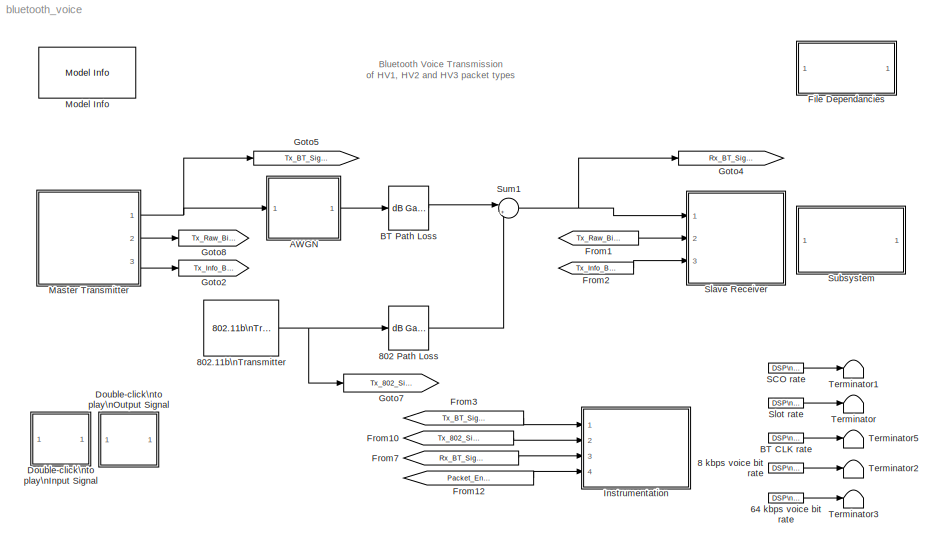
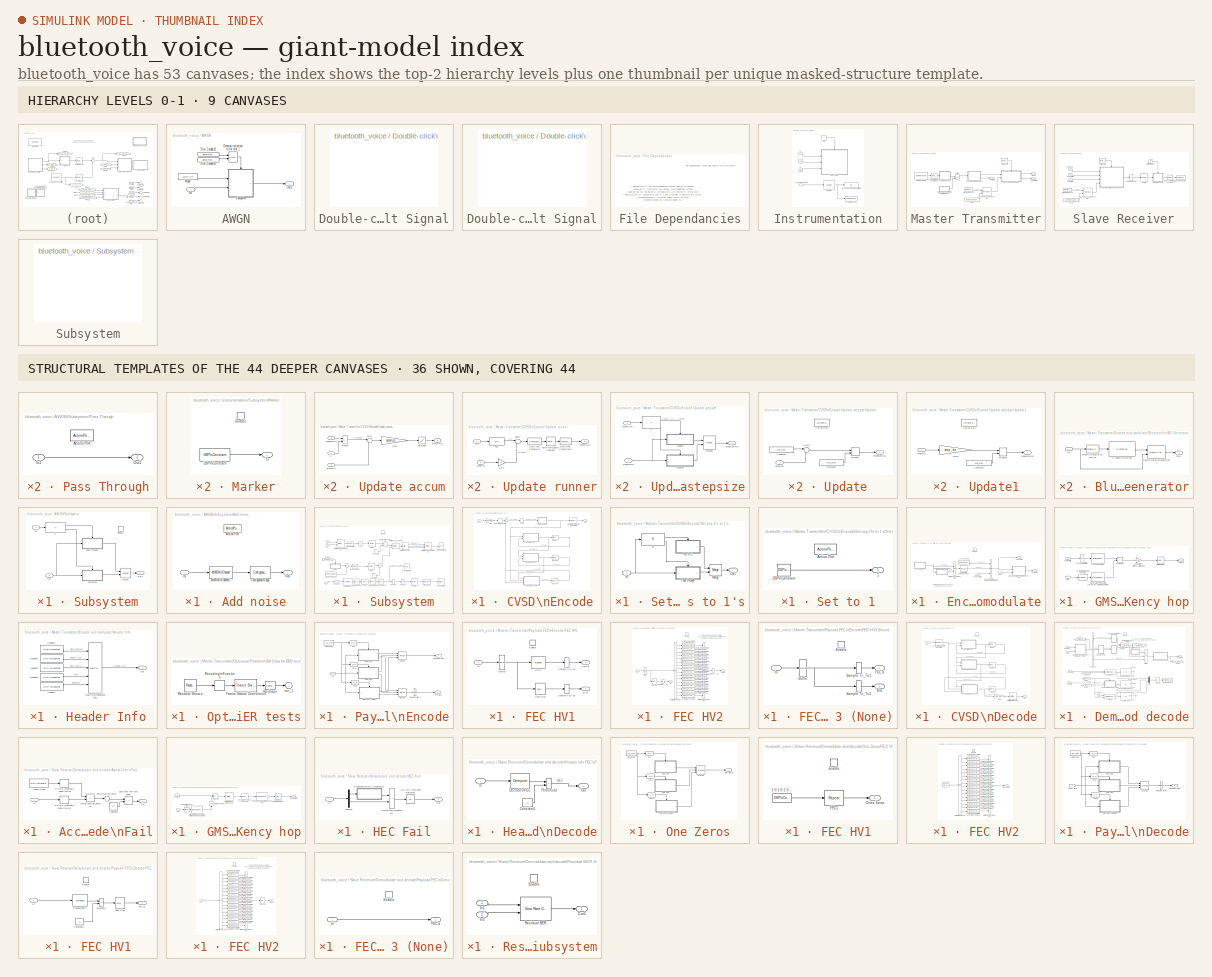
[diagram: thumbnail index - top-2 hierarchy levels (9 canvases) + 36 structural-template representatives of the remaining 44 canvases]
MODEL bluetooth_voice
KIND model
CONFIG AbsTol = auto
CONFIG FixedStep = auto
CONFIG MaxStep = auto
CONFIG MinStep = auto
CONFIG PreLoadFcn = bluetooth_init;
CONFIG RelTol = 1e-3
CONFIG Solver = VariableStepDiscrete
CONFIG SolverMode = Auto
CONFIG StartTime = 0.0
CONFIG StopTime = 2.7
BLOCK [Reference] 64 kbps voice bit rate  REF=dspsrcs3/DSP\nConstant
  FramebasedOutput = off
  InterpretAs1D = off
  Ports = [0, 1]
  SampleMode = Discrete
  SourceBlock = dspsrcs3/DSP\nConstant
  SourceType = DSP Constant
  Ts = 1/64000
  Value = 1
BLOCK [Reference] 8 kbps voice bit rate  REF=dspsrcs3/DSP\nConstant
  FramebasedOutput = off
  InterpretAs1D = off
  Ports = [0, 1]
  SampleMode = Discrete
  SourceBlock = dspsrcs3/DSP\nConstant
  SourceType = DSP Constant
  Ts = 1/8000
  Value = 1
BLOCK [Reference] 802 Path Loss  REF=dspmathops/dB Gain
  Gain = g
  Ports = [1, 1]
  SourceBlock = dspmathops/dB Gain
  SourceType = dB Gain
  dB = -40
  intype = Amplitude
BLOCK [Reference] 802.11b\nTransmitter  REF=bluetooth_lib/802.11b\nTransmitter  (lib defined in mdl_445d02070f23, mdl_ddbc2443d151)
  Freq_Number = 39
  On = on
  Ports = [0, 1]
  SourceBlock = bluetooth_lib/802.11b\nTransmitter
  awgn_seed = awgn_802_seed
  m = 1e-3
  power = 1
  rate = 200
  rate_seed = rate_802_seed
  v = 0
BLOCK [SubSystem] AWGN
  MaskCallbackString = ||||
  MaskDisplay = disp(['AWGN is ' Name])
  MaskEnableString = on,on,on,on,on
  MaskIconFrame = on
  MaskIconOpaque = on
  MaskIconRotate = none
  MaskIconUnits = autoscale
  MaskInitialization = if AWGN_On==1\n   Name='On';\nelse\n  Name='Off';\nend;\n
  MaskPromptString = Turn on AWGN|Es/No|Input Power|Symbol Period|Seed
  MaskStyleString = checkbox,edit,edit,edit,edit
  MaskToolTipString = on,on,on,on,on
  MaskTunableValueString = on,on,on,on,on
  MaskType = Optional channel
  MaskValueString = on|14|.001|1e-6|awgn_channel_seed
  MaskVariableAliases = ,,,,
  MaskVariables = AWGN_On=@1;EsNo=@2;Power=@3;Symbol_Period=@4;seed=@5;
  MaskVisibilityString = on,on,on,on,on
  Ports = [1, 1]
  RTWFcnNameOpts = Auto
  RTWFileNameOpts = Auto
  RTWSystemCode = Auto
  ShowPortLabels = on
  TreatAsAtomicUnit = on
BLOCK [Reference] AWGN/Generate noise\nonly for slot 1  REF=simulink3/Nonlinear/Manual Switch
  Ports = [2, 1]
  SourceBlock = simulink3/Nonlinear/Manual Switch
  SourceType = Manual Switch
  action = 0
  sw = 0
BLOCK [Inport] AWGN/In1
  Interpolate = on
  LatchInput = off
  Port = 1
BLOCK [Constant] AWGN/Mode
  Value = AWGN_On
  VectorParams1D = on
BLOCK [Outport] AWGN/Out1
  InitialOutput = 0
  OutputWhenDisabled = held
  Port = 1
BLOCK [Reference] AWGN/Slot 1 enable2  REF=dspsrcs3/Signal From\nWorkspace
  OutputAfterFinalValue = Cyclic Repetition
  Ports = [0, 1]
  SourceBlock = dspsrcs3/Signal From\nWorkspace
  SourceType = Signal From Workspace
  Ts = 625e-6
  X = [1 0 0 0 0 0]
  nsamps = 1
BLOCK [Reference] AWGN/Slot 1 enable3  REF=dspsrcs3/Signal From\nWorkspace
  OutputAfterFinalValue = Cyclic Repetition
  Ports = [0, 1]
  SourceBlock = dspsrcs3/Signal From\nWorkspace
  SourceType = Signal From Workspace
  Ts = 625e-6
  X = [1 1 1 1 1 1 ]
  nsamps = 1
BLOCK [SubSystem] AWGN/Subsystem
  Ports = [2, 1, 1]
  RTWFcnNameOpts = Auto
  RTWFileNameOpts = Auto
  RTWSystemCode = Auto
  ShowPortLabels = on
  TreatAsAtomicUnit = on
BLOCK [SubSystem] AWGN/Subsystem/Add noise
  Ports = [1, 1, 0, 0, 0, 0, 0, 1]
  RTWFcnNameOpts = Auto
  RTWFileNameOpts = Auto
  RTWSystemCode = Auto
  ShowPortLabels = on
  TreatAsAtomicUnit = on
BLOCK [Reference] AWGN/Subsystem/Add noise/AWGN\nChannel1  REF=commchan2/AWGN\nChannel
  EsNodB = EsNo
  Ports = [1, 1]
  Ps = Power
  SNRdB = 10
  SourceBlock = commchan2/AWGN\nChannel
  SourceType = AWGN Channel
  Tsym = Symbol_Period
  noiseMode = Signal to noise ratio  (Es/No)
  seed = seed
  variance = 1
BLOCK [ActionPort] AWGN/Subsystem/Add noise/Action Port
  ActionType = else
  InitializeStates = held
BLOCK [Reference] AWGN/Subsystem/Add noise/Contiguous\nCopy  REF=dspsigattribs/Contiguous\nCopy
  Ports = [1, 1]
  SourceBlock = dspsigattribs/Contiguous\nCopy
  SourceType = Contiguous Copy
BLOCK [Inport] AWGN/Subsystem/Add noise/In1
  Interpolate = on
  LatchInput = off
  Port = 1
BLOCK [Outport] AWGN/Subsystem/Add noise/Out1
  InitialOutput = []
  OutputWhenDisabled = held
  Port = 1
BLOCK [EnablePort] AWGN/Subsystem/Enable
  Ports = []
  ShowOutputPort = off
  StatesWhenEnabling = held
BLOCK [If] AWGN/Subsystem/If
  IfExpression = u1 == 0
  NumInputs = 1
  Ports = [1, 2]
  ShowElse = on
BLOCK [Inport] AWGN/Subsystem/In1
  Interpolate = on
  LatchInput = off
  Port = 1
BLOCK [Inport] AWGN/Subsystem/In2
  Interpolate = on
  LatchInput = off
  Port = 2
BLOCK [Merge] AWGN/Subsystem/Merge
  AllowUnequalInputPortWidths = off
  InitialOutput = []
  InputPortOffsets = []
  Inputs = 2
  Ports = [2, 1]
BLOCK [Outport] AWGN/Subsystem/Out1
  InitialOutput = []
  OutputWhenDisabled = held
  Port = 1
BLOCK [SubSystem] AWGN/Subsystem/Pass Through
  Ports = [1, 1, 0, 0, 0, 0, 0, 1]
  RTWFcnNameOpts = Auto
  RTWFileNameOpts = Auto
  RTWSystemCode = Auto
  ShowPortLabels = on
  TreatAsAtomicUnit = on
BLOCK [ActionPort] AWGN/Subsystem/Pass Through/Action Port
  ActionType = then
  InitializeStates = held
BLOCK [Inport] AWGN/Subsystem/Pass Through/In1
  Interpolate = on
  LatchInput = off
  Port = 1
BLOCK [Outport] AWGN/Subsystem/Pass Through/Out1
  InitialOutput = []
  OutputWhenDisabled = held
  Port = 1
BLOCK [Reference] BT CLK rate  REF=dspsrcs3/DSP\nConstant
  FramebasedOutput = off
  InterpretAs1D = off
  Ports = [0, 1]
  SampleMode = Discrete
  SourceBlock = dspsrcs3/DSP\nConstant
  SourceType = DSP Constant
  Ts = .5/1600
  Value = 1
BLOCK [Reference] BT Path Loss  REF=dspmathops/dB Gain
  Gain = g
  Ports = [1, 1]
  SourceBlock = dspmathops/dB Gain
  SourceType = dB Gain
  dB = -40
  intype = Amplitude
BLOCK [SubSystem] Double-click\nto play\nInput Signal
  MaskDisplay = patch(x1,y1,[1 1 1]*.5);\npatch(x2,y2);\nplot(x,y); plot(x1,y1)
  MaskIconFrame = on
  MaskIconOpaque = on
  MaskIconRotate = none
  MaskIconUnits = autoscale
  MaskInitialization = [x,y,x1,y1,x2,y2] = dspblkwao2('icon');
  MaskType = Plot histogram
  OpenFcn = [Input_Wave,Input_Fs]=wavread('Input.wav');sound(Input_Wave,Input_Fs);
  Ports = []
  RTWFcnNameOpts = Auto
  RTWFileNameOpts = Auto
  RTWSystemCode = Auto
  ShowPortLabels = on
  TreatAsAtomicUnit = off
BLOCK [SubSystem] Double-click\nto play\nOutput Signal
  MaskDisplay = patch(x1,y1,[1 1 1]*.5);\npatch(x2,y2);\nplot(x,y); plot(x1,y1)
  MaskIconFrame = on
  MaskIconOpaque = on
  MaskIconRotate = none
  MaskIconUnits = autoscale
  MaskInitialization = [x,y,x1,y1,x2,y2] = dspblkwao2('icon');
  MaskType = Plot histogram
  OpenFcn = [Output_Wave,Output_Fs]=wavread('Output.wav');sound(Output_Wave,Output_Fs);
  Ports = []
  RTWFcnNameOpts = Auto
  RTWFileNameOpts = Auto
  RTWSystemCode = Auto
  ShowPortLabels = on
  TreatAsAtomicUnit = off
BLOCK [SubSystem] File Dependancies
  MaskDisplay = disp('File\\nDependancies')
  MaskIconFrame = on
  MaskIconOpaque = on
  MaskIconRotate = none
  MaskIconUnits = autoscale
  Ports = []
  RTWFcnNameOpts = Auto
  RTWFileNameOpts = Auto
  RTWSystemCode = Auto
  ShowPortLabels = on
  TreatAsAtomicUnit = off
BLOCK [From] From1
  CloseFcn = tagdialog Close
  GotoTag = Tx_Raw_Bits
BLOCK [From] From10
  CloseFcn = tagdialog Close
  GotoTag = Tx_802_Signal
BLOCK [From] From12
  CloseFcn = tagdialog Close
  GotoTag = Packet_Envelope_802
BLOCK [From] From2
  CloseFcn = tagdialog Close
  GotoTag = Tx_Info_Bits
BLOCK [From] From3
  CloseFcn = tagdialog Close
  GotoTag = Tx_BT_Signal
BLOCK [From] From7
  CloseFcn = tagdialog Close
  GotoTag = Rx_BT_Signal
BLOCK [Goto] Goto2
  GotoTag = Tx_Info_Bits
  TagVisibility = global
BLOCK [Goto] Goto4
  GotoTag = Rx_BT_Signal
  TagVisibility = global
BLOCK [Goto] Goto5
  GotoTag = Tx_BT_Signal
  TagVisibility = global
BLOCK [Goto] Goto7
  GotoTag = Tx_802_Signal
  TagVisibility = global
BLOCK [Goto] Goto8
  GotoTag = Tx_Raw_Bits
  TagVisibility = global
BLOCK [SubSystem] Instrumentation
  MaskCallbackString = |
  MaskDisplay = disp(string);
  MaskEnableString = on,on
  MaskIconFrame = on
  MaskIconOpaque = on
  MaskIconRotate = none
  MaskIconUnits = autoscale
  MaskInitialization = if strcmp(On,'on')\n  string='Instrumentation\\nis On\\n(Double-Click\\n to Toggle)\\n ';\n  set_param([gcb,'/State'],'Value','1');\nelse\n  string='Instrumentation\\nis Off\\n(Double-Click\\n to Toggle)\\n ';\n  set_param([gcb,'/State'],'Value','0');\nend\n
  MaskPromptString = On|Off
  MaskStyleString = edit,edit
  MaskToolTipString = on,on
  MaskTunableValueString = on,on
  MaskType = Instrumentation
  MaskValueString = on|off
  MaskVariableAliases = ,
  MaskVariables = On=&1;Off=&2;
  MaskVisibilityString = on,on
  OpenFcn = temp=get_param(gcb,'On');set_param(gcb,'On', get_param(gcb,'Off'));set_param(gcb,'Off', temp);
  Ports = [4]
  RTWFcnNameOpts = Auto
  RTWFileNameOpts = Auto
  RTWSystemCode = Auto
  ShowPortLabels = on
  TreatAsAtomicUnit = on
BLOCK [Display] Instrumentation/802.11 Packets \nTransmitted
  Decimation = 1
  Floating = off
  Format = short
  Ports = [1]
  SampleTime = -1
BLOCK [Reference] Instrumentation/Counter  REF=dspswit3/Counter
  CountEvent = Rising edge
  CounterSize = User defined
  Direction = Up
  HitValue = 32
  InitialCount = 0
  MaxCount = 1000
  Output = Count
  Ports = [1, 1]
  ResetInput = off
  SamplesPerFrame = 1
  SourceBlock = dspswit3/Counter
  SourceType = Counter
  Ts = 1
BLOCK [Inport] Instrumentation/Rx
  Interpolate = on
  LatchInput = off
  Port = 3
BLOCK [Constant] Instrumentation/State
  Value = 1
  VectorParams1D = on
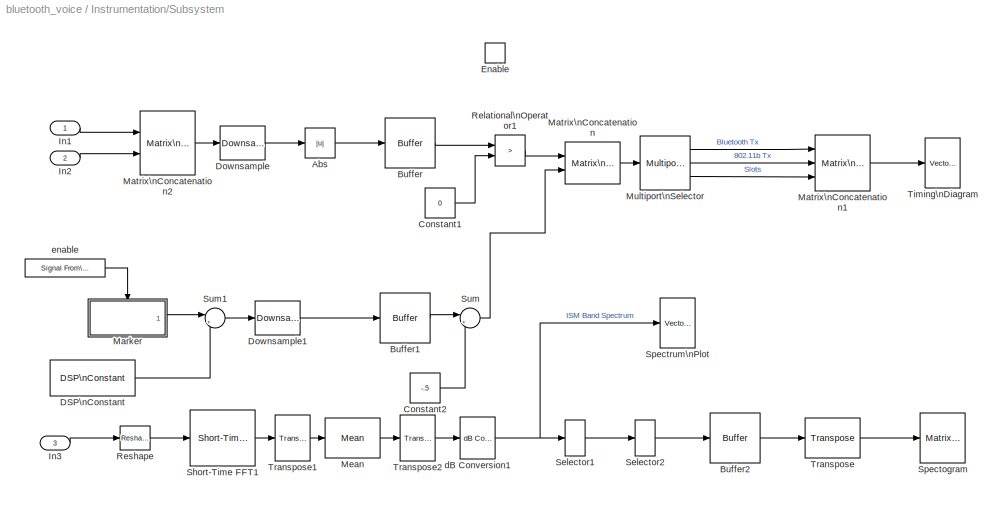
BLOCK [SubSystem] Instrumentation/Subsystem
  Ports = [3, 0, 1]
  RTWFcnNameOpts = Auto
  RTWFileNameOpts = Auto
  RTWSystemCode = Auto
  ShowPortLabels = on
  TreatAsAtomicUnit = on
BLOCK [Abs] Instrumentation/Subsystem/Abs
  SaturateOnIntegerOverflow = on
BLOCK [Reference] Instrumentation/Subsystem/Buffer  REF=dspbuff3/Buffer
  N = 60*500
  Ports = [1, 1]
  SourceBlock = dspbuff3/Buffer
  SourceType = Buffer
  V = 59*500
  ic = 0
BLOCK [Reference] Instrumentation/Subsystem/Buffer1  REF=dspbuff3/Buffer
  N = 60*500
  Ports = [1, 1]
  SourceBlock = dspbuff3/Buffer
  SourceType = Buffer
  V = 59*500
  ic = 0
BLOCK [Reference] Instrumentation/Subsystem/Buffer2  REF=dspbuff3/Buffer
  N = 60
  Ports = [1, 1]
  SourceBlock = dspbuff3/Buffer
  SourceType = Buffer
  V = 59
  ic = -70
BLOCK [Constant] Instrumentation/Subsystem/Constant1
  Value = 0
  VectorParams1D = on
BLOCK [Constant] Instrumentation/Subsystem/Constant2
  Value = -.5
  VectorParams1D = on
BLOCK [Reference] Instrumentation/Subsystem/DSP\nConstant  REF=dspsrcs3/DSP\nConstant
  FramebasedOutput = on
  InterpretAs1D = off
  Ports = [0, 1]
  SampleMode = Discrete
  SourceBlock = dspsrcs3/DSP\nConstant
  SourceType = DSP Constant
  Ts = 625e-6
  Value = .2*[ones(1,36600) zeros(1,62500-36600)]'
BLOCK [Reference] Instrumentation/Subsystem/Downsample  REF=dspsigops/Downsample
  N = 125
  Ports = [1, 1]
  SourceBlock = dspsigops/Downsample
  SourceType = Downsample
  fmode = Maintain input frame rate
  ic = 0
  phase = 0
  smode = Allow multirate
BLOCK [Reference] Instrumentation/Subsystem/Downsample1  REF=dspsigops/Downsample
  N = 125
  Ports = [1, 1]
  SourceBlock = dspsigops/Downsample
  SourceType = Downsample
  fmode = Maintain input frame rate
  ic = 0
  phase = 0
  smode = Allow multirate
BLOCK [EnablePort] Instrumentation/Subsystem/Enable
  Ports = []
  ShowOutputPort = off
  StatesWhenEnabling = held
BLOCK [Inport] Instrumentation/Subsystem/In1
  Interpolate = on
  LatchInput = off
  Port = 1
BLOCK [Inport] Instrumentation/Subsystem/In2
  Interpolate = on
  LatchInput = off
  Port = 2
BLOCK [Inport] Instrumentation/Subsystem/In3
  Interpolate = on
  LatchInput = off
  Port = 3
BLOCK [SubSystem] Instrumentation/Subsystem/Marker
  Ports = [0, 1, 1]
  RTWFcnNameOpts = Auto
  RTWFileNameOpts = Auto
  RTWSystemCode = Auto
  ShowPortLabels = on
  TreatAsAtomicUnit = on
BLOCK [Reference] Instrumentation/Subsystem/Marker/DSP\nConstant  REF=dspsrcs3/DSP\nConstant
  FramebasedOutput = on
  InterpretAs1D = off
  Ports = [0, 1]
  SampleMode = Discrete
  SourceBlock = dspsrcs3/DSP\nConstant
  SourceType = DSP Constant
  Ts = 625e-6
  Value = .1*[ones(1,36600) zeros(1,62500-36600)]'
BLOCK [EnablePort] Instrumentation/Subsystem/Marker/Enable
  Ports = []
  ShowOutputPort = off
  StatesWhenEnabling = held
BLOCK [Outport] Instrumentation/Subsystem/Marker/Tx
  InitialOutput = 0
  OutputWhenDisabled = reset
  Port = 1
BLOCK [Reference] Instrumentation/Subsystem/Matrix\nConcatenation  REF=simulink3/Signals\n& Systems/Matrix\nConcatenation
  Ports = [2, 1]
  SourceBlock = simulink3/Signals\n& Systems/Matrix\nConcatenation
  SourceType = Matrix Concatenation
  catMethod = Horizontal
  numInports = 2
BLOCK [Reference] Instrumentation/Subsystem/Matrix\nConcatenation1  REF=simulink3/Signals\n& Systems/Matrix\nConcatenation
  Ports = [3, 1]
  SourceBlock = simulink3/Signals\n& Systems/Matrix\nConcatenation
  SourceType = Matrix Concatenation
  catMethod = Horizontal
  numInports = 3
BLOCK [Reference] Instrumentation/Subsystem/Matrix\nConcatenation2  REF=simulink3/Signals\n& Systems/Matrix\nConcatenation
  Ports = [2, 1]
  SourceBlock = simulink3/Signals\n& Systems/Matrix\nConcatenation
  SourceType = Matrix Concatenation
  catMethod = Horizontal
  numInports = 2
BLOCK [Reference] Instrumentation/Subsystem/Mean  REF=dspstat3/Mean
  Ports = [1, 1]
  SourceBlock = dspstat3/Mean
  SourceType = Mean
  reset_popup = None
  run = off
BLOCK [Reference] Instrumentation/Subsystem/Multiport\nSelector  REF=dspindex/Multiport\nSelector
  Ports = [1, 3]
  SourceBlock = dspindex/Multiport\nSelector
  SourceType = Multiport Selector
  idxCellArray = { 1,2,3}
  idxErrMode = Clip Index
  rowsOrCols = Columns
BLOCK [RelationalOperator] Instrumentation/Subsystem/Relational\nOperator1
  Operator = >
BLOCK [Reference] Instrumentation/Subsystem/Reshape  REF=simulink3/Signals\n& Systems/Reshape
  OutputDimensionality = Customize
  OutputDimensions = [500,125]
  Ports = [1, 1]
  SourceBlock = simulink3/Signals\n& Systems/Reshape
  SourceType = Reshape
BLOCK [Selector] Instrumentation/Subsystem/Selector1
  ColumnSrc = Internal
  Columns = 1
  ElementSrc = Internal
  Elements = [257:512 1:256]
  InputPortWidth = 512
  InputType = Vector
  Ports = [1, 1]
  RowSrc = Internal
  Rows = 1
BLOCK [Selector] Instrumentation/Subsystem/Selector2
  ColumnSrc = Internal
  Columns = 1
  ElementSrc = Internal
  Elements = 7:506
  InputPortWidth = 512
  InputType = Vector
  Ports = [1, 1]
  RowSrc = Internal
  Rows = 1
BLOCK [Reference] Instrumentation/Subsystem/Short-Time FFT1  REF=dspspect3/Short-Time FFT
  Ports = [1, 1]
  Rs = 50
  SourceBlock = dspspect3/Short-Time FFT
  SourceType = Short-Time FFT
  beta = 5
  fftsize = 512
  inheritFFT = off
  navg = 1
  winsamp = Periodic
  wintype = Hanning
BLOCK [Reference] Instrumentation/Subsystem/Spectogram  REF=dspsnks3/Matrix\nViewer
  AxisColorbar = on
  AxisOrigin = Lower left corner
  AxisParams = on
  AxisZoom = on
  CMapStr = jet(256)
  FigPos = [65 269 688 127]
  ImageParams = on
  Ports = [1]
  SourceBlock = dspsnks3/Matrix\nViewer
  SourceType = Matrix Viewer
  XLabel = Time Index
  YLabel = Frequency Index
  YMax = -30
  YMin = -60
  ZLabel = dB Magnitude
BLOCK [Reference] Instrumentation/Subsystem/Spectrum\nPlot  REF=dspsnks3/Vector\nScope
  AxisGrid = on
  AxisLegend = on
  AxisProperties = off
  AxisZoom = off
  DisplayProperties = off
  Domain = Frequency
  FigPos = [2 605 774 120]
  FrameNumber = on
  HorizSpan = 1
  InheritXIncr = off
  LineProperties = off
  LineStyles = --
  Memory = off
  OpenScopeAtSimStart = on
  OpenScopeImmediately = off
  Ports = [1]
  ScopeProperties = on
  SourceBlock = dspsnks3/Vector\nScope
  SourceType = Vector Scope
  XIncr = 1e-8
  XLabel = Time
  XRange = [-Fs/2...Fs/2]
  XUnits = Hertz
  YLabel = Magnitude, dB
  YMax = -25.7732682054945
  YMin = -80.906815143504
  YUnits = Magnitude
BLOCK [Sum] Instrumentation/Subsystem/Sum
  IconShape = round
  Inputs = |++
  Ports = [2, 1]
  SaturateOnIntegerOverflow = on
BLOCK [Sum] Instrumentation/Subsystem/Sum1
  IconShape = round
  Inputs = |++
  Ports = [2, 1]
  SaturateOnIntegerOverflow = on
BLOCK [Reference] Instrumentation/Subsystem/Timing\nDiagram  REF=dspsnks3/Vector\nScope
  AxisGrid = on
  AxisLegend = on
  AxisProperties = off
  AxisZoom = off
  DisplayProperties = off
  Domain = User-defined
  FigPos = [8 427 776 129]
  FrameNumber = on
  HorizSpan = 1
  InheritXIncr = off
  LineColors = [0 1 0]|[1 0 0]
  LineProperties = off
  LineStyles = -|-
  Memory = off
  OpenScopeAtSimStart = on
  OpenScopeImmediately = off
  Ports = [1]
  ScopeProperties = on
  SourceBlock = dspsnks3/Vector\nScope
  SourceType = Vector Scope
  XIncr = 125*1e-8
  XLabel = Time (s)
  XRange = [0...Fs/2]
  XUnits = Hertz
  YLabel = Amplitude
  YMax = 1.05
  YMin = -0.525
  YUnits = dB
BLOCK [Reference] Instrumentation/Subsystem/Transpose  REF=dspmtrx3/Transpose
  Hermitian = off
  Ports = [1, 1]
  SourceBlock = dspmtrx3/Transpose
  SourceType = Transpose
BLOCK [Reference] Instrumentation/Subsystem/Transpose1  REF=dspmtrx3/Transpose
  Hermitian = off
  Ports = [1, 1]
  SourceBlock = dspmtrx3/Transpose
  SourceType = Transpose
BLOCK [Reference] Instrumentation/Subsystem/Transpose2  REF=dspmtrx3/Transpose
  Hermitian = off
  Ports = [1, 1]
  SourceBlock = dspmtrx3/Transpose
  SourceType = Transpose
BLOCK [Reference] Instrumentation/Subsystem/dB Conversion1  REF=dspmathops/dB Conversion
  Ports = [1, 1]
  R = 1
  SourceBlock = dspmathops/dB Conversion
  SourceType = dB Conversion
  dBtype = dB
  fuzz = on
  intype = Power
BLOCK [Reference] Instrumentation/Subsystem/enable  REF=dspsrcs3/Signal From\nWorkspace
  OutputAfterFinalValue = Cyclic Repetition
  Ports = [0, 1]
  SourceBlock = dspsrcs3/Signal From\nWorkspace
  SourceType = Signal From Workspace
  Ts = 625e-6
  X = [1 0 0 0 0 0]
  nsamps = 1
BLOCK [ToWorkspace] Instrumentation/To Workspace
  Decimation = 1
  MaxDataPoints = 1
  SampleTime = -1
  SaveFormat = Array
  VariableName = Num_802_packets
BLOCK [Inport] Instrumentation/Tx
  Interpolate = on
  LatchInput = off
  Port = 1
BLOCK [Inport] Instrumentation/Tx_802
  Interpolate = on
  LatchInput = off
  Port = 2
BLOCK [Inport] Instrumentation/Tx_802 Envelope
  Interpolate = on
  LatchInput = off
  Port = 4
BLOCK [SubSystem] Master Transmitter
  MaskCallbackString = |
  MaskDisplay = plot(0,0,100,100,[30,60,60,55,55,30,30],[10,10,90,90,70,70,10],[35,35,55,55,35],[64,45,45,64,64])
  MaskEnableString = on,on
  MaskIconFrame = on
  MaskIconOpaque = on
  MaskIconRotate = none
  MaskIconUnits = autoscale
  MaskInitialization = device_init
  MaskPromptString = HV Packet Type|Initial Slot Pair for HV2 or HV3
  MaskStyleString = popup(HV1|HV2|HV3),popup(1&2|3&4|5&6)
  MaskToolTipString = on,on
  MaskTunableValueString = on,on
  MaskType = Master Transmitter
  MaskValueString = HV3|1&2
  MaskVariableAliases = ,
  MaskVariables = HV_Type=@1;Slot_Pair=@2;
  MaskVisibilityString = on,on
  Ports = [0, 3]
  RTWFcnNameOpts = Auto
  RTWFileNameOpts = Auto
  RTWSystemCode = Auto
  ShowPortLabels = on
  TreatAsAtomicUnit = off
BLOCK [Reference] Master Transmitter/Bluetooth\nClock  REF=bluetooth_lib/Bluetooth\nClock  (lib defined in mdl_445d02070f23, mdl_ddbc2443d151)
  Ports = [0, 1]
  SourceBlock = bluetooth_lib/Bluetooth\nClock
  SourceType = Bluetooth Clock
  Ts = (1/1600)/2
BLOCK [SubSystem] Master Transmitter/CVSD\nEncode
  MaskCallbackString = |||
  MaskDescription = Encode a 64 K samples per sec speech signal into a 64Kbps bit stream.
  MaskDisplay = disp('CVSD\\nEncode')
  MaskEnableString = on,on,on,on
  MaskIconFrame = on
  MaskIconOpaque = on
  MaskIconRotate = none
  MaskIconUnits = autoscale
  MaskInitialization = pos_accum_max = 2^15 - 1;\nneg_accum_max = -2^15 + 1;
  MaskPromptString = Minimum Step Size|Maximum Step Size|Accumulator Decay|Step Decay
  MaskStyleString = edit,edit,edit,edit
  MaskToolTipString = on,on,on,on
  MaskTunableValueString = on,on,on,on
  MaskType = CVSD Encoder
  MaskValueString = 10|1280|1-1/32|1-1/1024
  MaskVariableAliases = ,,,
  MaskVariables = min_step=@1;max_step=@2;accum_decay=@3;step_decay=@4;
  MaskVisibilityString = on,on,on,on
  Ports = [1, 1]
  RTWFcnNameOpts = Auto
  RTWFileNameOpts = Auto
  RTWSystemCode = Auto
  ShowPortLabels = on
  TreatAsAtomicUnit = off
BLOCK [Reference] Master Transmitter/CVSD\nEncode/Bipolar to\nUnipolar\nConverter1  REF=commutil2/Bipolar to\nUnipolar\nConverter
  M = 2
  Ports = [1, 1]
  SourceBlock = commutil2/Bipolar to\nUnipolar\nConverter
  SourceType = Bipolar to Unipolar Converter
  polarity = Negative
BLOCK [Gain] Master Transmitter/CVSD\nEncode/Gain
  Gain = 32768
  Multiplication = Element-wise(K.*u)
  SaturateOnIntegerOverflow = on
BLOCK [Inport] Master Transmitter/CVSD\nEncode/In1
  Interpolate = on
  LatchInput = off
  Port = 1
BLOCK [Outport] Master Transmitter/CVSD\nEncode/Out1
  InitialOutput = []
  OutputWhenDisabled = held
  Port = 1
BLOCK [Rounding] Master Transmitter/CVSD\nEncode/Rounding\nFunction
  Operator = round
BLOCK [SubSystem] Master Transmitter/CVSD\nEncode/Set any 0's to 1's
  Ports = [1, 1]
  RTWFcnNameOpts = Auto
  RTWFileNameOpts = Auto
  RTWSystemCode = Auto
  ShowPortLabels = on
  TreatAsAtomicUnit = off
BLOCK [If] Master Transmitter/CVSD\nEncode/Set any 0's to 1's/If
  IfExpression = u1 ==0
  NumInputs = 1
  Ports = [1, 2]
  ShowElse = on
BLOCK [Inport] Master Transmitter/CVSD\nEncode/Set any 0's to 1's/In1
  Interpolate = on
  LatchInput = off
  Port = 1
BLOCK [Merge] Master Transmitter/CVSD\nEncode/Set any 0's to 1's/Merge
  AllowUnequalInputPortWidths = off
  InitialOutput = []
  InputPortOffsets = []
  Inputs = 2
  Ports = [2, 1]
BLOCK [Outport] Master Transmitter/CVSD\nEncode/Set any 0's to 1's/Out1
  InitialOutput = []
  OutputWhenDisabled = held
  Port = 1
BLOCK [SubSystem] Master Transmitter/CVSD\nEncode/Set any 0's to 1's/Pass through
  Ports = [1, 1, 0, 0, 0, 0, 0, 1]
  RTWFcnNameOpts = Auto
  RTWFileNameOpts = Auto
  RTWSystemCode = Auto
  ShowPortLabels = on
  TreatAsAtomicUnit = on
BLOCK [ActionPort] Master Transmitter/CVSD\nEncode/Set any 0's to 1's/Pass through/Action Port
  ActionType = else
  InitializeStates = held
BLOCK [Inport] Master Transmitter/CVSD\nEncode/Set any 0's to 1's/Pass through/In1
  Interpolate = on
  LatchInput = off
  Port = 1
BLOCK [Outport] Master Transmitter/CVSD\nEncode/Set any 0's to 1's/Pass through/Out1=In1
  InitialOutput = []
  OutputWhenDisabled = held
  Port = 1
BLOCK [SubSystem] Master Transmitter/CVSD\nEncode/Set any 0's to 1's/Set to 1
  Ports = [0, 1, 0, 0, 0, 0, 0, 1]
  RTWFcnNameOpts = Auto
  RTWFileNameOpts = Auto
  RTWSystemCode = Auto
  ShowPortLabels = on
  TreatAsAtomicUnit = on
BLOCK [Outport] Master Transmitter/CVSD\nEncode/Set any 0's to 1's/Set to 1/1
  InitialOutput = []
  OutputWhenDisabled = held
  Port = 1
BLOCK [ActionPort] Master Transmitter/CVSD\nEncode/Set any 0's to 1's/Set to 1/Action Port
  ActionType = then
  InitializeStates = held
BLOCK [Reference] Master Transmitter/CVSD\nEncode/Set any 0's to 1's/Set to 1/DSP\nConstant  REF=dspsrcs3/DSP\nConstant
  FramebasedOutput = off
  InterpretAs1D = on
  Ports = [0, 1]
  SampleMode = Discrete
  SourceBlock = dspsrcs3/DSP\nConstant
  SourceType = DSP Constant
  Ts = 1/64000
  Value = 1
BLOCK [Signum] Master Transmitter/CVSD\nEncode/Sign
BLOCK [Sum] Master Transmitter/CVSD\nEncode/Sum
  IconShape = round
  Inputs = |+-
  Ports = [2, 1]
  SaturateOnIntegerOverflow = on
BLOCK [SubSystem] Master Transmitter/CVSD\nEncode/Update accum
  Ports = [3, 1]
  RTWFcnNameOpts = Auto
  RTWFileNameOpts = Auto
  RTWSystemCode = Auto
  ShowPortLabels = on
  TreatAsAtomicUnit = off
BLOCK [Gain] Master Transmitter/CVSD\nEncode/Update accum/Gain
  Gain = accum_decay
  Multiplication = Element-wise(K.*u)
  SaturateOnIntegerOverflow = on
BLOCK [Product] Master Transmitter/CVSD\nEncode/Update accum/Product
  Inputs = 2
  Multiplication = Element-wise(.*)
  Ports = [2, 1]
  SaturateOnIntegerOverflow = on
BLOCK [Saturate] Master Transmitter/CVSD\nEncode/Update accum/Saturation
  LinearizeAsGain = on
  LowerLimit = neg_accum_max
  UpperLimit = pos_accum_max
BLOCK [Sum] Master Transmitter/CVSD\nEncode/Update accum/Sum1
  IconShape = round
  Inputs = |++
  Ports = [2, 1]
  SaturateOnIntegerOverflow = on
BLOCK [Inport] Master Transmitter/CVSD\nEncode/Update accum/accum(n)
  Interpolate = on
  LatchInput = off
  Port = 3
BLOCK [Outport] Master Transmitter/CVSD\nEncode/Update accum/accum(n+1)
  InitialOutput = []
  OutputWhenDisabled = held
  Port = 1
BLOCK [Inport] Master Transmitter/CVSD\nEncode/Update accum/stepsize(n+1)
  Interpolate = on
  LatchInput = off
  Port = 1
BLOCK [Inport] Master Transmitter/CVSD\nEncode/Update accum/y
  Interpolate = on
  LatchInput = off
  Port = 2
BLOCK [SubSystem] Master Transmitter/CVSD\nEncode/Update runner
  Ports = [2, 1]
  RTWFcnNameOpts = Auto
  RTWFileNameOpts = Auto
  RTWSystemCode = Auto
  ShowPortLabels = on
  TreatAsAtomicUnit = off
BLOCK [Reference] Master Transmitter/CVSD\nEncode/Update runner/Bitwise\nLogical Operator  REF=simulink3/Math/Bitwise\nLogical Operator
  Operand2 = 15
  Operator = AND
  Ports = [1, 1]
  SourceBlock = simulink3/Math/Bitwise\nLogical Operator
  SourceType = BitwiseOperator
BLOCK [DataTypeConversion] Master Transmitter/CVSD\nEncode/Update runner/Data Type Conversion
  DataType = uint16
  SaturateOnIntegerOverflow = on
BLOCK [DataTypeConversion] Master Transmitter/CVSD\nEncode/Update runner/Data Type Conversion1
  DataType = double
  SaturateOnIntegerOverflow = on
BLOCK [Fcn] Master Transmitter/CVSD\nEncode/Update runner/Fcn
  Expr = u==1
BLOCK [Gain] Master Transmitter/CVSD\nEncode/Update runner/Gain
  Gain = 2
  Multiplication = Element-wise(K.*u)
  SaturateOnIntegerOverflow = on
BLOCK [Sum] Master Transmitter/CVSD\nEncode/Update runner/Sum1
  IconShape = round
  Inputs = |++
  Ports = [2, 1]
  SaturateOnIntegerOverflow = on
BLOCK [Inport] Master Transmitter/CVSD\nEncode/Update runner/runner(n)
  Interpolate = on
  LatchInput = off
  Port = 2
BLOCK [Outport] Master Transmitter/CVSD\nEncode/Update runner/runner(n+1)
  InitialOutput = []
  OutputWhenDisabled = held
  Port = 1
BLOCK [Inport] Master Transmitter/CVSD\nEncode/Update runner/y
  Interpolate = on
  LatchInput = off
  Port = 1
BLOCK [SubSystem] Master Transmitter/CVSD\nEncode/Update stepsize
  Ports = [2, 1]
  RTWFcnNameOpts = Auto
  RTWFileNameOpts = Auto
  RTWSystemCode = Auto
  ShowPortLabels = on
  TreatAsAtomicUnit = off
BLOCK [If] Master Transmitter/CVSD\nEncode/Update stepsize/If
  IfExpression = (u1 == 0) | (u1== 15)
  NumInputs = 1
  Ports = [1, 2]
  ShowElse = on
BLOCK [Merge] Master Transmitter/CVSD\nEncode/Update stepsize/Merge1
  AllowUnequalInputPortWidths = off
  InitialOutput = []
  InputPortOffsets = []
  Inputs = 2
  Ports = [2, 1]
BLOCK [SubSystem] Master Transmitter/CVSD\nEncode/Update stepsize/Update
  Ports = [1, 1, 0, 0, 0, 0, 0, 1]
  RTWFcnNameOpts = Auto
  RTWFileNameOpts = Auto
  RTWSystemCode = Auto
  ShowPortLabels = on
  TreatAsAtomicUnit = on
BLOCK [ActionPort] Master Transmitter/CVSD\nEncode/Update stepsize/Update/Action Port
  ActionType = then
  InitializeStates = held
BLOCK [Constant] Master Transmitter/CVSD\nEncode/Update stepsize/Update/Constant
  Value = min_step
  VectorParams1D = on
BLOCK [Constant] Master Transmitter/CVSD\nEncode/Update stepsize/Update/Constant1
  Value = max_step
  VectorParams1D = on
BLOCK [MinMax] Master Transmitter/CVSD\nEncode/Update stepsize/Update/MinMax
  Function = min
  Inputs = 2
  Ports = [2, 1]
BLOCK [Sum] Master Transmitter/CVSD\nEncode/Update stepsize/Update/Sum2
  IconShape = round
  Inputs = |++
  Ports = [2, 1]
  SaturateOnIntegerOverflow = on
BLOCK [Inport] Master Transmitter/CVSD\nEncode/Update stepsize/Update/stepsize
  Interpolate = on
  LatchInput = off
  Port = 1
BLOCK [Outport] Master Transmitter/CVSD\nEncode/Update stepsize/Update/stepsize(n+1)
  InitialOutput = []
  OutputWhenDisabled = held
  Port = 1
BLOCK [SubSystem] Master Transmitter/CVSD\nEncode/Update stepsize/Update1
  Ports = [1, 1, 0, 0, 0, 0, 0, 1]
  RTWFcnNameOpts = Auto
  RTWFileNameOpts = Auto
  RTWSystemCode = Auto
  ShowPortLabels = on
  TreatAsAtomicUnit = on
BLOCK [ActionPort] Master Transmitter/CVSD\nEncode/Update stepsize/Update1/Action Port
  ActionType = else
  InitializeStates = held
BLOCK [Constant] Master Transmitter/CVSD\nEncode/Update stepsize/Update1/Constant1
  Value = min_step
  VectorParams1D = on
BLOCK [Gain] Master Transmitter/CVSD\nEncode/Update stepsize/Update1/Gain
  Gain = step_decay
  Multiplication = Element-wise(K.*u)
  SaturateOnIntegerOverflow = on
BLOCK [MinMax] Master Transmitter/CVSD\nEncode/Update stepsize/Update1/MinMax
  Function = max
  Inputs = 2
  Ports = [2, 1]
BLOCK [Inport] Master Transmitter/CVSD\nEncode/Update stepsize/Update1/stepsize
  Interpolate = on
  LatchInput = off
  Port = 1
BLOCK [Outport] Master Transmitter/CVSD\nEncode/Update stepsize/Update1/stepsize(n+1)
  InitialOutput = []
  OutputWhenDisabled = held
  Port = 1
BLOCK [Inport] Master Transmitter/CVSD\nEncode/Update stepsize/runner(n+1)
  Interpolate = on
  LatchInput = off
  Port = 1
BLOCK [Inport] Master Transmitter/CVSD\nEncode/Update stepsize/stepsize(n)
  Interpolate = on
  LatchInput = off
  Port = 2
BLOCK [Outport] Master Transmitter/CVSD\nEncode/Update stepsize/stepsize(n+1)
  InitialOutput = []
  OutputWhenDisabled = held
  Port = 1
BLOCK [Reference] Master Transmitter/CVSD\nEncode/accum  REF=dspsigops/Integer Delay
  Ports = [1, 1]
  SourceBlock = dspsigops/Integer Delay
  SourceType = Integer Delay
  delay = 1
  ic = 0
BLOCK [Reference] Master Transmitter/CVSD\nEncode/runner  REF=dspsigops/Integer Delay
  Ports = [1, 1]
  SourceBlock = dspsigops/Integer Delay
  SourceType = Integer Delay
  delay = 1
  ic = 10
BLOCK [Reference] Master Transmitter/CVSD\nEncode/stepsize  REF=dspsigops/Integer Delay
  Ports = [1, 1]
  SourceBlock = dspsigops/Integer Delay
  SourceType = Integer Delay
  delay = 1
  ic = min_step
BLOCK [SubSystem] Master Transmitter/Encode and modulate
  Ports = [2, 2, 1]
  RTWFcnNameOpts = Auto
  RTWFileNameOpts = Auto
  RTWSystemCode = Auto
  ShowPortLabels = on
  TreatAsAtomicUnit = on
BLOCK [Reference] Master Transmitter/Encode and modulate/Access Code  REF=dspsrcs3/DSP\nConstant
  FramebasedOutput = on
  InterpretAs1D = off
  Ports = [0, 1]
  SampleMode = Discrete
  SourceBlock = dspsrcs3/DSP\nConstant
  SourceType = DSP Constant
  Ts = Slot_Ts
  Value = Access_Code
BLOCK [SubSystem] Master Transmitter/Encode and modulate/Bluetooth\nHEC Generator
  MaskDescription = Compute the Bluetooth Header Error Check (HEC) as specified in section 5.4 of the Bluetooth specification.  The Upper Address Part (UAP) is used to initialize the state of the encoder.  The UAP is an 8-bit vector, LSB first.
  MaskDisplay = disp('Bluetooth\\nHEC Generator')
  MaskEnableString = on
  MaskIconFrame = on
  MaskIconOpaque = on
  MaskIconRotate = none
  MaskIconUnits = autoscale
  MaskPromptString = UAP:
  MaskStyleString = edit
  MaskToolTipString = on
  MaskTunableValueString = on
  MaskType = Bluetooth HEC Generator
  MaskValueString = [1 0 0 1 0 1 1 0]
  MaskVariables = uap=@1;
  MaskVisibilityString = on
  Ports = [1, 1]
  RTWFcnNameOpts = Auto
  RTWFileNameOpts = Auto
  RTWSystemCode = Auto
  ShowPortLabels = on
  TreatAsAtomicUnit = off
BLOCK [Reference] Master Transmitter/Encode and modulate/Bluetooth\nHEC Generator/Frame Status\nConversion  REF=dspsigattribs/Frame Status\nConversion
  Ports = [1, 1]
  SourceBlock = dspsigattribs/Frame Status\nConversion
  SourceType = Frame Status Conversion
  growRefPort = off
  outframe = Sample-based
BLOCK [Reference] Master Transmitter/Encode and modulate/Bluetooth\nHEC Generator/Frame Status\nConversion1  REF=dspsigattribs/Frame Status\nConversion
  Ports = [2, 1]
  SourceBlock = dspsigattribs/Frame Status\nConversion
  SourceType = Frame Status Conversion
  growRefPort = on
  outframe = Sample-based
BLOCK [Inport] Master Transmitter/Encode and modulate/Bluetooth\nHEC Generator/In1
  Interpolate = on
  LatchInput = off
  Port = 1
BLOCK [Outport] Master Transmitter/Encode and modulate/Bluetooth\nHEC Generator/Out1
  InitialOutput = []
  OutputWhenDisabled = held
  Port = 1
BLOCK [S-Function] Master Transmitter/Encode and modulate/Bluetooth\nHEC Generator/S-Function Builder
  AncestorBlock = simulink3/Functions\n& Tables/Basic S-Function\nBuilder
  CopyFcn = set_param(gcb,'LinkStatus','none')
  FunctionName = scomdemohecgen
  MaskDisplay = plot(val(:,1),val(:,2))\ndisp(sys)
  MaskIconFrame = on
  MaskIconOpaque = on
  MaskIconRotate = none
  MaskIconUnits = normalized
  MaskInitialization = val = [[.9  0.75 0.75 1 1 .9 .9 1]',[1 1 0.75 0.75 .9 .9 1 .9]'];\nsys = get_param(gcb,'FunctionName');
  OpenFcn = sfunctionwizard(gcbh)
  Parameters = uap
  PortCounts = []
  Ports = [1, 1]
  SFunctionModules = scomdemohecgen_wrapper
BLOCK [Reference] Master Transmitter/Encode and modulate/Concatenate\nAccess, Header\nand Payload  REF=simulink3/Signals\n& Systems/Matrix\nConcatenation
  Ports = [3, 1]
  SourceBlock = simulink3/Signals\n& Systems/Matrix\nConcatenation
  SourceType = Matrix Concatenation
  catMethod = Vertical
  numInports = 3
BLOCK [EnablePort] Master Transmitter/Encode and modulate/Enable
  Ports = []
  ShowOutputPort = off
  StatesWhenEnabling = held
BLOCK [SubSystem] Master Transmitter/Encode and modulate/GMSK Modulate\nand frequency hop
  Ports = [2, 1]
  RTWFcnNameOpts = Auto
  RTWFileNameOpts = Auto
  RTWSystemCode = Auto
  ShowPortLabels = on
  TreatAsAtomicUnit = off
BLOCK [Reference] Master Transmitter/Encode and modulate/GMSK Modulate\nand frequency hop/Frame Status\nConversion  REF=dspsigattribs/Frame Status\nConversion
  Ports = [1, 1]
  SourceBlock = dspsigattribs/Frame Status\nConversion
  SourceType = Frame Status Conversion
  growRefPort = off
  outframe = Frame-based
BLOCK [Reference] Master Transmitter/Encode and modulate/GMSK Modulate\nand frequency hop/GFSK\nModulation  REF=commdigbbndcpm2/CPM\nModulator\nBaseband
  BT = 0.5
  Mnum = 2
  Ports = [1, 1]
  SourceBlock = commdigbbndcpm2/CPM\nModulator\nBaseband
  SourceType = CPM Modulator Baseband
  inputType = Bit
  mappingType = Binary
  modIdx = 0.32
  phaseOffset = 0
  preHistory = 1
  pulseLength = 1
  pulseShape = Gaussian
  rollOff = 0.2
  samplesPerSymbol = 100
BLOCK [Reference] Master Transmitter/Encode and modulate/GMSK Modulate\nand frequency hop/Generate\n79 possible carriers\n-39MHz to 39MHz\n  REF=commdigbbndfm2/M-FSK\nModulator\nBaseband
  Enc = Binary
  InType = Integer
  M = 79
  Ports = [1, 1]
  SourceBlock = commdigbbndfm2/M-FSK\nModulator\nBaseband
  SourceType = M-FSK Modulator Baseband
  freqSep = 1e6
  numSamp = 6.25e4
  phaseType = Continuous
BLOCK [Inport] Master Transmitter/Encode and modulate/GMSK Modulate\nand frequency hop/Hop
  Interpolate = on
  LatchInput = off
  Port = 2
BLOCK [Gain] Master Transmitter/Encode and modulate/GMSK Modulate\nand frequency hop/Mask to turn off\ntransmitter after\ndata finished
  Gain = [ones(36600,1);zeros(62500-36600,1)]
  Multiplication = Element-wise(K.*u)
  SaturateOnIntegerOverflow = on
BLOCK [Product] Master Transmitter/Encode and modulate/GMSK Modulate\nand frequency hop/Product3
  Inputs = 2
  Multiplication = Element-wise(.*)
  Ports = [2, 1]
  SaturateOnIntegerOverflow = on
BLOCK [Reference] Master Transmitter/Encode and modulate/GMSK Modulate\nand frequency hop/Set to\n0dBm  REF=dspmathops/dB Gain
  Gain = g
  Ports = [1, 1]
  SourceBlock = dspmathops/dB Gain
  SourceType = dB Gain
  dB = -30
  intype = Amplitude
BLOCK [Inport] Master Transmitter/Encode and modulate/GMSK Modulate\nand frequency hop/Tx Raw Bits
  Interpolate = on
  LatchInput = off
  Port = 1
BLOCK [Outport] Master Transmitter/Encode and modulate/GMSK Modulate\nand frequency hop/Tx SIgnal
  InitialOutput = []
  OutputWhenDisabled = held
  Port = 1
BLOCK [Reference] Master Transmitter/Encode and modulate/GMSK Modulate\nand frequency hop/Zero Pad\nto fill slot  REF=dspsigops/Zero Pad
  Ports = [1, 1]
  SourceBlock = dspsigops/Zero Pad
  SourceType = Zero Pad
  numOutCols = 1
  numOutRows = 625
  trunc_flag = None
  zpadAlong = Columns
BLOCK [SubSystem] Master Transmitter/Encode and modulate/Header Info
  MaskDisplay = disp('Header Info')
  MaskIconFrame = on
  MaskIconOpaque = on
  MaskIconRotate = none
  MaskIconUnits = autoscale
  Ports = [0, 1]
  RTWFcnNameOpts = Auto
  RTWFileNameOpts = Auto
  RTWSystemCode = Auto
  ShowPortLabels = on
  TreatAsAtomicUnit = off
BLOCK [Reference] Master Transmitter/Encode and modulate/Header Info FEC\nEncode  REF=dspsigops/Repeat
  N = 3
  Ports = [1, 1]
  SourceBlock = dspsigops/Repeat
  SourceType = Repeat
  ic = 0
  mode = Maintain input frame rate
BLOCK [Reference] Master Transmitter/Encode and modulate/Header Info/Header3  REF=dspsrcs3/DSP\nConstant
  FramebasedOutput = on
  InterpretAs1D = off
  Ports = [0, 1]
  SampleMode = Discrete
  SourceBlock = dspsrcs3/DSP\nConstant
  SourceType = DSP Constant
  Ts = Slot_Ts
  Value = Slave_Address
BLOCK [Reference] Master Transmitter/Encode and modulate/Header Info/Header4  REF=dspsrcs3/DSP\nConstant
  FramebasedOutput = on
  InterpretAs1D = off
  Ports = [0, 1]
  SampleMode = Discrete
  SourceBlock = dspsrcs3/DSP\nConstant
  SourceType = DSP Constant
  Ts = Slot_Ts
  Value = Packet_Type
BLOCK [Reference] Master Transmitter/Encode and modulate/Header Info/Header5  REF=dspsrcs3/DSP\nConstant
  FramebasedOutput = on
  InterpretAs1D = off
  Ports = [0, 1]
  SampleMode = Discrete
  SourceBlock = dspsrcs3/DSP\nConstant
  SourceType = DSP Constant
  Ts = Slot_Ts
  Value = Flow_Control
BLOCK [Reference] Master Transmitter/Encode and modulate/Header Info/Header6  REF=dspsrcs3/DSP\nConstant
  FramebasedOutput = on
  InterpretAs1D = off
  Ports = [0, 1]
  SampleMode = Discrete
  SourceBlock = dspsrcs3/DSP\nConstant
  SourceType = DSP Constant
  Ts = Slot_Ts
  Value = ARQ
BLOCK [Reference] Master Transmitter/Encode and modulate/Header Info/Header7  REF=dspsrcs3/DSP\nConstant
  FramebasedOutput = on
  InterpretAs1D = off
  Ports = [0, 1]
  SampleMode = Discrete
  SourceBlock = dspsrcs3/DSP\nConstant
  SourceType = DSP Constant
  Ts = Slot_Ts
  Value = Sequence
BLOCK [Reference] Master Transmitter/Encode and modulate/Header Info/Matrix\nConcatenation1  REF=simulink3/Signals\n& Systems/Matrix\nConcatenation
  Ports = [5, 1]
  SourceBlock = simulink3/Signals\n& Systems/Matrix\nConcatenation
  SourceType = Matrix Concatenation
  catMethod = Vertical
  numInports = 5
BLOCK [Outport] Master Transmitter/Encode and modulate/Header Info/Out
  InitialOutput = []
  OutputWhenDisabled = held
  Port = 1
BLOCK [Inport] Master Transmitter/Encode and modulate/Hop
  Interpolate = on
  LatchInput = off
  Port = 2
  SampleTime = 625e-6
BLOCK [Reference] Master Transmitter/Encode and modulate/Matrix\nConcatenation2  REF=simulink3/Signals\n& Systems/Matrix\nConcatenation
  Ports = [2, 1]
  SourceBlock = simulink3/Signals\n& Systems/Matrix\nConcatenation
  SourceType = Matrix Concatenation
  catMethod = Vertical
  numInports = 2
BLOCK [Inport] Master Transmitter/Encode and modulate/Payload Bits
  Interpolate = on
  LatchInput = off
  Port = 1
  SampleTime = 625e-6
BLOCK [Outport] Master Transmitter/Encode and modulate/Tx Raw Bits
  InitialOutput = 0
  OutputWhenDisabled = reset
  Port = 2
BLOCK [Outport] Master Transmitter/Encode and modulate/Tx Signal
  InitialOutput = 0
  OutputWhenDisabled = reset
  Port = 1
BLOCK [Reference] Master Transmitter/From Wave\nFile  REF=dspsrcs3/From Wave\nFile
  FileName = Input.wav
  MinBufSize = 256
  Ports = [0, 1]
  SamplesPerFrame = 1
  SourceBlock = dspsrcs3/From Wave\nFile
  SourceType = From Wave File
BLOCK [Reference] Master Transmitter/Hop Sequence\nGenerator  REF=bluetooth_lib/Hop Sequence\nGenerator  (lib defined in mdl_445d02070f23, mdl_ddbc2443d151)
  Hop_Mode = Connection State Hop Sequence
  Ports = [2, 1]
  SourceBlock = bluetooth_lib/Hop Sequence\nGenerator
  SourceType = Hop Sequence Generator
  fixed_hop_freq = fixed_hop_freq
  hop_seed = hop_seed
BLOCK [SubSystem] Master Transmitter/Optioanal Random\nBit Data for BER tests
  MaskCallbackString = |||commblkrandintsrc2(gcb,'cbFrameBased');||commblkrandintsrc2(gcb,'cbOrient');
  MaskDescription = Generate integers randomly distributed in range [0, M-1], where M is the M-ary number.
  MaskDisplay = disp('Random bits')
  MaskEnableString = on,on,on,on,off,on
  MaskHelp = helpview(commbhelp)
  MaskIconFrame = on
  MaskIconOpaque = on
  MaskIconRotate = none
  MaskIconUnits = autoscale
  MaskInitialization = if (frameBased & sampPerFrame > 1), dsp_sampFrame = sampPerFrame;\nelse dsp_sampFrame = 1; end\neStr=commblkrandintsrc2(gcb,'init');\nif(eStr.ecode==1)\n    error(eStr.emsg);\nend
  MaskPromptString = M-ary number:|Initial seed:|Sample time:|Frame-based outputs|Samples per frame:|Interpret vector parameters as 1-D
  MaskSelfModifiable = on
  MaskStyleString = edit,edit,edit,checkbox,edit,checkbox
  MaskToolTipString = on,on,on,on,on,on
  MaskTunableValueString = on,on,on,on,on,on
  MaskType = Random-Integer Generator
  MaskValueString = 2|data_seed|1/64000|off|1|off
  MaskVariableAliases = ,,,,,
  MaskVariables = mul=@1;seed=@2;Ts=@3;frameBased=@4;sampPerFrame=@5;orient=@6;
  MaskVisibilityString = on,on,on,on,on,on
  Ports = [0, 1]
  RTWFcnNameOpts = Auto
  RTWFileNameOpts = Auto
  RTWSystemCode = Auto
  ShowPortLabels = on
  TreatAsAtomicUnit = off
BLOCK [Reference] Master Transmitter/Optioanal Random\nBit Data for BER tests/Frame Status Conversion  REF=dspsigattribs/Frame Status\nConversion
  Ports = [1, 1]
  SourceBlock = dspsigattribs/Frame Status\nConversion
  SourceType = Frame Status Conversion
  growRefPort = off
  outframe = Sample-based
BLOCK [Reference] Master Transmitter/Optioanal Random\nBit Data for BER tests/Random Source  REF=dspsrcs3/Random\nSource
  Diagnostics = AllowInheritedTsInSrc
  Inherit = off
  Max = mul-1
  Mean = 0
  Min = -1+eps
  OutComplex = Real
  Ports = [0, 1]
  RepMode = Specify seed
  SampFrame = dsp_sampFrame
  SampMode = Discrete
  SampTime = Ts
  Seed = seed
  SourceBlock = dspsrcs3/Random\nSource
  SourceType = Random Source
  SrcType = Uniform
  Var = 1
BLOCK [Reference] Master Transmitter/Optioanal Random\nBit Data for BER tests/Reshape  REF=simulink3/Signals\n& Systems/Reshape
  OutputDimensionality = 1-D array
  OutputDimensions = [sampPerFrame,max([length(mul), length(seed)])]
  Ports = [1, 1]
  SourceBlock = simulink3/Signals\n& Systems/Reshape
  SourceType = Reshape
BLOCK [Rounding] Master Transmitter/Optioanal Random\nBit Data for BER tests/Rounding\nFunction
  Operator = ceil
BLOCK [Outport] Master Transmitter/Optioanal Random\nBit Data for BER tests/out_1
  InitialOutput = 0
  OutputWhenDisabled = held
  Port = 1
BLOCK [SubSystem] Master Transmitter/Payload FEC\nEncode
  Ports = [1, 2]
  RTWFcnNameOpts = Auto
  RTWFileNameOpts = Auto
  RTWSystemCode = Auto
  ShowPortLabels = on
  TreatAsAtomicUnit = off
BLOCK [Constant] Master Transmitter/Payload FEC\nEncode/Constant
  Value = HV_Type
  VectorParams1D = on
BLOCK [Outport] Master Transmitter/Payload FEC\nEncode/Encoded Bits
  InitialOutput = []
  OutputWhenDisabled = held
  Port = 1
BLOCK [SubSystem] Master Transmitter/Payload FEC\nEncode/FEC HV1
  Ports = [1, 2, 1]
  RTWFcnNameOpts = Auto
  RTWFileNameOpts = Auto
  RTWSystemCode = Auto
  ShowPortLabels = on
  TreatAsAtomicUnit = on
BLOCK [Outport] Master Transmitter/Payload FEC\nEncode/FEC HV1/Bits
  InitialOutput = []
  OutputWhenDisabled = held
  Port = 2
BLOCK [Reference] Master Transmitter/Payload FEC\nEncode/FEC HV1/Buffer  REF=dspbuff3/Buffer
  N = 80
  Ports = [1, 1]
  SourceBlock = dspbuff3/Buffer
  SourceType = Buffer
  V = 0
  ic = 0
BLOCK [EnablePort] Master Transmitter/Payload FEC\nEncode/FEC HV1/Enable
  Ports = []
  ShowOutputPort = off
  StatesWhenEnabling = held
BLOCK [Reference] Master Transmitter/Payload FEC\nEncode/FEC HV1/FEC  REF=dspsigops/Repeat
  N = 3
  Ports = [1, 1]
  SourceBlock = dspsigops/Repeat
  SourceType = Repeat
  ic = 0
  mode = Maintain input frame rate
BLOCK [Outport] Master Transmitter/Payload FEC\nEncode/FEC HV1/FEC'd
  InitialOutput = []
  OutputWhenDisabled = held
  Port = 1
BLOCK [Inport] Master Transmitter/Payload FEC\nEncode/FEC HV1/In
  Interpolate = on
  LatchInput = off
  Port = 1
BLOCK [ZeroOrderHold] Master Transmitter/Payload FEC\nEncode/FEC HV1/Sample Tx_Ts1
  SampleTime = Slot_Ts
BLOCK [ZeroOrderHold] Master Transmitter/Payload FEC\nEncode/FEC HV1/Sample Tx_Ts2
  SampleTime = Slot_Ts
BLOCK [Reference] Master Transmitter/Payload FEC\nEncode/FEC HV1/Zero Pad  REF=dspsigops/Zero Pad
  Ports = [1, 1]
  SourceBlock = dspsigops/Zero Pad
  SourceType = Zero Pad
  numOutCols = 1
  numOutRows = 240
  trunc_flag = None
  zpadAlong = Columns
BLOCK [SubSystem] Master Transmitter/Payload FEC\nEncode/FEC HV2
  Ports = [1, 2, 1]
  RTWFcnNameOpts = Auto
  RTWFileNameOpts = Auto
  RTWSystemCode = Auto
  ShowPortLabels = on
  TreatAsAtomicUnit = on
BLOCK [Outport] Master Transmitter/Payload FEC\nEncode/FEC HV2/Bits
  InitialOutput = []
  OutputWhenDisabled = held
  Port = 2
BLOCK [Reference] Master Transmitter/Payload FEC\nEncode/FEC HV2/Buffer  REF=dspbuff3/Buffer
  N = 160
  Ports = [1, 1]
  SourceBlock = dspbuff3/Buffer
  SourceType = Buffer
  V = 0
  ic = 0
BLOCK [EnablePort] Master Transmitter/Payload FEC\nEncode/FEC HV2/Enable
  Ports = []
  ShowOutputPort = off
  StatesWhenEnabling = held
BLOCK [Outport] Master Transmitter/Payload FEC\nEncode/FEC HV2/FEC'd
  InitialOutput = []
  OutputWhenDisabled = held
  Port = 1
BLOCK [Inport] Master Transmitter/Payload FEC\nEncode/FEC HV2/In
  Interpolate = on
  LatchInput = off
  Port = 1
BLOCK [Reference] Master Transmitter/Payload FEC\nEncode/FEC HV2/Matrix\nConcatenation  REF=simulink3/Signals\n& Systems/Matrix\nConcatenation
  Ports = [16, 1]
  SourceBlock = simulink3/Signals\n& Systems/Matrix\nConcatenation
  SourceType = Matrix Concatenation
  catMethod = Vertical
  numInports = 16
BLOCK [Reference] Master Transmitter/Payload FEC\nEncode/FEC HV2/Multiport\nSelector  REF=dspindex/Multiport\nSelector
  Ports = [1, 16]
  SourceBlock = dspindex/Multiport\nSelector
  SourceType = Multiport Selector
  idxCellArray = { 1:10, 11:20,21:30,31:40,41:50,51:60,61:70,71:80,81:90,91:100,101:110,111:120,121:130,131:140,141:150,151:160}
  idxErrMode = Clip Index
  rowsOrCols = Rows
BLOCK [ZeroOrderHold] Master Transmitter/Payload FEC\nEncode/FEC HV2/Sample Tx_Ts1
  SampleTime = Slot_Ts
BLOCK [ZeroOrderHold] Master Transmitter/Payload FEC\nEncode/FEC HV2/Sample Tx_Ts2
  SampleTime = Slot_Ts
BLOCK [Reference] Master Transmitter/Payload FEC\nEncode/FEC HV2/Shortened\nHamming (15,10)\nEncoder  REF=commblkcod2/Binary\nCyclic Encoder
  Ports = [1, 1]
  SourceBlock = commblkcod2/Binary\nCyclic Encoder
  SourceType = Binary Cyclic Encoder
  n = 15
  p = [1 1 0 1 0 1]
BLOCK [Reference] Master Transmitter/Payload FEC\nEncode/FEC HV2/Shortened\nHamming (15,10)\nEncoder1  REF=commblkcod2/Binary\nCyclic Encoder
  Ports = [1, 1]
  SourceBlock = commblkcod2/Binary\nCyclic Encoder
  SourceType = Binary Cyclic Encoder
  n = 15
  p = [1 1 0 1 0 1]
BLOCK [Reference] Master Transmitter/Payload FEC\nEncode/FEC HV2/Shortened\nHamming (15,10)\nEncoder10  REF=commblkcod2/Binary\nCyclic Encoder
  Ports = [1, 1]
  SourceBlock = commblkcod2/Binary\nCyclic Encoder
  SourceType = Binary Cyclic Encoder
  n = 15
  p = [1 1 0 1 0 1]
BLOCK [Reference] Master Transmitter/Payload FEC\nEncode/FEC HV2/Shortened\nHamming (15,10)\nEncoder11  REF=commblkcod2/Binary\nCyclic Encoder
  Ports = [1, 1]
  SourceBlock = commblkcod2/Binary\nCyclic Encoder
  SourceType = Binary Cyclic Encoder
  n = 15
  p = [1 1 0 1 0 1]
BLOCK [Reference] Master Transmitter/Payload FEC\nEncode/FEC HV2/Shortened\nHamming (15,10)\nEncoder12  REF=commblkcod2/Binary\nCyclic Encoder
  Ports = [1, 1]
  SourceBlock = commblkcod2/Binary\nCyclic Encoder
  SourceType = Binary Cyclic Encoder
  n = 15
  p = [1 1 0 1 0 1]
BLOCK [Reference] Master Transmitter/Payload FEC\nEncode/FEC HV2/Shortened\nHamming (15,10)\nEncoder13  REF=commblkcod2/Binary\nCyclic Encoder
  Ports = [1, 1]
  SourceBlock = commblkcod2/Binary\nCyclic Encoder
  SourceType = Binary Cyclic Encoder
  n = 15
  p = [1 1 0 1 0 1]
BLOCK [Reference] Master Transmitter/Payload FEC\nEncode/FEC HV2/Shortened\nHamming (15,10)\nEncoder14  REF=commblkcod2/Binary\nCyclic Encoder
  Ports = [1, 1]
  SourceBlock = commblkcod2/Binary\nCyclic Encoder
  SourceType = Binary Cyclic Encoder
  n = 15
  p = [1 1 0 1 0 1]
BLOCK [Reference] Master Transmitter/Payload FEC\nEncode/FEC HV2/Shortened\nHamming (15,10)\nEncoder15  REF=commblkcod2/Binary\nCyclic Encoder
  Ports = [1, 1]
  SourceBlock = commblkcod2/Binary\nCyclic Encoder
  SourceType = Binary Cyclic Encoder
  n = 15
  p = [1 1 0 1 0 1]
BLOCK [Reference] Master Transmitter/Payload FEC\nEncode/FEC HV2/Shortened\nHamming (15,10)\nEncoder2  REF=commblkcod2/Binary\nCyclic Encoder
  Ports = [1, 1]
  SourceBlock = commblkcod2/Binary\nCyclic Encoder
  SourceType = Binary Cyclic Encoder
  n = 15
  p = [1 1 0 1 0 1]
BLOCK [Reference] Master Transmitter/Payload FEC\nEncode/FEC HV2/Shortened\nHamming (15,10)\nEncoder3  REF=commblkcod2/Binary\nCyclic Encoder
  Ports = [1, 1]
  SourceBlock = commblkcod2/Binary\nCyclic Encoder
  SourceType = Binary Cyclic Encoder
  n = 15
  p = [1 1 0 1 0 1]
BLOCK [Reference] Master Transmitter/Payload FEC\nEncode/FEC HV2/Shortened\nHamming (15,10)\nEncoder4  REF=commblkcod2/Binary\nCyclic Encoder
  Ports = [1, 1]
  SourceBlock = commblkcod2/Binary\nCyclic Encoder
  SourceType = Binary Cyclic Encoder
  n = 15
  p = [1 1 0 1 0 1]
BLOCK [Reference] Master Transmitter/Payload FEC\nEncode/FEC HV2/Shortened\nHamming (15,10)\nEncoder5  REF=commblkcod2/Binary\nCyclic Encoder
  Ports = [1, 1]
  SourceBlock = commblkcod2/Binary\nCyclic Encoder
  SourceType = Binary Cyclic Encoder
  n = 15
  p = [1 1 0 1 0 1]
BLOCK [Reference] Master Transmitter/Payload FEC\nEncode/FEC HV2/Shortened\nHamming (15,10)\nEncoder6  REF=commblkcod2/Binary\nCyclic Encoder
  Ports = [1, 1]
  SourceBlock = commblkcod2/Binary\nCyclic Encoder
  SourceType = Binary Cyclic Encoder
  n = 15
  p = [1 1 0 1 0 1]
BLOCK [Reference] Master Transmitter/Payload FEC\nEncode/FEC HV2/Shortened\nHamming (15,10)\nEncoder7  REF=commblkcod2/Binary\nCyclic Encoder
  Ports = [1, 1]
  SourceBlock = commblkcod2/Binary\nCyclic Encoder
  SourceType = Binary Cyclic Encoder
  n = 15
  p = [1 1 0 1 0 1]
BLOCK [Reference] Master Transmitter/Payload FEC\nEncode/FEC HV2/Shortened\nHamming (15,10)\nEncoder8  REF=commblkcod2/Binary\nCyclic Encoder
  Ports = [1, 1]
  SourceBlock = commblkcod2/Binary\nCyclic Encoder
  SourceType = Binary Cyclic Encoder
  n = 15
  p = [1 1 0 1 0 1]
BLOCK [Reference] Master Transmitter/Payload FEC\nEncode/FEC HV2/Shortened\nHamming (15,10)\nEncoder9  REF=commblkcod2/Binary\nCyclic Encoder
  Ports = [1, 1]
  SourceBlock = commblkcod2/Binary\nCyclic Encoder
  SourceType = Binary Cyclic Encoder
  n = 15
  p = [1 1 0 1 0 1]
BLOCK [Reference] Master Transmitter/Payload FEC\nEncode/FEC HV2/Zero Pad  REF=dspsigops/Zero Pad
  Ports = [1, 1]
  SourceBlock = dspsigops/Zero Pad
  SourceType = Zero Pad
  numOutCols = 1
  numOutRows = 240
  trunc_flag = None
  zpadAlong = Columns
BLOCK [SubSystem] Master Transmitter/Payload FEC\nEncode/FEC HV3 (None)
  Ports = [1, 2, 1]
  RTWFcnNameOpts = Auto
  RTWFileNameOpts = Auto
  RTWSystemCode = Auto
  ShowPortLabels = on
  TreatAsAtomicUnit = on
BLOCK [Outport] Master Transmitter/Payload FEC\nEncode/FEC HV3 (None)/Bits
  InitialOutput = []
  OutputWhenDisabled = held
  Port = 2
BLOCK [Reference] Master Transmitter/Payload FEC\nEncode/FEC HV3 (None)/Buffer  REF=dspbuff3/Buffer
  N = 240
  Ports = [1, 1]
  SourceBlock = dspbuff3/Buffer
  SourceType = Buffer
  V = 0
  ic = 0
BLOCK [EnablePort] Master Transmitter/Payload FEC\nEncode/FEC HV3 (None)/Enable
  Ports = []
  ShowOutputPort = off
  StatesWhenEnabling = held
BLOCK [Outport] Master Transmitter/Payload FEC\nEncode/FEC HV3 (None)/FEC'd
  InitialOutput = []
  OutputWhenDisabled = held
  Port = 1
BLOCK [Inport] Master Transmitter/Payload FEC\nEncode/FEC HV3 (None)/In
  Interpolate = on
  LatchInput = off
  Port = 1
BLOCK [ZeroOrderHold] Master Transmitter/Payload FEC\nEncode/FEC HV3 (None)/Sample Tx_Ts1
  SampleTime = Slot_Ts
BLOCK [ZeroOrderHold] Master Transmitter/Payload FEC\nEncode/FEC HV3 (None)/Sample Tx_Ts2
  SampleTime = Slot_Ts
BLOCK [Fcn] Master Transmitter/Payload FEC\nEncode/Fcn
  Expr = u==1
BLOCK [Fcn] Master Transmitter/Payload FEC\nEncode/Fcn1
  Expr = u==2
BLOCK [Fcn] Master Transmitter/Payload FEC\nEncode/Fcn2
  Expr = u==3
BLOCK [Inport] Master Transmitter/Payload FEC\nEncode/In
  Interpolate = on
  LatchInput = off
  Port = 1
BLOCK [Outport] Master Transmitter/Payload FEC\nEncode/Info Bits
  InitialOutput = []
  OutputWhenDisabled = held
  Port = 2
BLOCK [Merge] Master Transmitter/Payload FEC\nEncode/Merge
  AllowUnequalInputPortWidths = off
  InitialOutput = []
  InputPortOffsets = []
  Inputs = 3
  Ports = [3, 1]
BLOCK [Merge] Master Transmitter/Payload FEC\nEncode/Merge1
  AllowUnequalInputPortWidths = off
  InitialOutput = []
  InputPortOffsets = []
  Inputs = 3
  Ports = [3, 1]
BLOCK [Reference] Master Transmitter/Payload FEC\nEncode/Payload Bits1  REF=dspindex/Multiport\nSelector
  Ports = [1, 1]
  SourceBlock = dspindex/Multiport\nSelector
  SourceType = Multiport Selector
  idxCellArray = {1:Num_Payload_Bits}
  idxErrMode = Clip Index
  rowsOrCols = Rows
BLOCK [Outport] Master Transmitter/Signal
  InitialOutput = []
  OutputWhenDisabled = held
  Port = 1
BLOCK [DiscretePulseGenerator] Master Transmitter/Slot Enable
  Amplitude = 1
  Period = Num_Slots_Rate
  PhaseDelay = Slot_Enable_Phase
  PulseType = Sample-based
  PulseWidth = 1
  SampleTime = Slot_Ts
  VectorParams1D = on
BLOCK [Outport] Master Transmitter/Tx Info Bits
  InitialOutput = []
  OutputWhenDisabled = held
  Port = 3
BLOCK [Outport] Master Transmitter/Tx Raw Bits
  InitialOutput = []
  OutputWhenDisabled = held
  Port = 2
BLOCK [Reference] Master Transmitter/ULAP  REF=dspsrcs3/DSP\nConstant
  FramebasedOutput = off
  InterpretAs1D = off
  Ports = [0, 1]
  SampleMode = Discrete
  SourceBlock = dspsrcs3/DSP\nConstant
  SourceType = DSP Constant
  Ts = (1/1600)/2
  Value = hex2dec('2a96ef25')
BLOCK [Reference] Master Transmitter/Upsample to\n64 ksamples//s  REF=dspmlti3/FIR\nInterpolation
  L = 8
  Ports = [1, 1]
  SourceBlock = dspmlti3/FIR\nInterpolation
  SourceType = FIR Interpolation
  framing = Maintain input frame size
  h = interp_coeffs
  outputBufInitCond = 0
BLOCK [Reference] Master Transmitter/switch  REF=simulink3/Nonlinear/Manual Switch
  Ports = [2, 1]
  SourceBlock = simulink3/Nonlinear/Manual Switch
  SourceType = Manual Switch
  action = 0
  sw = 1
BLOCK [Reference] Model Info  REF=simulink3/Signals\n& Systems/Model Info
  BlockCM = none
  DisplayStringWithTags = Bluetooth Voice\n%<ModelVersion>
  Frame = on
  HorizontalTextAlignment = Center
  InitialBlockCM = none
  LeftAlignmentValue = 0.5
  MaskDisplayString = Bluetooth Voice\\n1.780
  Ports = []
  SourceBlock = simulink3/Signals\n& Systems/Model Info
  SourceBlockDiagram = bluetooth_voice
  SourceType = CMBlock
  TagMaxNumber = 20
BLOCK [Reference] SCO rate  REF=dspsrcs3/DSP\nConstant
  FramebasedOutput = off
  InterpretAs1D = off
  Ports = [0, 1]
  SampleMode = Discrete
  SourceBlock = dspsrcs3/DSP\nConstant
  SourceType = DSP Constant
  Ts = 6/1600
  Value = 1
BLOCK [SubSystem] Slave Receiver
  MaskCallbackString = |
  MaskDisplay = plot(15,5,95,80,[26, 28,35,44,58,85,87,92,86,59,46,46,38, 31, 27,26],[55,49,45,45,34,15,10,16,17,37,50,58,66,67,62,55],[32,34,37,42,46,46],[67,69,71,70,66,58],[27,25,24,21,23,26],[52,49,45,47,52,58],[35,38,40,42,44],[66,67,66,64,61],[34,32,38,40,34],[60,56,51,55,60])
  MaskEnableString = on,on
  MaskIconFrame = on
  MaskIconOpaque = on
  MaskIconRotate = none
  MaskIconUnits = autoscale
  MaskInitialization = device_init
  MaskPromptString = HV Packet Type|Initial Slot Pair for HV2 or HV3
  MaskStyleString = popup(HV1|HV2|HV3),popup(1&2|3&4|5&6)
  MaskToolTipString = on,on
  MaskTunableValueString = on,on
  MaskType = Slave Receiver
  MaskValueString = HV3|1&2
  MaskVariableAliases = ,
  MaskVariables = HV_Type=@1;Slot_Pair=@2;
  MaskVisibilityString = on,on
  Ports = [3]
  RTWFcnNameOpts = Auto
  RTWFileNameOpts = Auto
  RTWSystemCode = Auto
  ShowPortLabels = on
  TreatAsAtomicUnit = off
BLOCK [Reference] Slave Receiver/Bluetooth\nClock  REF=bluetooth_lib/Bluetooth\nClock  (lib defined in mdl_445d02070f23, mdl_ddbc2443d151)
  Ports = [0, 1]
  SourceBlock = bluetooth_lib/Bluetooth\nClock
  SourceType = Bluetooth Clock
  Ts = (1/1600)/2
BLOCK [SubSystem] Slave Receiver/CVSD\nDecode
  MaskCallbackString = |||
  MaskDisplay = disp('CVSD\\nDecoder')
  MaskEnableString = on,on,on,on
  MaskIconFrame = on
  MaskIconOpaque = on
  MaskIconRotate = none
  MaskIconUnits = autoscale
  MaskInitialization = pos_accum_max = 2^15 - 1;\nneg_accum_max = -2^15 + 1;
  MaskPromptString = Minimum Step Size|Maximum Step Size|Accumulator Decay|Step Decay
  MaskStyleString = edit,edit,edit,edit
  MaskToolTipString = on,on,on,on
  MaskTunableValueString = on,on,on,on
  MaskType = CVSD Decoder
  MaskValueString = 10|1280|1-1/32|1-1/1024
  MaskVariableAliases = ,,,
  MaskVariables = min_step=@1;max_step=@2;accum_decay=@3;step_decay=@4;
  MaskVisibilityString = on,on,on,on
  Ports = [1, 1, 1]
  RTWFcnNameOpts = Auto
  RTWFileNameOpts = Auto
  RTWSystemCode = Auto
  ShowPortLabels = on
  TreatAsAtomicUnit = on
BLOCK [Reference] Slave Receiver/CVSD\nDecode/Digital\nFilter Design  REF=dsparch3/Digital\nFilter Design
  Ports = [1, 1]
  SourceBlock = dsparch3/Digital\nFilter Design
  SourceType = Digital Filter Design
  UserData = DataTag0
  UserDataPersistent = on
BLOCK [EnablePort] Slave Receiver/CVSD\nDecode/Enable
  Ports = []
  ShowOutputPort = off
  StatesWhenEnabling = held
BLOCK [Gain] Slave Receiver/CVSD\nDecode/Gain1
  Gain = 1/32768
  Multiplication = Element-wise(K.*u)
  SaturateOnIntegerOverflow = on
BLOCK [Inport] Slave Receiver/CVSD\nDecode/In1
  Interpolate = on
  LatchInput = off
  Port = 1
BLOCK [Outport] Slave Receiver/CVSD\nDecode/Out2
  InitialOutput = []
  OutputWhenDisabled = held
  Port = 1
BLOCK [Reference] Slave Receiver/CVSD\nDecode/Unipolar to\nBipolar\nConverter  REF=commutil2/Unipolar to\nBipolar\nConverter
  M = 2
  Ports = [1, 1]
  SourceBlock = commutil2/Unipolar to\nBipolar\nConverter
  SourceType = Unipolar to Bipolar Converter
  polarity = Negative
BLOCK [SubSystem] Slave Receiver/CVSD\nDecode/Update accum
  Ports = [3, 1]
  RTWFcnNameOpts = Auto
  RTWFileNameOpts = Auto
  RTWSystemCode = Auto
  ShowPortLabels = on
  TreatAsAtomicUnit = off
BLOCK [Gain] Slave Receiver/CVSD\nDecode/Update accum/Gain
  Gain = accum_decay
  Multiplication = Element-wise(K.*u)
  SaturateOnIntegerOverflow = on
BLOCK [Product] Slave Receiver/CVSD\nDecode/Update accum/Product
  Inputs = 2
  Multiplication = Element-wise(.*)
  Ports = [2, 1]
  SaturateOnIntegerOverflow = on
BLOCK [Saturate] Slave Receiver/CVSD\nDecode/Update accum/Saturation
  LinearizeAsGain = on
  LowerLimit = neg_accum_max
  UpperLimit = pos_accum_max
BLOCK [Sum] Slave Receiver/CVSD\nDecode/Update accum/Sum1
  IconShape = round
  Inputs = |++
  Ports = [2, 1]
  SaturateOnIntegerOverflow = on
BLOCK [Inport] Slave Receiver/CVSD\nDecode/Update accum/accum(n)
  Interpolate = on
  LatchInput = off
  Port = 3
BLOCK [Outport] Slave Receiver/CVSD\nDecode/Update accum/accum(n+1)
  InitialOutput = []
  OutputWhenDisabled = held
  Port = 1
BLOCK [Inport] Slave Receiver/CVSD\nDecode/Update accum/stepsize(n+1)
  Interpolate = on
  LatchInput = off
  Port = 1
BLOCK [Inport] Slave Receiver/CVSD\nDecode/Update accum/u
  Interpolate = on
  LatchInput = off
  Port = 2
BLOCK [SubSystem] Slave Receiver/CVSD\nDecode/Update runner
  Ports = [2, 1]
  RTWFcnNameOpts = Auto
  RTWFileNameOpts = Auto
  RTWSystemCode = Auto
  ShowPortLabels = on
  TreatAsAtomicUnit = off
BLOCK [Reference] Slave Receiver/CVSD\nDecode/Update runner/Bitwise\nLogical Operator  REF=simulink3/Math/Bitwise\nLogical Operator
  Operand2 = 15
  Operator = AND
  Ports = [1, 1]
  SourceBlock = simulink3/Math/Bitwise\nLogical Operator
  SourceType = BitwiseOperator
BLOCK [DataTypeConversion] Slave Receiver/CVSD\nDecode/Update runner/Data Type Conversion
  DataType = uint16
  SaturateOnIntegerOverflow = on
BLOCK [DataTypeConversion] Slave Receiver/CVSD\nDecode/Update runner/Data Type Conversion1
  DataType = double
  SaturateOnIntegerOverflow = on
BLOCK [Fcn] Slave Receiver/CVSD\nDecode/Update runner/Fcn
  Expr = u==1
BLOCK [Gain] Slave Receiver/CVSD\nDecode/Update runner/Gain
  Gain = 2
  Multiplication = Element-wise(K.*u)
  SaturateOnIntegerOverflow = on
BLOCK [Sum] Slave Receiver/CVSD\nDecode/Update runner/Sum1
  IconShape = round
  Inputs = |++
  Ports = [2, 1]
  SaturateOnIntegerOverflow = on
BLOCK [Inport] Slave Receiver/CVSD\nDecode/Update runner/runner(n)
  Interpolate = on
  LatchInput = off
  Port = 2
BLOCK [Outport] Slave Receiver/CVSD\nDecode/Update runner/runner(n+1)
  InitialOutput = []
  OutputWhenDisabled = held
  Port = 1
BLOCK [Inport] Slave Receiver/CVSD\nDecode/Update runner/u
  Interpolate = on
  LatchInput = off
  Port = 1
BLOCK [SubSystem] Slave Receiver/CVSD\nDecode/Update stepsize
  Ports = [2, 1]
  RTWFcnNameOpts = Auto
  RTWFileNameOpts = Auto
  RTWSystemCode = Auto
  ShowPortLabels = on
  TreatAsAtomicUnit = off
BLOCK [If] Slave Receiver/CVSD\nDecode/Update stepsize/If
  IfExpression = (u1 == 0) | (u1== 15)
  NumInputs = 1
  Ports = [1, 2]
  ShowElse = on
BLOCK [Merge] Slave Receiver/CVSD\nDecode/Update stepsize/Merge1
  AllowUnequalInputPortWidths = off
  InitialOutput = []
  InputPortOffsets = []
  Inputs = 2
  Ports = [2, 1]
BLOCK [SubSystem] Slave Receiver/CVSD\nDecode/Update stepsize/Update
  Ports = [1, 1, 0, 0, 0, 0, 0, 1]
  RTWFcnNameOpts = Auto
  RTWFileNameOpts = Auto
  RTWSystemCode = Auto
  ShowPortLabels = on
  TreatAsAtomicUnit = on
BLOCK [ActionPort] Slave Receiver/CVSD\nDecode/Update stepsize/Update/Action Port
  ActionType = then
  InitializeStates = held
BLOCK [Constant] Slave Receiver/CVSD\nDecode/Update stepsize/Update/Constant
  Value = min_step
  VectorParams1D = on
BLOCK [Constant] Slave Receiver/CVSD\nDecode/Update stepsize/Update/Constant1
  Value = max_step
  VectorParams1D = on
BLOCK [MinMax] Slave Receiver/CVSD\nDecode/Update stepsize/Update/MinMax
  Function = min
  Inputs = 2
  Ports = [2, 1]
BLOCK [Sum] Slave Receiver/CVSD\nDecode/Update stepsize/Update/Sum2
  IconShape = round
  Inputs = |++
  Ports = [2, 1]
  SaturateOnIntegerOverflow = on
BLOCK [Inport] Slave Receiver/CVSD\nDecode/Update stepsize/Update/stepsize
  Interpolate = on
  LatchInput = off
  Port = 1
BLOCK [Outport] Slave Receiver/CVSD\nDecode/Update stepsize/Update/stepsize(n+1)
  InitialOutput = []
  OutputWhenDisabled = held
  Port = 1
BLOCK [SubSystem] Slave Receiver/CVSD\nDecode/Update stepsize/Update1
  Ports = [1, 1, 0, 0, 0, 0, 0, 1]
  RTWFcnNameOpts = Auto
  RTWFileNameOpts = Auto
  RTWSystemCode = Auto
  ShowPortLabels = on
  TreatAsAtomicUnit = on
BLOCK [ActionPort] Slave Receiver/CVSD\nDecode/Update stepsize/Update1/Action Port
  ActionType = else
  InitializeStates = held
BLOCK [Constant] Slave Receiver/CVSD\nDecode/Update stepsize/Update1/Constant1
  Value = min_step
  VectorParams1D = on
BLOCK [Gain] Slave Receiver/CVSD\nDecode/Update stepsize/Update1/Gain
  Gain = step_decay
  Multiplication = Element-wise(K.*u)
  SaturateOnIntegerOverflow = on
BLOCK [MinMax] Slave Receiver/CVSD\nDecode/Update stepsize/Update1/MinMax
  Function = max
  Inputs = 2
  Ports = [2, 1]
BLOCK [Inport] Slave Receiver/CVSD\nDecode/Update stepsize/Update1/stepsize
  Interpolate = on
  LatchInput = off
  Port = 1
BLOCK [Outport] Slave Receiver/CVSD\nDecode/Update stepsize/Update1/stepsize(n+1)
  InitialOutput = []
  OutputWhenDisabled = held
  Port = 1
BLOCK [Inport] Slave Receiver/CVSD\nDecode/Update stepsize/runner(n+1)
  Interpolate = on
  LatchInput = off
  Port = 1
BLOCK [Inport] Slave Receiver/CVSD\nDecode/Update stepsize/stepsize(n)
  Interpolate = on
  LatchInput = off
  Port = 2
BLOCK [Outport] Slave Receiver/CVSD\nDecode/Update stepsize/stepsize(n+1)
  InitialOutput = []
  OutputWhenDisabled = held
  Port = 1
BLOCK [Reference] Slave Receiver/CVSD\nDecode/accum  REF=dspsigops/Integer Delay
  Ports = [1, 1]
  SourceBlock = dspsigops/Integer Delay
  SourceType = Integer Delay
  delay = 1
  ic = 0
BLOCK [Reference] Slave Receiver/CVSD\nDecode/runner  REF=dspsigops/Integer Delay
  Ports = [1, 1]
  SourceBlock = dspsigops/Integer Delay
  SourceType = Integer Delay
  delay = 1
  ic = 10
BLOCK [Reference] Slave Receiver/CVSD\nDecode/stepsize  REF=dspsigops/Integer Delay
  Ports = [1, 1]
  SourceBlock = dspsigops/Integer Delay
  SourceType = Integer Delay
  delay = 1
  ic = min_step
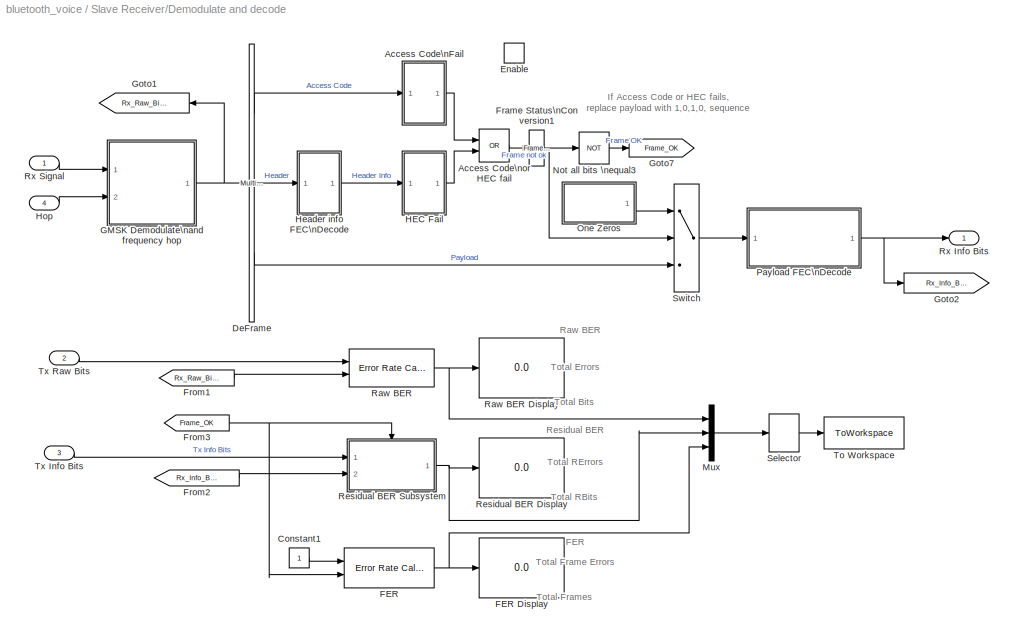
BLOCK [SubSystem] Slave Receiver/Demodulate and decode
  Ports = [4, 1, 1]
  RTWFcnNameOpts = Auto
  RTWFileNameOpts = Auto
  RTWSystemCode = Auto
  ShowPortLabels = on
  TreatAsAtomicUnit = on
BLOCK [SubSystem] Slave Receiver/Demodulate and decode/Access Code\nFail
  Ports = [1, 1]
  RTWFcnNameOpts = Auto
  RTWFileNameOpts = Auto
  RTWSystemCode = Auto
  ShowPortLabels = on
  TreatAsAtomicUnit = off
BLOCK [Reference] Slave Receiver/Demodulate and decode/Access Code\nFail/Access Code  REF=dspsrcs3/DSP\nConstant
  FramebasedOutput = on
  InterpretAs1D = off
  Ports = [0, 1]
  SampleMode = Discrete
  SourceBlock = dspsrcs3/DSP\nConstant
  SourceType = DSP Constant
  Ts = Slot_Ts
  Value = Access_Code
BLOCK [Constant] Slave Receiver/Demodulate and decode/Access Code\nFail/Constant
  Value = 57
  VectorParams1D = on
BLOCK [Inport] Slave Receiver/Demodulate and decode/Access Code\nFail/In
  Interpolate = on
  LatchInput = off
  Port = 1
BLOCK [RelationalOperator] Slave Receiver/Demodulate and decode/Access Code\nFail/Less than \n57 bits good
  Operator = <
BLOCK [Outport] Slave Receiver/Demodulate and decode/Access Code\nFail/Out
  InitialOutput = []
  OutputWhenDisabled = held
  Port = 1
BLOCK [RelationalOperator] Slave Receiver/Demodulate and decode/Access Code\nFail/Relational\nOperator
  Operator = ==
BLOCK [Selector] Slave Receiver/Demodulate and decode/Access Code\nFail/Strip of preamble \nand trailer
  ColumnSrc = Internal
  Columns = 1
  ElementSrc = Internal
  Elements = [5:68]
  InputPortWidth = 72
  InputType = Vector
  Ports = [1, 1]
  RowSrc = Internal
  Rows = 1
BLOCK [Selector] Slave Receiver/Demodulate and decode/Access Code\nFail/Strip of preamble \nand trailer1
  ColumnSrc = Internal
  Columns = 1
  ElementSrc = Internal
  Elements = [5:68]
  InputPortWidth = 72
  InputType = Vector
  Ports = [1, 1]
  RowSrc = Internal
  Rows = 1
BLOCK [Sum] Slave Receiver/Demodulate and decode/Access Code\nFail/Total\ncorrect\nbits
  IconShape = round
  Inputs = 1
  Ports = [1, 1]
  SaturateOnIntegerOverflow = on
BLOCK [Logic] Slave Receiver/Demodulate and decode/Access Code\nor HEC fail
  Inputs = 2
  Operator = OR
  Ports = [2, 1]
BLOCK [Constant] Slave Receiver/Demodulate and decode/Constant1
  Value = 1
  VectorParams1D = on
BLOCK [Reference] Slave Receiver/Demodulate and decode/DeFrame  REF=dspindex/Multiport\nSelector
  Ports = [1, 3]
  SourceBlock = dspindex/Multiport\nSelector
  SourceType = Multiport Selector
  idxCellArray = {  1:72, 73:126,127:366}
  idxErrMode = Clip Index
  rowsOrCols = Rows
BLOCK [EnablePort] Slave Receiver/Demodulate and decode/Enable
  Ports = []
  ShowOutputPort = off
  StatesWhenEnabling = held
BLOCK [Reference] Slave Receiver/Demodulate and decode/FER  REF=commsink2/Error Rate Calculation
  N = 0
  PMode = Port
  Ports = [2, 1]
  RsMode2 = off
  SourceBlock = commsink2/Error Rate Calculation
  SourceType = Error Rate Calculation
  WsName = ErrorVec
  cp_mode = Entire frame
  maxBits = 1e6
  numErr = 100
  st_delay = 0
  stop = on
  subframe = []
BLOCK [Display] Slave Receiver/Demodulate and decode/FER Display
  Decimation = 1
  Floating = off
  Format = short
  Ports = [1]
  SampleTime = -1
BLOCK [Reference] Slave Receiver/Demodulate and decode/Frame Status\nConversion1  REF=dspsigattribs/Frame Status\nConversion
  Ports = [1, 1]
  SourceBlock = dspsigattribs/Frame Status\nConversion
  SourceType = Frame Status Conversion
  growRefPort = off
  outframe = Sample-based
BLOCK [From] Slave Receiver/Demodulate and decode/From1
  CloseFcn = tagdialog Close
  GotoTag = Rx_Raw_Bits
BLOCK [From] Slave Receiver/Demodulate and decode/From2
  CloseFcn = tagdialog Close
  GotoTag = Rx_Info_Bits
BLOCK [From] Slave Receiver/Demodulate and decode/From3
  CloseFcn = tagdialog Close
  GotoTag = Frame_OK
BLOCK [SubSystem] Slave Receiver/Demodulate and decode/GMSK Demodulate\nand frequency hop
  Ports = [2, 1]
  RTWFcnNameOpts = Auto
  RTWFileNameOpts = Auto
  RTWSystemCode = Auto
  ShowPortLabels = on
  TreatAsAtomicUnit = off
BLOCK [Selector] Slave Receiver/Demodulate and decode/GMSK Demodulate\nand frequency hop/Extract 366 bits\nwith one symbol delay
  ColumnSrc = Internal
  Columns = 1
  ElementSrc = Internal
  Elements = [2:367]
  InputPortWidth = 625
  InputType = Vector
  Ports = [1, 1]
  RowSrc = Internal
  Rows = 1
BLOCK [Reference] Slave Receiver/Demodulate and decode/GMSK Demodulate\nand frequency hop/Frame Status\nConversion  REF=dspsigattribs/Frame Status\nConversion
  Ports = [1, 1]
  SourceBlock = dspsigattribs/Frame Status\nConversion
  SourceType = Frame Status Conversion
  growRefPort = off
  outframe = Frame-based
BLOCK [Reference] Slave Receiver/Demodulate and decode/GMSK Demodulate\nand frequency hop/Generate\n79 possible carriers\n-39MHz to 39MHz\n  REF=commdigbbndfm2/M-FSK\nModulator\nBaseband
  Enc = Binary
  InType = Integer
  M = 79
  Ports = [1, 1]
  SourceBlock = commdigbbndfm2/M-FSK\nModulator\nBaseband
  SourceType = M-FSK Modulator Baseband
  freqSep = 1e6
  numSamp = 6.25e4
  phaseType = Continuous
BLOCK [Inport] Slave Receiver/Demodulate and decode/GMSK Demodulate\nand frequency hop/Hop
  Interpolate = on
  LatchInput = off
  Port = 2
BLOCK [Reference] Slave Receiver/Demodulate and decode/GMSK Demodulate\nand frequency hop/IF Filter\nSelect 1MHz band1  REF=dsparch3/Digital\nFilter Design
  Ports = [1, 1]
  SourceBlock = dsparch3/Digital\nFilter Design
  SourceType = Digital Filter Design
  UserData = DataTag1
  UserDataPersistent = on
BLOCK [Reference] Slave Receiver/Demodulate and decode/GMSK Demodulate\nand frequency hop/M-FSK\nDemodulator\nBaseband  REF=commdigbbndfm2/M-FSK\nDemodulator\nBaseband
  Dec = Binary
  M = 2
  OutType = Bit
  Ports = [1, 1]
  SourceBlock = commdigbbndfm2/M-FSK\nDemodulator\nBaseband
  SourceType = M-FSK Demodulator Baseband
  freqSep = 2*150e3
  numSamp = 100
BLOCK [Math] Slave Receiver/Demodulate and decode/GMSK Demodulate\nand frequency hop/Math\nFunction
  Operator = conj
  OutputSignalType = auto
  Ports = [1, 1]
BLOCK [Reference] Slave Receiver/Demodulate and decode/GMSK Demodulate\nand frequency hop/Move to a\nsymbol\nboundary  REF=dspsigops/Integer Delay
  Ports = [1, 1]
  SourceBlock = dspsigops/Integer Delay
  SourceType = Integer Delay
  delay = 100-50
  ic = 0
BLOCK [Product] Slave Receiver/Demodulate and decode/GMSK Demodulate\nand frequency hop/Product1
  Inputs = 2
  Multiplication = Element-wise(.*)
  Ports = [2, 1]
  SaturateOnIntegerOverflow = on
BLOCK [Outport] Slave Receiver/Demodulate and decode/GMSK Demodulate\nand frequency hop/Rx Raw Bits
  InitialOutput = []
  OutputWhenDisabled = held
  Port = 1
BLOCK [Inport] Slave Receiver/Demodulate and decode/GMSK Demodulate\nand frequency hop/Rx Signal
  Interpolate = on
  LatchInput = off
  Port = 1
BLOCK [Goto] Slave Receiver/Demodulate and decode/Goto1
  GotoTag = Rx_Raw_Bits
  TagVisibility = local
BLOCK [Goto] Slave Receiver/Demodulate and decode/Goto2
  GotoTag = Rx_Info_Bits
  TagVisibility = local
BLOCK [Goto] Slave Receiver/Demodulate and decode/Goto7
  GotoTag = Frame_OK
  TagVisibility = local
BLOCK [SubSystem] Slave Receiver/Demodulate and decode/HEC Fail
  Ports = [1, 1]
  RTWFcnNameOpts = Auto
  RTWFileNameOpts = Auto
  RTWSystemCode = Auto
  ShowPortLabels = on
  TreatAsAtomicUnit = off
BLOCK [Logic] Slave Receiver/Demodulate and decode/HEC Fail/Any HEC bits\nnot matching
  Inputs = 1
  Operator = OR
  Ports = [1, 1]
BLOCK [SubSystem] Slave Receiver/Demodulate and decode/HEC Fail/Bluetooth\nHEC Generator1
  MaskDescription = Compute the Bluetooth Header Error Check (HEC) as specified in section 5.4 of the Bluetooth specification.  The Upper Address Part (UAP) is used to initialize the state of the encoder.  The UAP is an 8-bit vector, LSB first.
  MaskDisplay = disp('Bluetooth\\nHEC Generator')
  MaskEnableString = on
  MaskIconFrame = on
  MaskIconOpaque = on
  MaskIconRotate = none
  MaskIconUnits = autoscale
  MaskPromptString = UAP:
  MaskStyleString = edit
  MaskToolTipString = on
  MaskTunableValueString = on
  MaskType = Bluetooth HEC Generator
  MaskValueString = [1 0 0 1 0 1 1 0]
  MaskVariables = uap=@1;
  MaskVisibilityString = on
  Ports = [1, 1]
  RTWFcnNameOpts = Auto
  RTWFileNameOpts = Auto
  RTWSystemCode = Auto
  ShowPortLabels = on
  TreatAsAtomicUnit = off
BLOCK [Reference] Slave Receiver/Demodulate and decode/HEC Fail/Bluetooth\nHEC Generator1/Frame Status\nConversion  REF=dspsigattribs/Frame Status\nConversion
  Ports = [1, 1]
  SourceBlock = dspsigattribs/Frame Status\nConversion
  SourceType = Frame Status Conversion
  growRefPort = off
  outframe = Sample-based
BLOCK [Reference] Slave Receiver/Demodulate and decode/HEC Fail/Bluetooth\nHEC Generator1/Frame Status\nConversion1  REF=dspsigattribs/Frame Status\nConversion
  Ports = [2, 1]
  SourceBlock = dspsigattribs/Frame Status\nConversion
  SourceType = Frame Status Conversion
  growRefPort = on
  outframe = Sample-based
BLOCK [Inport] Slave Receiver/Demodulate and decode/HEC Fail/Bluetooth\nHEC Generator1/In1
  Interpolate = on
  LatchInput = off
  Port = 1
BLOCK [Outport] Slave Receiver/Demodulate and decode/HEC Fail/Bluetooth\nHEC Generator1/Out1
  InitialOutput = []
  OutputWhenDisabled = held
  Port = 1
BLOCK [S-Function] Slave Receiver/Demodulate and decode/HEC Fail/Bluetooth\nHEC Generator1/S-Function Builder
  AncestorBlock = simulink3/Functions\n& Tables/Basic S-Function\nBuilder
  CopyFcn = set_param(gcb,'LinkStatus','none')
  FunctionName = scomdemohecgen
  MaskDisplay = plot(val(:,1),val(:,2))\ndisp(sys)
  MaskIconFrame = on
  MaskIconOpaque = on
  MaskIconRotate = none
  MaskIconUnits = normalized
  MaskInitialization = val = [[.9  0.75 0.75 1 1 .9 .9 1]',[1 1 0.75 0.75 .9 .9 1 .9]'];\nsys = get_param(gcb,'FunctionName');
  OpenFcn = sfunctionwizard(gcbh)
  Parameters = uap
  PortCounts = []
  Ports = [1, 1]
  SFunctionModules = scomdemohecgen_wrapper
BLOCK [Demux] Slave Receiver/Demodulate and decode/HEC Fail/Demux
  BusSelectionMode = off
  Outputs = [10 8]
  Ports = [1, 2]
BLOCK [Inport] Slave Receiver/Demodulate and decode/HEC Fail/In
  Interpolate = on
  LatchInput = off
  Port = 1
BLOCK [Outport] Slave Receiver/Demodulate and decode/HEC Fail/Out
  InitialOutput = []
  OutputWhenDisabled = held
  Port = 1
BLOCK [RelationalOperator] Slave Receiver/Demodulate and decode/HEC Fail/Relational\nOperator1
  Operator = ~=
BLOCK [SubSystem] Slave Receiver/Demodulate and decode/Header info FEC\nDecode
  Ports = [1, 1]
  RTWFcnNameOpts = Auto
  RTWFileNameOpts = Auto
  RTWSystemCode = Auto
  ShowPortLabels = on
  TreatAsAtomicUnit = off
BLOCK [Constant] Slave Receiver/Demodulate and decode/Header info FEC\nDecode/Constant1
  Value = .5
  VectorParams1D = on
BLOCK [Reference] Slave Receiver/Demodulate and decode/Header info FEC\nDecode/Decode\nFEC  REF=commsequence2/Derepeat
  N = 3
  Ports = [1, 1]
  SourceBlock = commsequence2/Derepeat
  SourceType = Derepeat
  ic = 0
  mode = Maintain input frame rate
BLOCK [Inport] Slave Receiver/Demodulate and decode/Header info FEC\nDecode/In
  Interpolate = on
  LatchInput = off
  Port = 1
BLOCK [Outport] Slave Receiver/Demodulate and decode/Header info FEC\nDecode/Out
  InitialOutput = []
  OutputWhenDisabled = held
  Port = 1
BLOCK [RelationalOperator] Slave Receiver/Demodulate and decode/Header info FEC\nDecode/Threshold
  Operator = >
BLOCK [Inport] Slave Receiver/Demodulate and decode/Hop
  Interpolate = on
  LatchInput = off
  Port = 4
  SampleTime = Slot_Ts
BLOCK [Mux] Slave Receiver/Demodulate and decode/Mux
  DisplayOption = bar
  Inputs = 3
  Ports = [3, 1]
BLOCK [Logic] Slave Receiver/Demodulate and decode/Not all bits \nequal3
  Inputs = 1
  Operator = NOT
  Ports = [1, 1]
BLOCK [SubSystem] Slave Receiver/Demodulate and decode/One Zeros
  Ports = [0, 1]
  RTWFcnNameOpts = Auto
  RTWFileNameOpts = Auto
  RTWSystemCode = Auto
  ShowPortLabels = on
  TreatAsAtomicUnit = off
BLOCK [Constant] Slave Receiver/Demodulate and decode/One Zeros/Constant
  Value = HV_Type
  VectorParams1D = on
BLOCK [SubSystem] Slave Receiver/Demodulate and decode/One Zeros/FEC HV1
  Ports = [0, 1, 1]
  RTWFcnNameOpts = Auto
  RTWFileNameOpts = Auto
  RTWSystemCode = Auto
  ShowPortLabels = on
  TreatAsAtomicUnit = on
BLOCK [Reference] Slave Receiver/Demodulate and decode/One Zeros/FEC HV1/1 0 1 0 1 0 ...  REF=dspsrcs3/DSP\nConstant
  FramebasedOutput = on
  InterpretAs1D = off
  Ports = [0, 1]
  SampleMode = Discrete
  SourceBlock = dspsrcs3/DSP\nConstant
  SourceType = DSP Constant
  Ts = 30*(1/Input_Fs)/6
  Value = One_Zero_Payload(1:80)
BLOCK [EnablePort] Slave Receiver/Demodulate and decode/One Zeros/FEC HV1/Enable
  Ports = []
  ShowOutputPort = off
  StatesWhenEnabling = held
BLOCK [Reference] Slave Receiver/Demodulate and decode/One Zeros/FEC HV1/FEC1  REF=dspsigops/Repeat
  N = 3
  Ports = [1, 1]
  SourceBlock = dspsigops/Repeat
  SourceType = Repeat
  ic = 0
  mode = Maintain input frame rate
BLOCK [Outport] Slave Receiver/Demodulate and decode/One Zeros/FEC HV1/Ones Zeros
  InitialOutput = []
  OutputWhenDisabled = held
  Port = 1
BLOCK [SubSystem] Slave Receiver/Demodulate and decode/One Zeros/FEC HV2
  Ports = [0, 1, 1]
  RTWFcnNameOpts = Auto
  RTWFileNameOpts = Auto
  RTWSystemCode = Auto
  ShowPortLabels = on
  TreatAsAtomicUnit = on
BLOCK [Reference] Slave Receiver/Demodulate and decode/One Zeros/FEC HV2/1 0 1 0 1 0 ...2  REF=dspsrcs3/DSP\nConstant
  FramebasedOutput = on
  InterpretAs1D = off
  Ports = [0, 1]
  SampleMode = Discrete
  SourceBlock = dspsrcs3/DSP\nConstant
  SourceType = DSP Constant
  Ts = Slot_Ts
  Value = One_Zero_Payload(1:160)
BLOCK [EnablePort] Slave Receiver/Demodulate and decode/One Zeros/FEC HV2/Enable
  Ports = []
  ShowOutputPort = off
  StatesWhenEnabling = held
BLOCK [Reference] Slave Receiver/Demodulate and decode/One Zeros/FEC HV2/Matrix\nConcatenation  REF=simulink3/Signals\n& Systems/Matrix\nConcatenation
  Ports = [16, 1]
  SourceBlock = simulink3/Signals\n& Systems/Matrix\nConcatenation
  SourceType = Matrix Concatenation
  catMethod = Vertical
  numInports = 16
BLOCK [Reference] Slave Receiver/Demodulate and decode/One Zeros/FEC HV2/Multiport\nSelector  REF=dspindex/Multiport\nSelector
  Ports = [1, 16]
  SourceBlock = dspindex/Multiport\nSelector
  SourceType = Multiport Selector
  idxCellArray = { 1:10, 11:20,21:30,31:40,41:50,51:60,61:70,71:80,81:90,91:100,101:110,111:120,121:130,131:140,141:150,151:160}
  idxErrMode = Clip Index
  rowsOrCols = Rows
BLOCK [Outport] Slave Receiver/Demodulate and decode/One Zeros/FEC HV2/Ones Zeros
  InitialOutput = []
  OutputWhenDisabled = held
  Port = 1
BLOCK [Reference] Slave Receiver/Demodulate and decode/One Zeros/FEC HV2/Shortened\nHamming (15,10)\nEncoder  REF=commblkcod2/Binary\nCyclic Encoder
  Ports = [1, 1]
  SourceBlock = commblkcod2/Binary\nCyclic Encoder
  SourceType = Binary Cyclic Encoder
  n = 15
  p = [1 1 0 1 0 1]
BLOCK [Reference] Slave Receiver/Demodulate and decode/One Zeros/FEC HV2/Shortened\nHamming (15,10)\nEncoder1  REF=commblkcod2/Binary\nCyclic Encoder
  Ports = [1, 1]
  SourceBlock = commblkcod2/Binary\nCyclic Encoder
  SourceType = Binary Cyclic Encoder
  n = 15
  p = [1 1 0 1 0 1]
BLOCK [Reference] Slave Receiver/Demodulate and decode/One Zeros/FEC HV2/Shortened\nHamming (15,10)\nEncoder10  REF=commblkcod2/Binary\nCyclic Encoder
  Ports = [1, 1]
  SourceBlock = commblkcod2/Binary\nCyclic Encoder
  SourceType = Binary Cyclic Encoder
  n = 15
  p = [1 1 0 1 0 1]
BLOCK [Reference] Slave Receiver/Demodulate and decode/One Zeros/FEC HV2/Shortened\nHamming (15,10)\nEncoder11  REF=commblkcod2/Binary\nCyclic Encoder
  Ports = [1, 1]
  SourceBlock = commblkcod2/Binary\nCyclic Encoder
  SourceType = Binary Cyclic Encoder
  n = 15
  p = [1 1 0 1 0 1]
BLOCK [Reference] Slave Receiver/Demodulate and decode/One Zeros/FEC HV2/Shortened\nHamming (15,10)\nEncoder12  REF=commblkcod2/Binary\nCyclic Encoder
  Ports = [1, 1]
  SourceBlock = commblkcod2/Binary\nCyclic Encoder
  SourceType = Binary Cyclic Encoder
  n = 15
  p = [1 1 0 1 0 1]
BLOCK [Reference] Slave Receiver/Demodulate and decode/One Zeros/FEC HV2/Shortened\nHamming (15,10)\nEncoder13  REF=commblkcod2/Binary\nCyclic Encoder
  Ports = [1, 1]
  SourceBlock = commblkcod2/Binary\nCyclic Encoder
  SourceType = Binary Cyclic Encoder
  n = 15
  p = [1 1 0 1 0 1]
BLOCK [Reference] Slave Receiver/Demodulate and decode/One Zeros/FEC HV2/Shortened\nHamming (15,10)\nEncoder14  REF=commblkcod2/Binary\nCyclic Encoder
  Ports = [1, 1]
  SourceBlock = commblkcod2/Binary\nCyclic Encoder
  SourceType = Binary Cyclic Encoder
  n = 15
  p = [1 1 0 1 0 1]
BLOCK [Reference] Slave Receiver/Demodulate and decode/One Zeros/FEC HV2/Shortened\nHamming (15,10)\nEncoder15  REF=commblkcod2/Binary\nCyclic Encoder
  Ports = [1, 1]
  SourceBlock = commblkcod2/Binary\nCyclic Encoder
  SourceType = Binary Cyclic Encoder
  n = 15
  p = [1 1 0 1 0 1]
BLOCK [Reference] Slave Receiver/Demodulate and decode/One Zeros/FEC HV2/Shortened\nHamming (15,10)\nEncoder2  REF=commblkcod2/Binary\nCyclic Encoder
  Ports = [1, 1]
  SourceBlock = commblkcod2/Binary\nCyclic Encoder
  SourceType = Binary Cyclic Encoder
  n = 15
  p = [1 1 0 1 0 1]
BLOCK [Reference] Slave Receiver/Demodulate and decode/One Zeros/FEC HV2/Shortened\nHamming (15,10)\nEncoder3  REF=commblkcod2/Binary\nCyclic Encoder
  Ports = [1, 1]
  SourceBlock = commblkcod2/Binary\nCyclic Encoder
  SourceType = Binary Cyclic Encoder
  n = 15
  p = [1 1 0 1 0 1]
BLOCK [Reference] Slave Receiver/Demodulate and decode/One Zeros/FEC HV2/Shortened\nHamming (15,10)\nEncoder4  REF=commblkcod2/Binary\nCyclic Encoder
  Ports = [1, 1]
  SourceBlock = commblkcod2/Binary\nCyclic Encoder
  SourceType = Binary Cyclic Encoder
  n = 15
  p = [1 1 0 1 0 1]
BLOCK [Reference] Slave Receiver/Demodulate and decode/One Zeros/FEC HV2/Shortened\nHamming (15,10)\nEncoder5  REF=commblkcod2/Binary\nCyclic Encoder
  Ports = [1, 1]
  SourceBlock = commblkcod2/Binary\nCyclic Encoder
  SourceType = Binary Cyclic Encoder
  n = 15
  p = [1 1 0 1 0 1]
BLOCK [Reference] Slave Receiver/Demodulate and decode/One Zeros/FEC HV2/Shortened\nHamming (15,10)\nEncoder6  REF=commblkcod2/Binary\nCyclic Encoder
  Ports = [1, 1]
  SourceBlock = commblkcod2/Binary\nCyclic Encoder
  SourceType = Binary Cyclic Encoder
  n = 15
  p = [1 1 0 1 0 1]
BLOCK [Reference] Slave Receiver/Demodulate and decode/One Zeros/FEC HV2/Shortened\nHamming (15,10)\nEncoder7  REF=commblkcod2/Binary\nCyclic Encoder
  Ports = [1, 1]
  SourceBlock = commblkcod2/Binary\nCyclic Encoder
  SourceType = Binary Cyclic Encoder
  n = 15
  p = [1 1 0 1 0 1]
BLOCK [Reference] Slave Receiver/Demodulate and decode/One Zeros/FEC HV2/Shortened\nHamming (15,10)\nEncoder8  REF=commblkcod2/Binary\nCyclic Encoder
  Ports = [1, 1]
  SourceBlock = commblkcod2/Binary\nCyclic Encoder
  SourceType = Binary Cyclic Encoder
  n = 15
  p = [1 1 0 1 0 1]
BLOCK [Reference] Slave Receiver/Demodulate and decode/One Zeros/FEC HV2/Shortened\nHamming (15,10)\nEncoder9  REF=commblkcod2/Binary\nCyclic Encoder
  Ports = [1, 1]
  SourceBlock = commblkcod2/Binary\nCyclic Encoder
  SourceType = Binary Cyclic Encoder
  n = 15
  p = [1 1 0 1 0 1]
BLOCK [SubSystem] Slave Receiver/Demodulate and decode/One Zeros/FEC HV3 (None)
  Ports = [0, 1, 1]
  RTWFcnNameOpts = Auto
  RTWFileNameOpts = Auto
  RTWSystemCode = Auto
  ShowPortLabels = on
  TreatAsAtomicUnit = on
BLOCK [Reference] Slave Receiver/Demodulate and decode/One Zeros/FEC HV3 (None)/1 0 1 0 1 0 ...  REF=dspsrcs3/DSP\nConstant
  FramebasedOutput = on
  InterpretAs1D = off
  Ports = [0, 1]
  SampleMode = Discrete
  SourceBlock = dspsrcs3/DSP\nConstant
  SourceType = DSP Constant
  Ts = 1/1600
  Value = One_Zero_Payload(1:240)
BLOCK [EnablePort] Slave Receiver/Demodulate and decode/One Zeros/FEC HV3 (None)/Enable
  Ports = []
  ShowOutputPort = off
  StatesWhenEnabling = held
BLOCK [Outport] Slave Receiver/Demodulate and decode/One Zeros/FEC HV3 (None)/Ones Zeros
  InitialOutput = []
  OutputWhenDisabled = held
  Port = 1
BLOCK [Fcn] Slave Receiver/Demodulate and decode/One Zeros/Fcn
  Expr = u==1
BLOCK [Fcn] Slave Receiver/Demodulate and decode/One Zeros/Fcn1
  Expr = u==2
BLOCK [Fcn] Slave Receiver/Demodulate and decode/One Zeros/Fcn2
  Expr = u==3
BLOCK [Merge] Slave Receiver/Demodulate and decode/One Zeros/Merge
  AllowUnequalInputPortWidths = off
  InitialOutput = []
  InputPortOffsets = []
  Inputs = 3
  Ports = [3, 1]
BLOCK [Outport] Slave Receiver/Demodulate and decode/One Zeros/One Zeros
  InitialOutput = []
  OutputWhenDisabled = held
  Port = 1
BLOCK [SubSystem] Slave Receiver/Demodulate and decode/Payload FEC\nDecode
  Ports = [1, 1]
  RTWFcnNameOpts = Auto
  RTWFileNameOpts = Auto
  RTWSystemCode = Auto
  ShowPortLabels = on
  TreatAsAtomicUnit = off
BLOCK [Constant] Slave Receiver/Demodulate and decode/Payload FEC\nDecode/Constant
  Value = HV_Type
  VectorParams1D = on
BLOCK [Outport] Slave Receiver/Demodulate and decode/Payload FEC\nDecode/Decoded Bits
  InitialOutput = []
  OutputWhenDisabled = held
  Port = 1
BLOCK [SubSystem] Slave Receiver/Demodulate and decode/Payload FEC\nDecode/FEC HV1
  Ports = [1, 1, 1]
  RTWFcnNameOpts = Auto
  RTWFileNameOpts = Auto
  RTWSystemCode = Auto
  ShowPortLabels = on
  TreatAsAtomicUnit = on
BLOCK [Constant] Slave Receiver/Demodulate and decode/Payload FEC\nDecode/FEC HV1/Constant1
  Value = .5
  VectorParams1D = on
BLOCK [Reference] Slave Receiver/Demodulate and decode/Payload FEC\nDecode/FEC HV1/Decode\nFEC  REF=commsequence2/Derepeat
  N = 3
  Ports = [1, 1]
  SourceBlock = commsequence2/Derepeat
  SourceType = Derepeat
  ic = One_Zero_Payload(1:80)
  mode = Maintain input frame rate
BLOCK [EnablePort] Slave Receiver/Demodulate and decode/Payload FEC\nDecode/FEC HV1/Enable
  Ports = []
  ShowOutputPort = off
  StatesWhenEnabling = held
BLOCK [Outport] Slave Receiver/Demodulate and decode/Payload FEC\nDecode/FEC HV1/FEC'd
  InitialOutput = []
  OutputWhenDisabled = held
  Port = 1
BLOCK [Inport] Slave Receiver/Demodulate and decode/Payload FEC\nDecode/FEC HV1/In
  Interpolate = on
  LatchInput = off
  Port = 1
BLOCK [RelationalOperator] Slave Receiver/Demodulate and decode/Payload FEC\nDecode/FEC HV1/Threshold
  Operator = >
BLOCK [Reference] Slave Receiver/Demodulate and decode/Payload FEC\nDecode/FEC HV1/Zero Pad  REF=dspsigops/Zero Pad
  Ports = [1, 1]
  SourceBlock = dspsigops/Zero Pad
  SourceType = Zero Pad
  numOutCols = 1
  numOutRows = 240
  trunc_flag = None
  zpadAlong = Columns
BLOCK [SubSystem] Slave Receiver/Demodulate and decode/Payload FEC\nDecode/FEC HV2
  Ports = [1, 1, 1]
  RTWFcnNameOpts = Auto
  RTWFileNameOpts = Auto
  RTWSystemCode = Auto
  ShowPortLabels = on
  TreatAsAtomicUnit = on
BLOCK [EnablePort] Slave Receiver/Demodulate and decode/Payload FEC\nDecode/FEC HV2/Enable
  Ports = []
  ShowOutputPort = off
  StatesWhenEnabling = held
BLOCK [Outport] Slave Receiver/Demodulate and decode/Payload FEC\nDecode/FEC HV2/FEC'd
  InitialOutput = []
  OutputWhenDisabled = held
  Port = 1
BLOCK [Inport] Slave Receiver/Demodulate and decode/Payload FEC\nDecode/FEC HV2/In
  Interpolate = on
  LatchInput = off
  Port = 1
BLOCK [Reference] Slave Receiver/Demodulate and decode/Payload FEC\nDecode/FEC HV2/Matrix\nConcatenation  REF=simulink3/Signals\n& Systems/Matrix\nConcatenation
  Ports = [16, 1]
  SourceBlock = simulink3/Signals\n& Systems/Matrix\nConcatenation
  SourceType = Matrix Concatenation
  catMethod = Vertical
  numInports = 16
BLOCK [Reference] Slave Receiver/Demodulate and decode/Payload FEC\nDecode/FEC HV2/Multiport\nSelector  REF=dspindex/Multiport\nSelector
  Ports = [1, 16]
  SourceBlock = dspindex/Multiport\nSelector
  SourceType = Multiport Selector
  idxCellArray = { 1:15, 16:30,31:45,46:60,61:75,76:90,91:105,106:120,121:135,136:150,151:165,166:180,181:195,196:210,211:225,226:240}
  idxErrMode = Clip Index
  rowsOrCols = Rows
BLOCK [Reference] Slave Receiver/Demodulate and decode/Payload FEC\nDecode/FEC HV2/Shortened\nHamming (15,10)\nDecoder  REF=commblkcod2/Binary\nCyclic Decoder
  Ports = [1, 1]
  SourceBlock = commblkcod2/Binary\nCyclic Decoder
  SourceType = Binary Cyclic Decoder
  n = 15
  p = [1 1 0 1 0 1]
BLOCK [Reference] Slave Receiver/Demodulate and decode/Payload FEC\nDecode/FEC HV2/Shortened\nHamming (15,10)\nDecoder1  REF=commblkcod2/Binary\nCyclic Decoder
  Ports = [1, 1]
  SourceBlock = commblkcod2/Binary\nCyclic Decoder
  SourceType = Binary Cyclic Decoder
  n = 15
  p = [1 1 0 1 0 1]
BLOCK [Reference] Slave Receiver/Demodulate and decode/Payload FEC\nDecode/FEC HV2/Shortened\nHamming (15,10)\nDecoder10  REF=commblkcod2/Binary\nCyclic Decoder
  Ports = [1, 1]
  SourceBlock = commblkcod2/Binary\nCyclic Decoder
  SourceType = Binary Cyclic Decoder
  n = 15
  p = [1 1 0 1 0 1]
BLOCK [Reference] Slave Receiver/Demodulate and decode/Payload FEC\nDecode/FEC HV2/Shortened\nHamming (15,10)\nDecoder11  REF=commblkcod2/Binary\nCyclic Decoder
  Ports = [1, 1]
  SourceBlock = commblkcod2/Binary\nCyclic Decoder
  SourceType = Binary Cyclic Decoder
  n = 15
  p = [1 1 0 1 0 1]
BLOCK [Reference] Slave Receiver/Demodulate and decode/Payload FEC\nDecode/FEC HV2/Shortened\nHamming (15,10)\nDecoder12  REF=commblkcod2/Binary\nCyclic Decoder
  Ports = [1, 1]
  SourceBlock = commblkcod2/Binary\nCyclic Decoder
  SourceType = Binary Cyclic Decoder
  n = 15
  p = [1 1 0 1 0 1]
BLOCK [Reference] Slave Receiver/Demodulate and decode/Payload FEC\nDecode/FEC HV2/Shortened\nHamming (15,10)\nDecoder13  REF=commblkcod2/Binary\nCyclic Decoder
  Ports = [1, 1]
  SourceBlock = commblkcod2/Binary\nCyclic Decoder
  SourceType = Binary Cyclic Decoder
  n = 15
  p = [1 1 0 1 0 1]
BLOCK [Reference] Slave Receiver/Demodulate and decode/Payload FEC\nDecode/FEC HV2/Shortened\nHamming (15,10)\nDecoder14  REF=commblkcod2/Binary\nCyclic Decoder
  Ports = [1, 1]
  SourceBlock = commblkcod2/Binary\nCyclic Decoder
  SourceType = Binary Cyclic Decoder
  n = 15
  p = [1 1 0 1 0 1]
BLOCK [Reference] Slave Receiver/Demodulate and decode/Payload FEC\nDecode/FEC HV2/Shortened\nHamming (15,10)\nDecoder15  REF=commblkcod2/Binary\nCyclic Decoder
  Ports = [1, 1]
  SourceBlock = commblkcod2/Binary\nCyclic Decoder
  SourceType = Binary Cyclic Decoder
  n = 15
  p = [1 1 0 1 0 1]
BLOCK [Reference] Slave Receiver/Demodulate and decode/Payload FEC\nDecode/FEC HV2/Shortened\nHamming (15,10)\nDecoder2  REF=commblkcod2/Binary\nCyclic Decoder
  Ports = [1, 1]
  SourceBlock = commblkcod2/Binary\nCyclic Decoder
  SourceType = Binary Cyclic Decoder
  n = 15
  p = [1 1 0 1 0 1]
BLOCK [Reference] Slave Receiver/Demodulate and decode/Payload FEC\nDecode/FEC HV2/Shortened\nHamming (15,10)\nDecoder3  REF=commblkcod2/Binary\nCyclic Decoder
  Ports = [1, 1]
  SourceBlock = commblkcod2/Binary\nCyclic Decoder
  SourceType = Binary Cyclic Decoder
  n = 15
  p = [1 1 0 1 0 1]
BLOCK [Reference] Slave Receiver/Demodulate and decode/Payload FEC\nDecode/FEC HV2/Shortened\nHamming (15,10)\nDecoder4  REF=commblkcod2/Binary\nCyclic Decoder
  Ports = [1, 1]
  SourceBlock = commblkcod2/Binary\nCyclic Decoder
  SourceType = Binary Cyclic Decoder
  n = 15
  p = [1 1 0 1 0 1]
BLOCK [Reference] Slave Receiver/Demodulate and decode/Payload FEC\nDecode/FEC HV2/Shortened\nHamming (15,10)\nDecoder5  REF=commblkcod2/Binary\nCyclic Decoder
  Ports = [1, 1]
  SourceBlock = commblkcod2/Binary\nCyclic Decoder
  SourceType = Binary Cyclic Decoder
  n = 15
  p = [1 1 0 1 0 1]
BLOCK [Reference] Slave Receiver/Demodulate and decode/Payload FEC\nDecode/FEC HV2/Shortened\nHamming (15,10)\nDecoder6  REF=commblkcod2/Binary\nCyclic Decoder
  Ports = [1, 1]
  SourceBlock = commblkcod2/Binary\nCyclic Decoder
  SourceType = Binary Cyclic Decoder
  n = 15
  p = [1 1 0 1 0 1]
BLOCK [Reference] Slave Receiver/Demodulate and decode/Payload FEC\nDecode/FEC HV2/Shortened\nHamming (15,10)\nDecoder7  REF=commblkcod2/Binary\nCyclic Decoder
  Ports = [1, 1]
  SourceBlock = commblkcod2/Binary\nCyclic Decoder
  SourceType = Binary Cyclic Decoder
  n = 15
  p = [1 1 0 1 0 1]
BLOCK [Reference] Slave Receiver/Demodulate and decode/Payload FEC\nDecode/FEC HV2/Shortened\nHamming (15,10)\nDecoder8  REF=commblkcod2/Binary\nCyclic Decoder
  Ports = [1, 1]
  SourceBlock = commblkcod2/Binary\nCyclic Decoder
  SourceType = Binary Cyclic Decoder
  n = 15
  p = [1 1 0 1 0 1]
BLOCK [Reference] Slave Receiver/Demodulate and decode/Payload FEC\nDecode/FEC HV2/Shortened\nHamming (15,10)\nDecoder9  REF=commblkcod2/Binary\nCyclic Decoder
  Ports = [1, 1]
  SourceBlock = commblkcod2/Binary\nCyclic Decoder
  SourceType = Binary Cyclic Decoder
  n = 15
  p = [1 1 0 1 0 1]
BLOCK [Reference] Slave Receiver/Demodulate and decode/Payload FEC\nDecode/FEC HV2/Zero Pad  REF=dspsigops/Zero Pad
  Ports = [1, 1]
  SourceBlock = dspsigops/Zero Pad
  SourceType = Zero Pad
  numOutCols = 1
  numOutRows = 240
  trunc_flag = None
  zpadAlong = Columns
BLOCK [SubSystem] Slave Receiver/Demodulate and decode/Payload FEC\nDecode/FEC HV3 (None)
  Ports = [1, 1, 1]
  RTWFcnNameOpts = Auto
  RTWFileNameOpts = Auto
  RTWSystemCode = Auto
  ShowPortLabels = on
  TreatAsAtomicUnit = on
BLOCK [EnablePort] Slave Receiver/Demodulate and decode/Payload FEC\nDecode/FEC HV3 (None)/Enable
  Ports = []
  ShowOutputPort = off
  StatesWhenEnabling = held
BLOCK [Outport] Slave Receiver/Demodulate and decode/Payload FEC\nDecode/FEC HV3 (None)/FEC'd
  InitialOutput = []
  OutputWhenDisabled = held
  Port = 1
BLOCK [Inport] Slave Receiver/Demodulate and decode/Payload FEC\nDecode/FEC HV3 (None)/In
  Interpolate = on
  LatchInput = off
  Port = 1
BLOCK [Fcn] Slave Receiver/Demodulate and decode/Payload FEC\nDecode/Fcn
  Expr = u==1
BLOCK [Fcn] Slave Receiver/Demodulate and decode/Payload FEC\nDecode/Fcn1
  Expr = u==2
BLOCK [Fcn] Slave Receiver/Demodulate and decode/Payload FEC\nDecode/Fcn2
  Expr = u==3
BLOCK [Inport] Slave Receiver/Demodulate and decode/Payload FEC\nDecode/Input Bits
  Interpolate = on
  LatchInput = off
  Port = 1
BLOCK [Merge] Slave Receiver/Demodulate and decode/Payload FEC\nDecode/Merge
  AllowUnequalInputPortWidths = off
  InitialOutput = []
  InputPortOffsets = []
  Inputs = 3
  Ports = [3, 1]
BLOCK [Reference] Slave Receiver/Demodulate and decode/Payload FEC\nDecode/Payload Bits1  REF=dspindex/Multiport\nSelector
  Ports = [1, 1]
  SourceBlock = dspindex/Multiport\nSelector
  SourceType = Multiport Selector
  idxCellArray = {1:Num_Payload_Bits}
  idxErrMode = Clip Index
  rowsOrCols = Rows
BLOCK [Reference] Slave Receiver/Demodulate and decode/Raw BER  REF=commsink2/Error Rate Calculation
  N = 0
  PMode = Port
  Ports = [2, 1]
  RsMode2 = off
  SourceBlock = commsink2/Error Rate Calculation
  SourceType = Error Rate Calculation
  WsName = ErrorVec
  cp_mode = Entire frame
  maxBits = 1e6
  numErr = 100
  st_delay = 0
  stop = off
  subframe = []
BLOCK [Display] Slave Receiver/Demodulate and decode/Raw BER Display
  Decimation = 1
  Floating = off
  Format = short
  Ports = [1]
  SampleTime = -1
BLOCK [Display] Slave Receiver/Demodulate and decode/Residual BER Display
  Decimation = 1
  Floating = off
  Format = short
  Ports = [1]
  SampleTime = -1
BLOCK [SubSystem] Slave Receiver/Demodulate and decode/Residual BER Subsystem
  Ports = [2, 1, 1]
  RTWFcnNameOpts = Auto
  RTWFileNameOpts = Auto
  RTWSystemCode = Auto
  ShowPortLabels = on
  TreatAsAtomicUnit = on
BLOCK [EnablePort] Slave Receiver/Demodulate and decode/Residual BER Subsystem/Enable
  Ports = []
  ShowOutputPort = off
  StatesWhenEnabling = held
BLOCK [Inport] Slave Receiver/Demodulate and decode/Residual BER Subsystem/In1
  Interpolate = on
  LatchInput = off
  Port = 1
BLOCK [Inport] Slave Receiver/Demodulate and decode/Residual BER Subsystem/In2
  Interpolate = on
  LatchInput = off
  Port = 2
BLOCK [Outport] Slave Receiver/Demodulate and decode/Residual BER Subsystem/Out1
  InitialOutput = []
  OutputWhenDisabled = held
  Port = 1
BLOCK [Reference] Slave Receiver/Demodulate and decode/Residual BER Subsystem/Residual BER  REF=commsink2/Error Rate Calculation
  N = 0
  PMode = Port
  Ports = [2, 1]
  RsMode2 = off
  SourceBlock = commsink2/Error Rate Calculation
  SourceType = Error Rate Calculation
  WsName = ErrorVec
  cp_mode = Entire frame
  maxBits = 1e6
  numErr = 100
  st_delay = 0
  stop = off
  subframe = []
BLOCK [Outport] Slave Receiver/Demodulate and decode/Rx Info Bits
  InitialOutput = 0
  OutputWhenDisabled = held
  Port = 1
BLOCK [Inport] Slave Receiver/Demodulate and decode/Rx Signal
  Interpolate = on
  LatchInput = off
  Port = 1
BLOCK [Selector] Slave Receiver/Demodulate and decode/Selector
  ColumnSrc = Internal
  Columns = 1
  ElementSrc = Internal
  Elements = [1 4 7]
  InputPortWidth = 9
  InputType = Vector
  Ports = [1, 1]
  RowSrc = Internal
  Rows = 1
BLOCK [Switch] Slave Receiver/Demodulate and decode/Switch
  Threshold = .5
BLOCK [ToWorkspace] Slave Receiver/Demodulate and decode/To Workspace
  Decimation = 1
  MaxDataPoints = 1
  SampleTime = -1
  SaveFormat = Array
  VariableName = BER_Results
BLOCK [Inport] Slave Receiver/Demodulate and decode/Tx Info Bits
  Interpolate = on
  LatchInput = off
  Port = 3
BLOCK [Inport] Slave Receiver/Demodulate and decode/Tx Raw Bits
  Interpolate = on
  LatchInput = off
  Port = 2
BLOCK [Reference] Slave Receiver/Downsample\nto\n8ksamples//s  REF=dspsigops/Downsample
  N = 8
  Ports = [1, 1]
  SourceBlock = dspsigops/Downsample
  SourceType = Downsample
  fmode = Maintain input frame size
  ic = 0
  phase = 0
  smode = Allow multirate
BLOCK [Reference] Slave Receiver/Hop Sequence\nGenerator  REF=bluetooth_lib/Hop Sequence\nGenerator  (lib defined in mdl_445d02070f23, mdl_ddbc2443d151)
  Hop_Mode = Connection State Hop Sequence
  Ports = [2, 1]
  SourceBlock = bluetooth_lib/Hop Sequence\nGenerator
  SourceType = Hop Sequence Generator
  fixed_hop_freq = fixed_hop_freq
  hop_seed = hop_seed
BLOCK [Inport] Slave Receiver/Rx Signal
  Interpolate = on
  LatchInput = off
  Port = 1
BLOCK [DiscretePulseGenerator] Slave Receiver/Slot Enable
  Amplitude = 1
  Period = Num_Slots_Rate
  PhaseDelay = Slot_Enable_Phase
  PulseType = Sample-based
  PulseWidth = 1
  SampleTime = Slot_Ts
  VectorParams1D = on
BLOCK [Step] Slave Receiver/Start \nAfter Delay
  After = 1
  Before = 0
  SampleTime = 1/64000
  Time = 0.01
  VectorParams1D = on
BLOCK [Reference] Slave Receiver/To Wave\nFile  REF=dspsnks3/To Wave\nFile
  MinNumSamples = 256
  Ports = [1]
  SourceBlock = dspsnks3/To Wave\nFile
  SourceType = To Wave File
  filename = Output
  sampleWidth = 8
BLOCK [Inport] Slave Receiver/Tx Info Bits
  Interpolate = on
  LatchInput = off
  Port = 3
BLOCK [Inport] Slave Receiver/Tx Raw Bits
  Interpolate = on
  LatchInput = off
  Port = 2
BLOCK [Reference] Slave Receiver/ULAP  REF=dspsrcs3/DSP\nConstant
  FramebasedOutput = off
  InterpretAs1D = off
  Ports = [0, 1]
  SampleMode = Discrete
  SourceBlock = dspsrcs3/DSP\nConstant
  SourceType = DSP Constant
  Ts = (1/1600)/2
  Value = hex2dec('2a96ef25')
BLOCK [Reference] Slave Receiver/Unbuffer  REF=dspbuff3/Unbuffer
  Ports = [1, 1]
  SourceBlock = dspbuff3/Unbuffer
  SourceType = Unbuffer
  ic = 0
BLOCK [ZeroOrderHold] Slave Receiver/Zero-Order\nHold1
  SampleTime = Tx_Ts
BLOCK [Reference] Slot rate  REF=dspsrcs3/DSP\nConstant
  FramebasedOutput = off
  InterpretAs1D = off
  Ports = [0, 1]
  SampleMode = Discrete
  SourceBlock = dspsrcs3/DSP\nConstant
  SourceType = DSP Constant
  Ts = 1/1600
  Value = 1
BLOCK [SubSystem] Subsystem
  MaskDisplay = disp('Double-click to open\\n subsystem with\\nBER meters\\ninside receiver')
  MaskIconFrame = on
  MaskIconOpaque = on
  MaskIconRotate = none
  MaskIconUnits = autoscale
  OpenFcn = open_system([bdroot '/Slave Receiver/Demodulate and decode'])
  Ports = []
  RTWFcnNameOpts = Auto
  RTWFileNameOpts = Auto
  RTWSystemCode = Auto
  ShowPortLabels = on
  TreatAsAtomicUnit = off
BLOCK [Sum] Sum1
  IconShape = round
  Inputs = |++
  Ports = [2, 1]
  SaturateOnIntegerOverflow = on
BLOCK [Terminator] Terminator
BLOCK [Terminator] Terminator1
BLOCK [Terminator] Terminator2
BLOCK [Terminator] Terminator3
BLOCK [Terminator] Terminator5
LINE 64 kbps voice bit rate:1 -> Terminator3:1
LINE 8 kbps voice bit rate:1 -> Terminator2:1
LINE 802 Path Loss:1 -> Sum1:2
NET 802.11b\nTransmitter:1 -> 802 Path Loss:1, Goto7:1
LINE AWGN/Generate noise\nonly for slot 1:1 -> AWGN/Subsystem:enable
LINE AWGN/In1:1 -> AWGN/Subsystem:2
LINE AWGN/Mode:1 -> AWGN/Subsystem:1
LINE AWGN/Slot 1 enable2:1 -> AWGN/Generate noise\nonly for slot 1:1
LINE AWGN/Slot 1 enable3:1 -> AWGN/Generate noise\nonly for slot 1:2
LINE AWGN/Subsystem/Add noise/AWGN\nChannel1:1 -> AWGN/Subsystem/Add noise/Contiguous\nCopy:1
LINE AWGN/Subsystem/Add noise/Contiguous\nCopy:1 -> AWGN/Subsystem/Add noise/Out1:1
LINE AWGN/Subsystem/Add noise/In1:1 -> AWGN/Subsystem/Add noise/AWGN\nChannel1:1
LINE AWGN/Subsystem/Add noise:1 -> AWGN/Subsystem/Merge:2
LINE AWGN/Subsystem/If:1 -> AWGN/Subsystem/Pass Through:ifaction
LINE AWGN/Subsystem/If:2 -> AWGN/Subsystem/Add noise:ifaction
LINE AWGN/Subsystem/In1:1 -> AWGN/Subsystem/If:1
NET AWGN/Subsystem/In2:1 -> AWGN/Subsystem/Add noise:1, AWGN/Subsystem/Pass Through:1
LINE AWGN/Subsystem/Merge:1 -> AWGN/Subsystem/Out1:1
LINE AWGN/Subsystem/Pass Through/In1:1 -> AWGN/Subsystem/Pass Through/Out1:1
LINE AWGN/Subsystem/Pass Through:1 -> AWGN/Subsystem/Merge:1
LINE AWGN/Subsystem:1 -> AWGN/Out1:1
LINE AWGN:1 -> BT Path Loss:1
LINE BT CLK rate:1 -> Terminator5:1
LINE BT Path Loss:1 -> Sum1:1
LINE From10:1 -> Instrumentation:2
LINE From12:1 -> Instrumentation:4
LINE From1:1 -> Slave Receiver:2
LINE From2:1 -> Slave Receiver:3
LINE From3:1 -> Instrumentation:1
LINE From7:1 -> Instrumentation:3
NET Instrumentation/Counter:1 -> Instrumentation/802.11 Packets \nTransmitted:1, Instrumentation/To Workspace:1
LINE Instrumentation/Rx:1 -> Instrumentation/Subsystem:3
LINE Instrumentation/State:1 -> Instrumentation/Subsystem:enable
LINE Instrumentation/Subsystem/Abs:1 -> Instrumentation/Subsystem/Buffer:1
LINE Instrumentation/Subsystem/Buffer1:1 -> Instrumentation/Subsystem/Sum:1
LINE Instrumentation/Subsystem/Buffer2:1 -> Instrumentation/Subsystem/Transpose:1
LINE Instrumentation/Subsystem/Buffer:1 -> Instrumentation/Subsystem/Relational\nOperator1:1
LINE Instrumentation/Subsystem/Constant1:1 -> Instrumentation/Subsystem/Relational\nOperator1:2
LINE Instrumentation/Subsystem/Constant2:1 -> Instrumentation/Subsystem/Sum:2
LINE Instrumentation/Subsystem/DSP\nConstant:1 -> Instrumentation/Subsystem/Sum1:2
LINE Instrumentation/Subsystem/Downsample1:1 -> Instrumentation/Subsystem/Buffer1:1
LINE Instrumentation/Subsystem/Downsample:1 -> Instrumentation/Subsystem/Abs:1
LINE Instrumentation/Subsystem/In1:1 -> Instrumentation/Subsystem/Matrix\nConcatenation2:1
LINE Instrumentation/Subsystem/In2:1 -> Instrumentation/Subsystem/Matrix\nConcatenation2:2
LINE Instrumentation/Subsystem/In3:1 -> Instrumentation/Subsystem/Reshape:1
LINE Instrumentation/Subsystem/Marker/DSP\nConstant:1 -> Instrumentation/Subsystem/Marker/Tx:1
LINE Instrumentation/Subsystem/Marker:1 -> Instrumentation/Subsystem/Sum1:1
LINE Instrumentation/Subsystem/Matrix\nConcatenation1:1 -> Instrumentation/Subsystem/Timing\nDiagram:1
LINE Instrumentation/Subsystem/Matrix\nConcatenation2:1 -> Instrumentation/Subsystem/Downsample:1
LINE Instrumentation/Subsystem/Matrix\nConcatenation:1 -> Instrumentation/Subsystem/Multiport\nSelector:1
LINE Instrumentation/Subsystem/Mean:1 -> Instrumentation/Subsystem/Transpose2:1
LINE Instrumentation/Subsystem/Multiport\nSelector:1 -> Instrumentation/Subsystem/Matrix\nConcatenation1:1
LINE Instrumentation/Subsystem/Multiport\nSelector:2 -> Instrumentation/Subsystem/Matrix\nConcatenation1:2
LINE Instrumentation/Subsystem/Multiport\nSelector:3 -> Instrumentation/Subsystem/Matrix\nConcatenation1:3
LINE Instrumentation/Subsystem/Relational\nOperator1:1 -> Instrumentation/Subsystem/Matrix\nConcatenation:1
LINE Instrumentation/Subsystem/Reshape:1 -> Instrumentation/Subsystem/Short-Time FFT1:1
LINE Instrumentation/Subsystem/Selector1:1 -> Instrumentation/Subsystem/Selector2:1
LINE Instrumentation/Subsystem/Selector2:1 -> Instrumentation/Subsystem/Buffer2:1
LINE Instrumentation/Subsystem/Short-Time FFT1:1 -> Instrumentation/Subsystem/Transpose1:1
LINE Instrumentation/Subsystem/Sum1:1 -> Instrumentation/Subsystem/Downsample1:1
LINE Instrumentation/Subsystem/Sum:1 -> Instrumentation/Subsystem/Matrix\nConcatenation:2
LINE Instrumentation/Subsystem/Transpose1:1 -> Instrumentation/Subsystem/Mean:1
LINE Instrumentation/Subsystem/Transpose2:1 -> Instrumentation/Subsystem/dB Conversion1:1
LINE Instrumentation/Subsystem/Transpose:1 -> Instrumentation/Subsystem/Spectogram:1
NET Instrumentation/Subsystem/dB Conversion1:1 -> Instrumentation/Subsystem/Selector1:1, Instrumentation/Subsystem/Spectrum\nPlot:1
LINE Instrumentation/Subsystem/enable:1 -> Instrumentation/Subsystem/Marker:enable
LINE Instrumentation/Tx:1 -> Instrumentation/Subsystem:1
LINE Instrumentation/Tx_802 Envelope:1 -> Instrumentation/Counter:1
LINE Instrumentation/Tx_802:1 -> Instrumentation/Subsystem:2
LINE Master Transmitter/Bluetooth\nClock:1 -> Master Transmitter/Hop Sequence\nGenerator:1
LINE Master Transmitter/CVSD\nEncode/Bipolar to\nUnipolar\nConverter1:1 -> Master Transmitter/CVSD\nEncode/Out1:1
LINE Master Transmitter/CVSD\nEncode/Gain:1 -> Master Transmitter/CVSD\nEncode/Rounding\nFunction:1
LINE Master Transmitter/CVSD\nEncode/In1:1 -> Master Transmitter/CVSD\nEncode/Gain:1
LINE Master Transmitter/CVSD\nEncode/Rounding\nFunction:1 -> Master Transmitter/CVSD\nEncode/Sum:1
LINE Master Transmitter/CVSD\nEncode/Set any 0's to 1's/If:1 -> Master Transmitter/CVSD\nEncode/Set any 0's to 1's/Set to 1:ifaction
LINE Master Transmitter/CVSD\nEncode/Set any 0's to 1's/If:2 -> Master Transmitter/CVSD\nEncode/Set any 0's to 1's/Pass through:ifaction
NET Master Transmitter/CVSD\nEncode/Set any 0's to 1's/In1:1 -> Master Transmitter/CVSD\nEncode/Set any 0's to 1's/If:1, Master Transmitter/CVSD\nEncode/Set any 0's to 1's/Pass through:1
LINE Master Transmitter/CVSD\nEncode/Set any 0's to 1's/Merge:1 -> Master Transmitter/CVSD\nEncode/Set any 0's to 1's/Out1:1
LINE Master Transmitter/CVSD\nEncode/Set any 0's to 1's/Pass through/In1:1 -> Master Transmitter/CVSD\nEncode/Set any 0's to 1's/Pass through/Out1=In1:1
LINE Master Transmitter/CVSD\nEncode/Set any 0's to 1's/Pass through:1 -> Master Transmitter/CVSD\nEncode/Set any 0's to 1's/Merge:2
LINE Master Transmitter/CVSD\nEncode/Set any 0's to 1's/Set to 1/DSP\nConstant:1 -> Master Transmitter/CVSD\nEncode/Set any 0's to 1's/Set to 1/1:1
LINE Master Transmitter/CVSD\nEncode/Set any 0's to 1's/Set to 1:1 -> Master Transmitter/CVSD\nEncode/Set any 0's to 1's/Merge:1
NET Master Transmitter/CVSD\nEncode/Set any 0's to 1's:1 -> Master Transmitter/CVSD\nEncode/Bipolar to\nUnipolar\nConverter1:1, Master Transmitter/CVSD\nEncode/Update accum:2, Master Transmitter/CVSD\nEncode/Update runner:1
LINE Master Transmitter/CVSD\nEncode/Sign:1 -> Master Transmitter/CVSD\nEncode/Set any 0's to 1's:1
LINE Master Transmitter/CVSD\nEncode/Sum:1 -> Master Transmitter/CVSD\nEncode/Sign:1
LINE Master Transmitter/CVSD\nEncode/Update accum/Gain:1 -> Master Transmitter/CVSD\nEncode/Update accum/Saturation:1
LINE Master Transmitter/CVSD\nEncode/Update accum/Product:1 -> Master Transmitter/CVSD\nEncode/Update accum/Sum1:1
LINE Master Transmitter/CVSD\nEncode/Update accum/Saturation:1 -> Master Transmitter/CVSD\nEncode/Update accum/accum(n+1):1
LINE Master Transmitter/CVSD\nEncode/Update accum/Sum1:1 -> Master Transmitter/CVSD\nEncode/Update accum/Gain:1
LINE Master Transmitter/CVSD\nEncode/Update accum/accum(n):1 -> Master Transmitter/CVSD\nEncode/Update accum/Sum1:2
LINE Master Transmitter/CVSD\nEncode/Update accum/stepsize(n+1):1 -> Master Transmitter/CVSD\nEncode/Update accum/Product:1
LINE Master Transmitter/CVSD\nEncode/Update accum/y:1 -> Master Transmitter/CVSD\nEncode/Update accum/Product:2
LINE Master Transmitter/CVSD\nEncode/Update accum:1 -> Master Transmitter/CVSD\nEncode/accum:1
LINE Master Transmitter/CVSD\nEncode/Update runner/Bitwise\nLogical Operator:1 -> Master Transmitter/CVSD\nEncode/Update runner/Data Type Conversion1:1
LINE Master Transmitter/CVSD\nEncode/Update runner/Data Type Conversion1:1 -> Master Transmitter/CVSD\nEncode/Update runner/runner(n+1):1
LINE Master Transmitter/CVSD\nEncode/Update runner/Data Type Conversion:1 -> Master Transmitter/CVSD\nEncode/Update runner/Bitwise\nLogical Operator:1
LINE Master Transmitter/CVSD\nEncode/Update runner/Fcn:1 -> Master Transmitter/CVSD\nEncode/Update runner/Sum1:1
LINE Master Transmitter/CVSD\nEncode/Update runner/Gain:1 -> Master Transmitter/CVSD\nEncode/Update runner/Sum1:2
LINE Master Transmitter/CVSD\nEncode/Update runner/Sum1:1 -> Master Transmitter/CVSD\nEncode/Update runner/Data Type Conversion:1
LINE Master Transmitter/CVSD\nEncode/Update runner/runner(n):1 -> Master Transmitter/CVSD\nEncode/Update runner/Gain:1
LINE Master Transmitter/CVSD\nEncode/Update runner/y:1 -> Master Transmitter/CVSD\nEncode/Update runner/Fcn:1
NET Master Transmitter/CVSD\nEncode/Update runner:1 -> Master Transmitter/CVSD\nEncode/Update stepsize:1, Master Transmitter/CVSD\nEncode/runner:1
LINE Master Transmitter/CVSD\nEncode/Update stepsize/If:1 -> Master Transmitter/CVSD\nEncode/Update stepsize/Update:ifaction
LINE Master Transmitter/CVSD\nEncode/Update stepsize/If:2 -> Master Transmitter/CVSD\nEncode/Update stepsize/Update1:ifaction
LINE Master Transmitter/CVSD\nEncode/Update stepsize/Merge1:1 -> Master Transmitter/CVSD\nEncode/Update stepsize/stepsize(n+1):1
LINE Master Transmitter/CVSD\nEncode/Update stepsize/Update/Constant1:1 -> Master Transmitter/CVSD\nEncode/Update stepsize/Update/MinMax:2
LINE Master Transmitter/CVSD\nEncode/Update stepsize/Update/Constant:1 -> Master Transmitter/CVSD\nEncode/Update stepsize/Update/Sum2:1
LINE Master Transmitter/CVSD\nEncode/Update stepsize/Update/MinMax:1 -> Master Transmitter/CVSD\nEncode/Update stepsize/Update/stepsize(n+1):1
LINE Master Transmitter/CVSD\nEncode/Update stepsize/Update/Sum2:1 -> Master Transmitter/CVSD\nEncode/Update stepsize/Update/MinMax:1
LINE Master Transmitter/CVSD\nEncode/Update stepsize/Update/stepsize:1 -> Master Transmitter/CVSD\nEncode/Update stepsize/Update/Sum2:2
LINE Master Transmitter/CVSD\nEncode/Update stepsize/Update1/Constant1:1 -> Master Transmitter/CVSD\nEncode/Update stepsize/Update1/MinMax:2
LINE Master Transmitter/CVSD\nEncode/Update stepsize/Update1/Gain:1 -> Master Transmitter/CVSD\nEncode/Update stepsize/Update1/MinMax:1
LINE Master Transmitter/CVSD\nEncode/Update stepsize/Update1/MinMax:1 -> Master Transmitter/CVSD\nEncode/Update stepsize/Update1/stepsize(n+1):1
LINE Master Transmitter/CVSD\nEncode/Update stepsize/Update1/stepsize:1 -> Master Transmitter/CVSD\nEncode/Update stepsize/Update1/Gain:1
LINE Master Transmitter/CVSD\nEncode/Update stepsize/Update1:1 -> Master Transmitter/CVSD\nEncode/Update stepsize/Merge1:2
LINE Master Transmitter/CVSD\nEncode/Update stepsize/Update:1 -> Master Transmitter/CVSD\nEncode/Update stepsize/Merge1:1
LINE Master Transmitter/CVSD\nEncode/Update stepsize/runner(n+1):1 -> Master Transmitter/CVSD\nEncode/Update stepsize/If:1
NET Master Transmitter/CVSD\nEncode/Update stepsize/stepsize(n):1 -> Master Transmitter/CVSD\nEncode/Update stepsize/Update1:1, Master Transmitter/CVSD\nEncode/Update stepsize/Update:1
NET Master Transmitter/CVSD\nEncode/Update stepsize:1 -> Master Transmitter/CVSD\nEncode/Update accum:1, Master Transmitter/CVSD\nEncode/stepsize:1
NET Master Transmitter/CVSD\nEncode/accum:1 -> Master Transmitter/CVSD\nEncode/Sum:2, Master Transmitter/CVSD\nEncode/Update accum:3
LINE Master Transmitter/CVSD\nEncode/runner:1 -> Master Transmitter/CVSD\nEncode/Update runner:2
LINE Master Transmitter/CVSD\nEncode/stepsize:1 -> Master Transmitter/CVSD\nEncode/Update stepsize:2
LINE Master Transmitter/CVSD\nEncode:1 -> Master Transmitter/switch:1
LINE Master Transmitter/Encode and modulate/Access Code:1 -> Master Transmitter/Encode and modulate/Concatenate\nAccess, Header\nand Payload:1
LINE Master Transmitter/Encode and modulate/Bluetooth\nHEC Generator/Frame Status\nConversion1:1 -> Master Transmitter/Encode and modulate/Bluetooth\nHEC Generator/Out1:1
LINE Master Transmitter/Encode and modulate/Bluetooth\nHEC Generator/Frame Status\nConversion:1 -> Master Transmitter/Encode and modulate/Bluetooth\nHEC Generator/S-Function Builder:1
NET Master Transmitter/Encode and modulate/Bluetooth\nHEC Generator/In1:1 -> Master Transmitter/Encode and modulate/Bluetooth\nHEC Generator/Frame Status\nConversion1:2, Master Transmitter/Encode and modulate/Bluetooth\nHEC Generator/Frame Status\nConversion:1
LINE Master Transmitter/Encode and modulate/Bluetooth\nHEC Generator/S-Function Builder:1 -> Master Transmitter/Encode and modulate/Bluetooth\nHEC Generator/Frame Status\nConversion1:1
LINE Master Transmitter/Encode and modulate/Bluetooth\nHEC Generator:1 -> Master Transmitter/Encode and modulate/Matrix\nConcatenation2:2
NET Master Transmitter/Encode and modulate/Concatenate\nAccess, Header\nand Payload:1 -> Master Transmitter/Encode and modulate/GMSK Modulate\nand frequency hop:1, Master Transmitter/Encode and modulate/Tx Raw Bits:1
LINE Master Transmitter/Encode and modulate/GMSK Modulate\nand frequency hop/Frame Status\nConversion:1 -> Master Transmitter/Encode and modulate/GMSK Modulate\nand frequency hop/Generate\n79 possible carriers\n-39MHz to 39MHz\n:1
LINE Master Transmitter/Encode and modulate/GMSK Modulate\nand frequency hop/GFSK\nModulation:1 -> Master Transmitter/Encode and modulate/GMSK Modulate\nand frequency hop/Product3:1
LINE Master Transmitter/Encode and modulate/GMSK Modulate\nand frequency hop/Generate\n79 possible carriers\n-39MHz to 39MHz\n:1 -> Master Transmitter/Encode and modulate/GMSK Modulate\nand frequency hop/Product3:2
LINE Master Transmitter/Encode and modulate/GMSK Modulate\nand frequency hop/Hop:1 -> Master Transmitter/Encode and modulate/GMSK Modulate\nand frequency hop/Frame Status\nConversion:1
LINE Master Transmitter/Encode and modulate/GMSK Modulate\nand frequency hop/Mask to turn off\ntransmitter after\ndata finished:1 -> Master Transmitter/Encode and modulate/GMSK Modulate\nand frequency hop/Set to\n0dBm:1
LINE Master Transmitter/Encode and modulate/GMSK Modulate\nand frequency hop/Product3:1 -> Master Transmitter/Encode and modulate/GMSK Modulate\nand frequency hop/Mask to turn off\ntransmitter after\ndata finished:1
LINE Master Transmitter/Encode and modulate/GMSK Modulate\nand frequency hop/Set to\n0dBm:1 -> Master Transmitter/Encode and modulate/GMSK Modulate\nand frequency hop/Tx SIgnal:1
LINE Master Transmitter/Encode and modulate/GMSK Modulate\nand frequency hop/Tx Raw Bits:1 -> Master Transmitter/Encode and modulate/GMSK Modulate\nand frequency hop/Zero Pad\nto fill slot:1
LINE Master Transmitter/Encode and modulate/GMSK Modulate\nand frequency hop/Zero Pad\nto fill slot:1 -> Master Transmitter/Encode and modulate/GMSK Modulate\nand frequency hop/GFSK\nModulation:1
LINE Master Transmitter/Encode and modulate/GMSK Modulate\nand frequency hop:1 -> Master Transmitter/Encode and modulate/Tx Signal:1
LINE Master Transmitter/Encode and modulate/Header Info FEC\nEncode:1 -> Master Transmitter/Encode and modulate/Concatenate\nAccess, Header\nand Payload:2
LINE Master Transmitter/Encode and modulate/Header Info/Header3:1 -> Master Transmitter/Encode and modulate/Header Info/Matrix\nConcatenation1:1
LINE Master Transmitter/Encode and modulate/Header Info/Header4:1 -> Master Transmitter/Encode and modulate/Header Info/Matrix\nConcatenation1:2
LINE Master Transmitter/Encode and modulate/Header Info/Header5:1 -> Master Transmitter/Encode and modulate/Header Info/Matrix\nConcatenation1:3
LINE Master Transmitter/Encode and modulate/Header Info/Header6:1 -> Master Transmitter/Encode and modulate/Header Info/Matrix\nConcatenation1:4
LINE Master Transmitter/Encode and modulate/Header Info/Header7:1 -> Master Transmitter/Encode and modulate/Header Info/Matrix\nConcatenation1:5
LINE Master Transmitter/Encode and modulate/Header Info/Matrix\nConcatenation1:1 -> Master Transmitter/Encode and modulate/Header Info/Out:1
NET Master Transmitter/Encode and modulate/Header Info:1 -> Master Transmitter/Encode and modulate/Bluetooth\nHEC Generator:1, Master Transmitter/Encode and modulate/Matrix\nConcatenation2:1
LINE Master Transmitter/Encode and modulate/Hop:1 -> Master Transmitter/Encode and modulate/GMSK Modulate\nand frequency hop:2
LINE Master Transmitter/Encode and modulate/Matrix\nConcatenation2:1 -> Master Transmitter/Encode and modulate/Header Info FEC\nEncode:1
LINE Master Transmitter/Encode and modulate/Payload Bits:1 -> Master Transmitter/Encode and modulate/Concatenate\nAccess, Header\nand Payload:3
LINE Master Transmitter/Encode and modulate:1 -> Master Transmitter/Signal:1
LINE Master Transmitter/Encode and modulate:2 -> Master Transmitter/Tx Raw Bits:1
LINE Master Transmitter/From Wave\nFile:1 -> Master Transmitter/Upsample to\n64 ksamples//s:1
LINE Master Transmitter/Hop Sequence\nGenerator:1 -> Master Transmitter/Encode and modulate:2
LINE Master Transmitter/Optioanal Random\nBit Data for BER tests/Frame Status Conversion:1 -> Master Transmitter/Optioanal Random\nBit Data for BER tests/Reshape:1
LINE Master Transmitter/Optioanal Random\nBit Data for BER tests/Random Source:1 -> Master Transmitter/Optioanal Random\nBit Data for BER tests/Rounding\nFunction:1
LINE Master Transmitter/Optioanal Random\nBit Data for BER tests/Reshape:1 -> Master Transmitter/Optioanal Random\nBit Data for BER tests/out_1:1
LINE Master Transmitter/Optioanal Random\nBit Data for BER tests/Rounding\nFunction:1 -> Master Transmitter/Optioanal Random\nBit Data for BER tests/Frame Status Conversion:1
LINE Master Transmitter/Optioanal Random\nBit Data for BER tests:1 -> Master Transmitter/switch:2
NET Master Transmitter/Payload FEC\nEncode/Constant:1 -> Master Transmitter/Payload FEC\nEncode/Fcn1:1, Master Transmitter/Payload FEC\nEncode/Fcn2:1, Master Transmitter/Payload FEC\nEncode/Fcn:1
NET Master Transmitter/Payload FEC\nEncode/FEC HV1/Buffer:1 -> Master Transmitter/Payload FEC\nEncode/FEC HV1/FEC:1, Master Transmitter/Payload FEC\nEncode/FEC HV1/Zero Pad:1
LINE Master Transmitter/Payload FEC\nEncode/FEC HV1/FEC:1 -> Master Transmitter/Payload FEC\nEncode/FEC HV1/Sample Tx_Ts1:1
LINE Master Transmitter/Payload FEC\nEncode/FEC HV1/In:1 -> Master Transmitter/Payload FEC\nEncode/FEC HV1/Buffer:1
LINE Master Transmitter/Payload FEC\nEncode/FEC HV1/Sample Tx_Ts1:1 -> Master Transmitter/Payload FEC\nEncode/FEC HV1/FEC'd:1
LINE Master Transmitter/Payload FEC\nEncode/FEC HV1/Sample Tx_Ts2:1 -> Master Transmitter/Payload FEC\nEncode/FEC HV1/Bits:1
LINE Master Transmitter/Payload FEC\nEncode/FEC HV1/Zero Pad:1 -> Master Transmitter/Payload FEC\nEncode/FEC HV1/Sample Tx_Ts2:1
LINE Master Transmitter/Payload FEC\nEncode/FEC HV1:1 -> Master Transmitter/Payload FEC\nEncode/Merge:1
LINE Master Transmitter/Payload FEC\nEncode/FEC HV1:2 -> Master Transmitter/Payload FEC\nEncode/Merge1:1
NET Master Transmitter/Payload FEC\nEncode/FEC HV2/Buffer:1 -> Master Transmitter/Payload FEC\nEncode/FEC HV2/Multiport\nSelector:1, Master Transmitter/Payload FEC\nEncode/FEC HV2/Zero Pad:1
LINE Master Transmitter/Payload FEC\nEncode/FEC HV2/In:1 -> Master Transmitter/Payload FEC\nEncode/FEC HV2/Buffer:1
LINE Master Transmitter/Payload FEC\nEncode/FEC HV2/Matrix\nConcatenation:1 -> Master Transmitter/Payload FEC\nEncode/FEC HV2/Sample Tx_Ts1:1
LINE Master Transmitter/Payload FEC\nEncode/FEC HV2/Multiport\nSelector:1 -> Master Transmitter/Payload FEC\nEncode/FEC HV2/Shortened\nHamming (15,10)\nEncoder:1
LINE Master Transmitter/Payload FEC\nEncode/FEC HV2/Multiport\nSelector:10 -> Master Transmitter/Payload FEC\nEncode/FEC HV2/Shortened\nHamming (15,10)\nEncoder9:1
LINE Master Transmitter/Payload FEC\nEncode/FEC HV2/Multiport\nSelector:11 -> Master Transmitter/Payload FEC\nEncode/FEC HV2/Shortened\nHamming (15,10)\nEncoder10:1
LINE Master Transmitter/Payload FEC\nEncode/FEC HV2/Multiport\nSelector:12 -> Master Transmitter/Payload FEC\nEncode/FEC HV2/Shortened\nHamming (15,10)\nEncoder11:1
LINE Master Transmitter/Payload FEC\nEncode/FEC HV2/Multiport\nSelector:13 -> Master Transmitter/Payload FEC\nEncode/FEC HV2/Shortened\nHamming (15,10)\nEncoder12:1
LINE Master Transmitter/Payload FEC\nEncode/FEC HV2/Multiport\nSelector:14 -> Master Transmitter/Payload FEC\nEncode/FEC HV2/Shortened\nHamming (15,10)\nEncoder13:1
LINE Master Transmitter/Payload FEC\nEncode/FEC HV2/Multiport\nSelector:15 -> Master Transmitter/Payload FEC\nEncode/FEC HV2/Shortened\nHamming (15,10)\nEncoder14:1
LINE Master Transmitter/Payload FEC\nEncode/FEC HV2/Multiport\nSelector:16 -> Master Transmitter/Payload FEC\nEncode/FEC HV2/Shortened\nHamming (15,10)\nEncoder15:1
LINE Master Transmitter/Payload FEC\nEncode/FEC HV2/Multiport\nSelector:2 -> Master Transmitter/Payload FEC\nEncode/FEC HV2/Shortened\nHamming (15,10)\nEncoder1:1
LINE Master Transmitter/Payload FEC\nEncode/FEC HV2/Multiport\nSelector:3 -> Master Transmitter/Payload FEC\nEncode/FEC HV2/Shortened\nHamming (15,10)\nEncoder2:1
LINE Master Transmitter/Payload FEC\nEncode/FEC HV2/Multiport\nSelector:4 -> Master Transmitter/Payload FEC\nEncode/FEC HV2/Shortened\nHamming (15,10)\nEncoder3:1
LINE Master Transmitter/Payload FEC\nEncode/FEC HV2/Multiport\nSelector:5 -> Master Transmitter/Payload FEC\nEncode/FEC HV2/Shortened\nHamming (15,10)\nEncoder4:1
LINE Master Transmitter/Payload FEC\nEncode/FEC HV2/Multiport\nSelector:6 -> Master Transmitter/Payload FEC\nEncode/FEC HV2/Shortened\nHamming (15,10)\nEncoder5:1
LINE Master Transmitter/Payload FEC\nEncode/FEC HV2/Multiport\nSelector:7 -> Master Transmitter/Payload FEC\nEncode/FEC HV2/Shortened\nHamming (15,10)\nEncoder6:1
LINE Master Transmitter/Payload FEC\nEncode/FEC HV2/Multiport\nSelector:8 -> Master Transmitter/Payload FEC\nEncode/FEC HV2/Shortened\nHamming (15,10)\nEncoder7:1
LINE Master Transmitter/Payload FEC\nEncode/FEC HV2/Multiport\nSelector:9 -> Master Transmitter/Payload FEC\nEncode/FEC HV2/Shortened\nHamming (15,10)\nEncoder8:1
LINE Master Transmitter/Payload FEC\nEncode/FEC HV2/Sample Tx_Ts1:1 -> Master Transmitter/Payload FEC\nEncode/FEC HV2/FEC'd:1
LINE Master Transmitter/Payload FEC\nEncode/FEC HV2/Sample Tx_Ts2:1 -> Master Transmitter/Payload FEC\nEncode/FEC HV2/Bits:1
LINE Master Transmitter/Payload FEC\nEncode/FEC HV2/Shortened\nHamming (15,10)\nEncoder10:1 -> Master Transmitter/Payload FEC\nEncode/FEC HV2/Matrix\nConcatenation:11
LINE Master Transmitter/Payload FEC\nEncode/FEC HV2/Shortened\nHamming (15,10)\nEncoder11:1 -> Master Transmitter/Payload FEC\nEncode/FEC HV2/Matrix\nConcatenation:12
LINE Master Transmitter/Payload FEC\nEncode/FEC HV2/Shortened\nHamming (15,10)\nEncoder12:1 -> Master Transmitter/Payload FEC\nEncode/FEC HV2/Matrix\nConcatenation:13
LINE Master Transmitter/Payload FEC\nEncode/FEC HV2/Shortened\nHamming (15,10)\nEncoder13:1 -> Master Transmitter/Payload FEC\nEncode/FEC HV2/Matrix\nConcatenation:14
LINE Master Transmitter/Payload FEC\nEncode/FEC HV2/Shortened\nHamming (15,10)\nEncoder14:1 -> Master Transmitter/Payload FEC\nEncode/FEC HV2/Matrix\nConcatenation:15
LINE Master Transmitter/Payload FEC\nEncode/FEC HV2/Shortened\nHamming (15,10)\nEncoder15:1 -> Master Transmitter/Payload FEC\nEncode/FEC HV2/Matrix\nConcatenation:16
LINE Master Transmitter/Payload FEC\nEncode/FEC HV2/Shortened\nHamming (15,10)\nEncoder1:1 -> Master Transmitter/Payload FEC\nEncode/FEC HV2/Matrix\nConcatenation:2
LINE Master Transmitter/Payload FEC\nEncode/FEC HV2/Shortened\nHamming (15,10)\nEncoder2:1 -> Master Transmitter/Payload FEC\nEncode/FEC HV2/Matrix\nConcatenation:3
LINE Master Transmitter/Payload FEC\nEncode/FEC HV2/Shortened\nHamming (15,10)\nEncoder3:1 -> Master Transmitter/Payload FEC\nEncode/FEC HV2/Matrix\nConcatenation:4
LINE Master Transmitter/Payload FEC\nEncode/FEC HV2/Shortened\nHamming (15,10)\nEncoder4:1 -> Master Transmitter/Payload FEC\nEncode/FEC HV2/Matrix\nConcatenation:5
LINE Master Transmitter/Payload FEC\nEncode/FEC HV2/Shortened\nHamming (15,10)\nEncoder5:1 -> Master Transmitter/Payload FEC\nEncode/FEC HV2/Matrix\nConcatenation:6
LINE Master Transmitter/Payload FEC\nEncode/FEC HV2/Shortened\nHamming (15,10)\nEncoder6:1 -> Master Transmitter/Payload FEC\nEncode/FEC HV2/Matrix\nConcatenation:7
LINE Master Transmitter/Payload FEC\nEncode/FEC HV2/Shortened\nHamming (15,10)\nEncoder7:1 -> Master Transmitter/Payload FEC\nEncode/FEC HV2/Matrix\nConcatenation:8
LINE Master Transmitter/Payload FEC\nEncode/FEC HV2/Shortened\nHamming (15,10)\nEncoder8:1 -> Master Transmitter/Payload FEC\nEncode/FEC HV2/Matrix\nConcatenation:9
LINE Master Transmitter/Payload FEC\nEncode/FEC HV2/Shortened\nHamming (15,10)\nEncoder9:1 -> Master Transmitter/Payload FEC\nEncode/FEC HV2/Matrix\nConcatenation:10
LINE Master Transmitter/Payload FEC\nEncode/FEC HV2/Shortened\nHamming (15,10)\nEncoder:1 -> Master Transmitter/Payload FEC\nEncode/FEC HV2/Matrix\nConcatenation:1
LINE Master Transmitter/Payload FEC\nEncode/FEC HV2/Zero Pad:1 -> Master Transmitter/Payload FEC\nEncode/FEC HV2/Sample Tx_Ts2:1
LINE Master Transmitter/Payload FEC\nEncode/FEC HV2:1 -> Master Transmitter/Payload FEC\nEncode/Merge:2
LINE Master Transmitter/Payload FEC\nEncode/FEC HV2:2 -> Master Transmitter/Payload FEC\nEncode/Merge1:2
NET Master Transmitter/Payload FEC\nEncode/FEC HV3 (None)/Buffer:1 -> Master Transmitter/Payload FEC\nEncode/FEC HV3 (None)/Sample Tx_Ts1:1, Master Transmitter/Payload FEC\nEncode/FEC HV3 (None)/Sample Tx_Ts2:1
LINE Master Transmitter/Payload FEC\nEncode/FEC HV3 (None)/In:1 -> Master Transmitter/Payload FEC\nEncode/FEC HV3 (None)/Buffer:1
LINE Master Transmitter/Payload FEC\nEncode/FEC HV3 (None)/Sample Tx_Ts1:1 -> Master Transmitter/Payload FEC\nEncode/FEC HV3 (None)/FEC'd:1
LINE Master Transmitter/Payload FEC\nEncode/FEC HV3 (None)/Sample Tx_Ts2:1 -> Master Transmitter/Payload FEC\nEncode/FEC HV3 (None)/Bits:1
LINE Master Transmitter/Payload FEC\nEncode/FEC HV3 (None):1 -> Master Transmitter/Payload FEC\nEncode/Merge:3
LINE Master Transmitter/Payload FEC\nEncode/FEC HV3 (None):2 -> Master Transmitter/Payload FEC\nEncode/Merge1:3
LINE Master Transmitter/Payload FEC\nEncode/Fcn1:1 -> Master Transmitter/Payload FEC\nEncode/FEC HV2:enable
LINE Master Transmitter/Payload FEC\nEncode/Fcn2:1 -> Master Transmitter/Payload FEC\nEncode/FEC HV3 (None):enable
LINE Master Transmitter/Payload FEC\nEncode/Fcn:1 -> Master Transmitter/Payload FEC\nEncode/FEC HV1:enable
NET Master Transmitter/Payload FEC\nEncode/In:1 -> Master Transmitter/Payload FEC\nEncode/FEC HV1:1, Master Transmitter/Payload FEC\nEncode/FEC HV2:1, Master Transmitter/Payload FEC\nEncode/FEC HV3 (None):1
LINE Master Transmitter/Payload FEC\nEncode/Merge1:1 -> Master Transmitter/Payload FEC\nEncode/Payload Bits1:1
LINE Master Transmitter/Payload FEC\nEncode/Merge:1 -> Master Transmitter/Payload FEC\nEncode/Encoded Bits:1
LINE Master Transmitter/Payload FEC\nEncode/Payload Bits1:1 -> Master Transmitter/Payload FEC\nEncode/Info Bits:1
LINE Master Transmitter/Payload FEC\nEncode:1 -> Master Transmitter/Encode and modulate:1
LINE Master Transmitter/Payload FEC\nEncode:2 -> Master Transmitter/Tx Info Bits:1
LINE Master Transmitter/Slot Enable:1 -> Master Transmitter/Encode and modulate:enable
LINE Master Transmitter/ULAP:1 -> Master Transmitter/Hop Sequence\nGenerator:2
LINE Master Transmitter/Upsample to\n64 ksamples//s:1 -> Master Transmitter/CVSD\nEncode:1
LINE Master Transmitter/switch:1 -> Master Transmitter/Payload FEC\nEncode:1
NET Master Transmitter:1 -> AWGN:1, Goto5:1
LINE Master Transmitter:2 -> Goto8:1
LINE Master Transmitter:3 -> Goto2:1
LINE SCO rate:1 -> Terminator1:1
LINE Slave Receiver/Bluetooth\nClock:1 -> Slave Receiver/Hop Sequence\nGenerator:1
LINE Slave Receiver/CVSD\nDecode/Digital\nFilter Design:1 -> Slave Receiver/CVSD\nDecode/Out2:1
LINE Slave Receiver/CVSD\nDecode/Gain1:1 -> Slave Receiver/CVSD\nDecode/Digital\nFilter Design:1
LINE Slave Receiver/CVSD\nDecode/In1:1 -> Slave Receiver/CVSD\nDecode/Unipolar to\nBipolar\nConverter:1
NET Slave Receiver/CVSD\nDecode/Unipolar to\nBipolar\nConverter:1 -> Slave Receiver/CVSD\nDecode/Update accum:2, Slave Receiver/CVSD\nDecode/Update runner:1
LINE Slave Receiver/CVSD\nDecode/Update accum/Gain:1 -> Slave Receiver/CVSD\nDecode/Update accum/Saturation:1
LINE Slave Receiver/CVSD\nDecode/Update accum/Product:1 -> Slave Receiver/CVSD\nDecode/Update accum/Sum1:1
LINE Slave Receiver/CVSD\nDecode/Update accum/Saturation:1 -> Slave Receiver/CVSD\nDecode/Update accum/accum(n+1):1
LINE Slave Receiver/CVSD\nDecode/Update accum/Sum1:1 -> Slave Receiver/CVSD\nDecode/Update accum/Gain:1
LINE Slave Receiver/CVSD\nDecode/Update accum/accum(n):1 -> Slave Receiver/CVSD\nDecode/Update accum/Sum1:2
LINE Slave Receiver/CVSD\nDecode/Update accum/stepsize(n+1):1 -> Slave Receiver/CVSD\nDecode/Update accum/Product:1
LINE Slave Receiver/CVSD\nDecode/Update accum/u:1 -> Slave Receiver/CVSD\nDecode/Update accum/Product:2
NET Slave Receiver/CVSD\nDecode/Update accum:1 -> Slave Receiver/CVSD\nDecode/Gain1:1, Slave Receiver/CVSD\nDecode/accum:1
LINE Slave Receiver/CVSD\nDecode/Update runner/Bitwise\nLogical Operator:1 -> Slave Receiver/CVSD\nDecode/Update runner/Data Type Conversion1:1
LINE Slave Receiver/CVSD\nDecode/Update runner/Data Type Conversion1:1 -> Slave Receiver/CVSD\nDecode/Update runner/runner(n+1):1
LINE Slave Receiver/CVSD\nDecode/Update runner/Data Type Conversion:1 -> Slave Receiver/CVSD\nDecode/Update runner/Bitwise\nLogical Operator:1
LINE Slave Receiver/CVSD\nDecode/Update runner/Fcn:1 -> Slave Receiver/CVSD\nDecode/Update runner/Sum1:1
LINE Slave Receiver/CVSD\nDecode/Update runner/Gain:1 -> Slave Receiver/CVSD\nDecode/Update runner/Sum1:2
LINE Slave Receiver/CVSD\nDecode/Update runner/Sum1:1 -> Slave Receiver/CVSD\nDecode/Update runner/Data Type Conversion:1
LINE Slave Receiver/CVSD\nDecode/Update runner/runner(n):1 -> Slave Receiver/CVSD\nDecode/Update runner/Gain:1
LINE Slave Receiver/CVSD\nDecode/Update runner/u:1 -> Slave Receiver/CVSD\nDecode/Update runner/Fcn:1
NET Slave Receiver/CVSD\nDecode/Update runner:1 -> Slave Receiver/CVSD\nDecode/Update stepsize:1, Slave Receiver/CVSD\nDecode/runner:1
LINE Slave Receiver/CVSD\nDecode/Update stepsize/If:1 -> Slave Receiver/CVSD\nDecode/Update stepsize/Update:ifaction
LINE Slave Receiver/CVSD\nDecode/Update stepsize/If:2 -> Slave Receiver/CVSD\nDecode/Update stepsize/Update1:ifaction
LINE Slave Receiver/CVSD\nDecode/Update stepsize/Merge1:1 -> Slave Receiver/CVSD\nDecode/Update stepsize/stepsize(n+1):1
LINE Slave Receiver/CVSD\nDecode/Update stepsize/Update/Constant1:1 -> Slave Receiver/CVSD\nDecode/Update stepsize/Update/MinMax:2
LINE Slave Receiver/CVSD\nDecode/Update stepsize/Update/Constant:1 -> Slave Receiver/CVSD\nDecode/Update stepsize/Update/Sum2:1
LINE Slave Receiver/CVSD\nDecode/Update stepsize/Update/MinMax:1 -> Slave Receiver/CVSD\nDecode/Update stepsize/Update/stepsize(n+1):1
LINE Slave Receiver/CVSD\nDecode/Update stepsize/Update/Sum2:1 -> Slave Receiver/CVSD\nDecode/Update stepsize/Update/MinMax:1
LINE Slave Receiver/CVSD\nDecode/Update stepsize/Update/stepsize:1 -> Slave Receiver/CVSD\nDecode/Update stepsize/Update/Sum2:2
LINE Slave Receiver/CVSD\nDecode/Update stepsize/Update1/Constant1:1 -> Slave Receiver/CVSD\nDecode/Update stepsize/Update1/MinMax:2
LINE Slave Receiver/CVSD\nDecode/Update stepsize/Update1/Gain:1 -> Slave Receiver/CVSD\nDecode/Update stepsize/Update1/MinMax:1
LINE Slave Receiver/CVSD\nDecode/Update stepsize/Update1/MinMax:1 -> Slave Receiver/CVSD\nDecode/Update stepsize/Update1/stepsize(n+1):1
LINE Slave Receiver/CVSD\nDecode/Update stepsize/Update1/stepsize:1 -> Slave Receiver/CVSD\nDecode/Update stepsize/Update1/Gain:1
LINE Slave Receiver/CVSD\nDecode/Update stepsize/Update1:1 -> Slave Receiver/CVSD\nDecode/Update stepsize/Merge1:2
LINE Slave Receiver/CVSD\nDecode/Update stepsize/Update:1 -> Slave Receiver/CVSD\nDecode/Update stepsize/Merge1:1
LINE Slave Receiver/CVSD\nDecode/Update stepsize/runner(n+1):1 -> Slave Receiver/CVSD\nDecode/Update stepsize/If:1
NET Slave Receiver/CVSD\nDecode/Update stepsize/stepsize(n):1 -> Slave Receiver/CVSD\nDecode/Update stepsize/Update1:1, Slave Receiver/CVSD\nDecode/Update stepsize/Update:1
NET Slave Receiver/CVSD\nDecode/Update stepsize:1 -> Slave Receiver/CVSD\nDecode/Update accum:1, Slave Receiver/CVSD\nDecode/stepsize:1
LINE Slave Receiver/CVSD\nDecode/accum:1 -> Slave Receiver/CVSD\nDecode/Update accum:3
LINE Slave Receiver/CVSD\nDecode/runner:1 -> Slave Receiver/CVSD\nDecode/Update runner:2
LINE Slave Receiver/CVSD\nDecode/stepsize:1 -> Slave Receiver/CVSD\nDecode/Update stepsize:2
LINE Slave Receiver/CVSD\nDecode:1 -> Slave Receiver/Downsample\nto\n8ksamples//s:1
LINE Slave Receiver/Demodulate and decode/Access Code\nFail/Access Code:1 -> Slave Receiver/Demodulate and decode/Access Code\nFail/Strip of preamble \nand trailer:1
LINE Slave Receiver/Demodulate and decode/Access Code\nFail/Constant:1 -> Slave Receiver/Demodulate and decode/Access Code\nFail/Less than \n57 bits good:2
LINE Slave Receiver/Demodulate and decode/Access Code\nFail/In:1 -> Slave Receiver/Demodulate and decode/Access Code\nFail/Strip of preamble \nand trailer1:1
LINE Slave Receiver/Demodulate and decode/Access Code\nFail/Less than \n57 bits good:1 -> Slave Receiver/Demodulate and decode/Access Code\nFail/Out:1
LINE Slave Receiver/Demodulate and decode/Access Code\nFail/Relational\nOperator:1 -> Slave Receiver/Demodulate and decode/Access Code\nFail/Total\ncorrect\nbits:1
LINE Slave Receiver/Demodulate and decode/Access Code\nFail/Strip of preamble \nand trailer1:1 -> Slave Receiver/Demodulate and decode/Access Code\nFail/Relational\nOperator:2
LINE Slave Receiver/Demodulate and decode/Access Code\nFail/Strip of preamble \nand trailer:1 -> Slave Receiver/Demodulate and decode/Access Code\nFail/Relational\nOperator:1
LINE Slave Receiver/Demodulate and decode/Access Code\nFail/Total\ncorrect\nbits:1 -> Slave Receiver/Demodulate and decode/Access Code\nFail/Less than \n57 bits good:1
LINE Slave Receiver/Demodulate and decode/Access Code\nFail:1 -> Slave Receiver/Demodulate and decode/Access Code\nor HEC fail:1
LINE Slave Receiver/Demodulate and decode/Access Code\nor HEC fail:1 -> Slave Receiver/Demodulate and decode/Frame Status\nConversion1:1
LINE Slave Receiver/Demodulate and decode/Constant1:1 -> Slave Receiver/Demodulate and decode/FER:1
LINE Slave Receiver/Demodulate and decode/DeFrame:1 -> Slave Receiver/Demodulate and decode/Access Code\nFail:1
LINE Slave Receiver/Demodulate and decode/DeFrame:2 -> Slave Receiver/Demodulate and decode/Header info FEC\nDecode:1
LINE Slave Receiver/Demodulate and decode/DeFrame:3 -> Slave Receiver/Demodulate and decode/Switch:3
NET Slave Receiver/Demodulate and decode/FER:1 -> Slave Receiver/Demodulate and decode/FER Display:1, Slave Receiver/Demodulate and decode/Mux:3
NET Slave Receiver/Demodulate and decode/Frame Status\nConversion1:1 -> Slave Receiver/Demodulate and decode/Not all bits \nequal3:1, Slave Receiver/Demodulate and decode/Switch:2
LINE Slave Receiver/Demodulate and decode/From1:1 -> Slave Receiver/Demodulate and decode/Raw BER:2
LINE Slave Receiver/Demodulate and decode/From2:1 -> Slave Receiver/Demodulate and decode/Residual BER Subsystem:2
NET Slave Receiver/Demodulate and decode/From3:1 -> Slave Receiver/Demodulate and decode/FER:2, Slave Receiver/Demodulate and decode/Residual BER Subsystem:enable
LINE Slave Receiver/Demodulate and decode/GMSK Demodulate\nand frequency hop/Extract 366 bits\nwith one symbol delay:1 -> Slave Receiver/Demodulate and decode/GMSK Demodulate\nand frequency hop/Rx Raw Bits:1
LINE Slave Receiver/Demodulate and decode/GMSK Demodulate\nand frequency hop/Frame Status\nConversion:1 -> Slave Receiver/Demodulate and decode/GMSK Demodulate\nand frequency hop/Generate\n79 possible carriers\n-39MHz to 39MHz\n:1
LINE Slave Receiver/Demodulate and decode/GMSK Demodulate\nand frequency hop/Generate\n79 possible carriers\n-39MHz to 39MHz\n:1 -> Slave Receiver/Demodulate and decode/GMSK Demodulate\nand frequency hop/Math\nFunction:1
LINE Slave Receiver/Demodulate and decode/GMSK Demodulate\nand frequency hop/Hop:1 -> Slave Receiver/Demodulate and decode/GMSK Demodulate\nand frequency hop/Frame Status\nConversion:1
LINE Slave Receiver/Demodulate and decode/GMSK Demodulate\nand frequency hop/IF Filter\nSelect 1MHz band1:1 -> Slave Receiver/Demodulate and decode/GMSK Demodulate\nand frequency hop/Move to a\nsymbol\nboundary:1
LINE Slave Receiver/Demodulate and decode/GMSK Demodulate\nand frequency hop/M-FSK\nDemodulator\nBaseband:1 -> Slave Receiver/Demodulate and decode/GMSK Demodulate\nand frequency hop/Extract 366 bits\nwith one symbol delay:1
LINE Slave Receiver/Demodulate and decode/GMSK Demodulate\nand frequency hop/Math\nFunction:1 -> Slave Receiver/Demodulate and decode/GMSK Demodulate\nand frequency hop/Product1:2
LINE Slave Receiver/Demodulate and decode/GMSK Demodulate\nand frequency hop/Move to a\nsymbol\nboundary:1 -> Slave Receiver/Demodulate and decode/GMSK Demodulate\nand frequency hop/M-FSK\nDemodulator\nBaseband:1
LINE Slave Receiver/Demodulate and decode/GMSK Demodulate\nand frequency hop/Product1:1 -> Slave Receiver/Demodulate and decode/GMSK Demodulate\nand frequency hop/IF Filter\nSelect 1MHz band1:1
LINE Slave Receiver/Demodulate and decode/GMSK Demodulate\nand frequency hop/Rx Signal:1 -> Slave Receiver/Demodulate and decode/GMSK Demodulate\nand frequency hop/Product1:1
NET Slave Receiver/Demodulate and decode/GMSK Demodulate\nand frequency hop:1 -> Slave Receiver/Demodulate and decode/DeFrame:1, Slave Receiver/Demodulate and decode/Goto1:1
LINE Slave Receiver/Demodulate and decode/HEC Fail/Any HEC bits\nnot matching:1 -> Slave Receiver/Demodulate and decode/HEC Fail/Out:1
LINE Slave Receiver/Demodulate and decode/HEC Fail/Bluetooth\nHEC Generator1/Frame Status\nConversion1:1 -> Slave Receiver/Demodulate and decode/HEC Fail/Bluetooth\nHEC Generator1/Out1:1
LINE Slave Receiver/Demodulate and decode/HEC Fail/Bluetooth\nHEC Generator1/Frame Status\nConversion:1 -> Slave Receiver/Demodulate and decode/HEC Fail/Bluetooth\nHEC Generator1/S-Function Builder:1
NET Slave Receiver/Demodulate and decode/HEC Fail/Bluetooth\nHEC Generator1/In1:1 -> Slave Receiver/Demodulate and decode/HEC Fail/Bluetooth\nHEC Generator1/Frame Status\nConversion1:2, Slave Receiver/Demodulate and decode/HEC Fail/Bluetooth\nHEC Generator1/Frame Status\nConversion:1
LINE Slave Receiver/Demodulate and decode/HEC Fail/Bluetooth\nHEC Generator1/S-Function Builder:1 -> Slave Receiver/Demodulate and decode/HEC Fail/Bluetooth\nHEC Generator1/Frame Status\nConversion1:1
LINE Slave Receiver/Demodulate and decode/HEC Fail/Bluetooth\nHEC Generator1:1 -> Slave Receiver/Demodulate and decode/HEC Fail/Relational\nOperator1:1
LINE Slave Receiver/Demodulate and decode/HEC Fail/Demux:1 -> Slave Receiver/Demodulate and decode/HEC Fail/Bluetooth\nHEC Generator1:1
LINE Slave Receiver/Demodulate and decode/HEC Fail/Demux:2 -> Slave Receiver/Demodulate and decode/HEC Fail/Relational\nOperator1:2
LINE Slave Receiver/Demodulate and decode/HEC Fail/In:1 -> Slave Receiver/Demodulate and decode/HEC Fail/Demux:1
LINE Slave Receiver/Demodulate and decode/HEC Fail/Relational\nOperator1:1 -> Slave Receiver/Demodulate and decode/HEC Fail/Any HEC bits\nnot matching:1
LINE Slave Receiver/Demodulate and decode/HEC Fail:1 -> Slave Receiver/Demodulate and decode/Access Code\nor HEC fail:2
LINE Slave Receiver/Demodulate and decode/Header info FEC\nDecode/Constant1:1 -> Slave Receiver/Demodulate and decode/Header info FEC\nDecode/Threshold:2
LINE Slave Receiver/Demodulate and decode/Header info FEC\nDecode/Decode\nFEC:1 -> Slave Receiver/Demodulate and decode/Header info FEC\nDecode/Threshold:1
LINE Slave Receiver/Demodulate and decode/Header info FEC\nDecode/In:1 -> Slave Receiver/Demodulate and decode/Header info FEC\nDecode/Decode\nFEC:1
LINE Slave Receiver/Demodulate and decode/Header info FEC\nDecode/Threshold:1 -> Slave Receiver/Demodulate and decode/Header info FEC\nDecode/Out:1
LINE Slave Receiver/Demodulate and decode/Header info FEC\nDecode:1 -> Slave Receiver/Demodulate and decode/HEC Fail:1
LINE Slave Receiver/Demodulate and decode/Hop:1 -> Slave Receiver/Demodulate and decode/GMSK Demodulate\nand frequency hop:2
LINE Slave Receiver/Demodulate and decode/Mux:1 -> Slave Receiver/Demodulate and decode/Selector:1
LINE Slave Receiver/Demodulate and decode/Not all bits \nequal3:1 -> Slave Receiver/Demodulate and decode/Goto7:1
NET Slave Receiver/Demodulate and decode/One Zeros/Constant:1 -> Slave Receiver/Demodulate and decode/One Zeros/Fcn1:1, Slave Receiver/Demodulate and decode/One Zeros/Fcn2:1, Slave Receiver/Demodulate and decode/One Zeros/Fcn:1
LINE Slave Receiver/Demodulate and decode/One Zeros/FEC HV1/1 0 1 0 1 0 ...:1 -> Slave Receiver/Demodulate and decode/One Zeros/FEC HV1/FEC1:1
LINE Slave Receiver/Demodulate and decode/One Zeros/FEC HV1/FEC1:1 -> Slave Receiver/Demodulate and decode/One Zeros/FEC HV1/Ones Zeros:1
LINE Slave Receiver/Demodulate and decode/One Zeros/FEC HV1:1 -> Slave Receiver/Demodulate and decode/One Zeros/Merge:1
LINE Slave Receiver/Demodulate and decode/One Zeros/FEC HV2/1 0 1 0 1 0 ...2:1 -> Slave Receiver/Demodulate and decode/One Zeros/FEC HV2/Multiport\nSelector:1
LINE Slave Receiver/Demodulate and decode/One Zeros/FEC HV2/Matrix\nConcatenation:1 -> Slave Receiver/Demodulate and decode/One Zeros/FEC HV2/Ones Zeros:1
LINE Slave Receiver/Demodulate and decode/One Zeros/FEC HV2/Multiport\nSelector:1 -> Slave Receiver/Demodulate and decode/One Zeros/FEC HV2/Shortened\nHamming (15,10)\nEncoder:1
LINE Slave Receiver/Demodulate and decode/One Zeros/FEC HV2/Multiport\nSelector:10 -> Slave Receiver/Demodulate and decode/One Zeros/FEC HV2/Shortened\nHamming (15,10)\nEncoder9:1
LINE Slave Receiver/Demodulate and decode/One Zeros/FEC HV2/Multiport\nSelector:11 -> Slave Receiver/Demodulate and decode/One Zeros/FEC HV2/Shortened\nHamming (15,10)\nEncoder10:1
LINE Slave Receiver/Demodulate and decode/One Zeros/FEC HV2/Multiport\nSelector:12 -> Slave Receiver/Demodulate and decode/One Zeros/FEC HV2/Shortened\nHamming (15,10)\nEncoder11:1
LINE Slave Receiver/Demodulate and decode/One Zeros/FEC HV2/Multiport\nSelector:13 -> Slave Receiver/Demodulate and decode/One Zeros/FEC HV2/Shortened\nHamming (15,10)\nEncoder12:1
LINE Slave Receiver/Demodulate and decode/One Zeros/FEC HV2/Multiport\nSelector:14 -> Slave Receiver/Demodulate and decode/One Zeros/FEC HV2/Shortened\nHamming (15,10)\nEncoder13:1
LINE Slave Receiver/Demodulate and decode/One Zeros/FEC HV2/Multiport\nSelector:15 -> Slave Receiver/Demodulate and decode/One Zeros/FEC HV2/Shortened\nHamming (15,10)\nEncoder14:1
LINE Slave Receiver/Demodulate and decode/One Zeros/FEC HV2/Multiport\nSelector:16 -> Slave Receiver/Demodulate and decode/One Zeros/FEC HV2/Shortened\nHamming (15,10)\nEncoder15:1
LINE Slave Receiver/Demodulate and decode/One Zeros/FEC HV2/Multiport\nSelector:2 -> Slave Receiver/Demodulate and decode/One Zeros/FEC HV2/Shortened\nHamming (15,10)\nEncoder1:1
LINE Slave Receiver/Demodulate and decode/One Zeros/FEC HV2/Multiport\nSelector:3 -> Slave Receiver/Demodulate and decode/One Zeros/FEC HV2/Shortened\nHamming (15,10)\nEncoder2:1
LINE Slave Receiver/Demodulate and decode/One Zeros/FEC HV2/Multiport\nSelector:4 -> Slave Receiver/Demodulate and decode/One Zeros/FEC HV2/Shortened\nHamming (15,10)\nEncoder3:1
LINE Slave Receiver/Demodulate and decode/One Zeros/FEC HV2/Multiport\nSelector:5 -> Slave Receiver/Demodulate and decode/One Zeros/FEC HV2/Shortened\nHamming (15,10)\nEncoder4:1
LINE Slave Receiver/Demodulate and decode/One Zeros/FEC HV2/Multiport\nSelector:6 -> Slave Receiver/Demodulate and decode/One Zeros/FEC HV2/Shortened\nHamming (15,10)\nEncoder5:1
LINE Slave Receiver/Demodulate and decode/One Zeros/FEC HV2/Multiport\nSelector:7 -> Slave Receiver/Demodulate and decode/One Zeros/FEC HV2/Shortened\nHamming (15,10)\nEncoder6:1
LINE Slave Receiver/Demodulate and decode/One Zeros/FEC HV2/Multiport\nSelector:8 -> Slave Receiver/Demodulate and decode/One Zeros/FEC HV2/Shortened\nHamming (15,10)\nEncoder7:1
LINE Slave Receiver/Demodulate and decode/One Zeros/FEC HV2/Multiport\nSelector:9 -> Slave Receiver/Demodulate and decode/One Zeros/FEC HV2/Shortened\nHamming (15,10)\nEncoder8:1
LINE Slave Receiver/Demodulate and decode/One Zeros/FEC HV2/Shortened\nHamming (15,10)\nEncoder10:1 -> Slave Receiver/Demodulate and decode/One Zeros/FEC HV2/Matrix\nConcatenation:11
LINE Slave Receiver/Demodulate and decode/One Zeros/FEC HV2/Shortened\nHamming (15,10)\nEncoder11:1 -> Slave Receiver/Demodulate and decode/One Zeros/FEC HV2/Matrix\nConcatenation:12
LINE Slave Receiver/Demodulate and decode/One Zeros/FEC HV2/Shortened\nHamming (15,10)\nEncoder12:1 -> Slave Receiver/Demodulate and decode/One Zeros/FEC HV2/Matrix\nConcatenation:13
LINE Slave Receiver/Demodulate and decode/One Zeros/FEC HV2/Shortened\nHamming (15,10)\nEncoder13:1 -> Slave Receiver/Demodulate and decode/One Zeros/FEC HV2/Matrix\nConcatenation:14
LINE Slave Receiver/Demodulate and decode/One Zeros/FEC HV2/Shortened\nHamming (15,10)\nEncoder14:1 -> Slave Receiver/Demodulate and decode/One Zeros/FEC HV2/Matrix\nConcatenation:15
LINE Slave Receiver/Demodulate and decode/One Zeros/FEC HV2/Shortened\nHamming (15,10)\nEncoder15:1 -> Slave Receiver/Demodulate and decode/One Zeros/FEC HV2/Matrix\nConcatenation:16
LINE Slave Receiver/Demodulate and decode/One Zeros/FEC HV2/Shortened\nHamming (15,10)\nEncoder1:1 -> Slave Receiver/Demodulate and decode/One Zeros/FEC HV2/Matrix\nConcatenation:2
LINE Slave Receiver/Demodulate and decode/One Zeros/FEC HV2/Shortened\nHamming (15,10)\nEncoder2:1 -> Slave Receiver/Demodulate and decode/One Zeros/FEC HV2/Matrix\nConcatenation:3
LINE Slave Receiver/Demodulate and decode/One Zeros/FEC HV2/Shortened\nHamming (15,10)\nEncoder3:1 -> Slave Receiver/Demodulate and decode/One Zeros/FEC HV2/Matrix\nConcatenation:4
LINE Slave Receiver/Demodulate and decode/One Zeros/FEC HV2/Shortened\nHamming (15,10)\nEncoder4:1 -> Slave Receiver/Demodulate and decode/One Zeros/FEC HV2/Matrix\nConcatenation:5
LINE Slave Receiver/Demodulate and decode/One Zeros/FEC HV2/Shortened\nHamming (15,10)\nEncoder5:1 -> Slave Receiver/Demodulate and decode/One Zeros/FEC HV2/Matrix\nConcatenation:6
LINE Slave Receiver/Demodulate and decode/One Zeros/FEC HV2/Shortened\nHamming (15,10)\nEncoder6:1 -> Slave Receiver/Demodulate and decode/One Zeros/FEC HV2/Matrix\nConcatenation:7
LINE Slave Receiver/Demodulate and decode/One Zeros/FEC HV2/Shortened\nHamming (15,10)\nEncoder7:1 -> Slave Receiver/Demodulate and decode/One Zeros/FEC HV2/Matrix\nConcatenation:8
LINE Slave Receiver/Demodulate and decode/One Zeros/FEC HV2/Shortened\nHamming (15,10)\nEncoder8:1 -> Slave Receiver/Demodulate and decode/One Zeros/FEC HV2/Matrix\nConcatenation:9
LINE Slave Receiver/Demodulate and decode/One Zeros/FEC HV2/Shortened\nHamming (15,10)\nEncoder9:1 -> Slave Receiver/Demodulate and decode/One Zeros/FEC HV2/Matrix\nConcatenation:10
LINE Slave Receiver/Demodulate and decode/One Zeros/FEC HV2/Shortened\nHamming (15,10)\nEncoder:1 -> Slave Receiver/Demodulate and decode/One Zeros/FEC HV2/Matrix\nConcatenation:1
LINE Slave Receiver/Demodulate and decode/One Zeros/FEC HV2:1 -> Slave Receiver/Demodulate and decode/One Zeros/Merge:2
LINE Slave Receiver/Demodulate and decode/One Zeros/FEC HV3 (None)/1 0 1 0 1 0 ...:1 -> Slave Receiver/Demodulate and decode/One Zeros/FEC HV3 (None)/Ones Zeros:1
LINE Slave Receiver/Demodulate and decode/One Zeros/FEC HV3 (None):1 -> Slave Receiver/Demodulate and decode/One Zeros/Merge:3
LINE Slave Receiver/Demodulate and decode/One Zeros/Fcn1:1 -> Slave Receiver/Demodulate and decode/One Zeros/FEC HV2:enable
LINE Slave Receiver/Demodulate and decode/One Zeros/Fcn2:1 -> Slave Receiver/Demodulate and decode/One Zeros/FEC HV3 (None):enable
LINE Slave Receiver/Demodulate and decode/One Zeros/Fcn:1 -> Slave Receiver/Demodulate and decode/One Zeros/FEC HV1:enable
LINE Slave Receiver/Demodulate and decode/One Zeros/Merge:1 -> Slave Receiver/Demodulate and decode/One Zeros/One Zeros:1
LINE Slave Receiver/Demodulate and decode/One Zeros:1 -> Slave Receiver/Demodulate and decode/Switch:1
NET Slave Receiver/Demodulate and decode/Payload FEC\nDecode/Constant:1 -> Slave Receiver/Demodulate and decode/Payload FEC\nDecode/Fcn1:1, Slave Receiver/Demodulate and decode/Payload FEC\nDecode/Fcn2:1, Slave Receiver/Demodulate and decode/Payload FEC\nDecode/Fcn:1
LINE Slave Receiver/Demodulate and decode/Payload FEC\nDecode/FEC HV1/Constant1:1 -> Slave Receiver/Demodulate and decode/Payload FEC\nDecode/FEC HV1/Threshold:2
LINE Slave Receiver/Demodulate and decode/Payload FEC\nDecode/FEC HV1/Decode\nFEC:1 -> Slave Receiver/Demodulate and decode/Payload FEC\nDecode/FEC HV1/Threshold:1
LINE Slave Receiver/Demodulate and decode/Payload FEC\nDecode/FEC HV1/In:1 -> Slave Receiver/Demodulate and decode/Payload FEC\nDecode/FEC HV1/Decode\nFEC:1
LINE Slave Receiver/Demodulate and decode/Payload FEC\nDecode/FEC HV1/Threshold:1 -> Slave Receiver/Demodulate and decode/Payload FEC\nDecode/FEC HV1/Zero Pad:1
LINE Slave Receiver/Demodulate and decode/Payload FEC\nDecode/FEC HV1/Zero Pad:1 -> Slave Receiver/Demodulate and decode/Payload FEC\nDecode/FEC HV1/FEC'd:1
LINE Slave Receiver/Demodulate and decode/Payload FEC\nDecode/FEC HV1:1 -> Slave Receiver/Demodulate and decode/Payload FEC\nDecode/Merge:1
LINE Slave Receiver/Demodulate and decode/Payload FEC\nDecode/FEC HV2/In:1 -> Slave Receiver/Demodulate and decode/Payload FEC\nDecode/FEC HV2/Multiport\nSelector:1
LINE Slave Receiver/Demodulate and decode/Payload FEC\nDecode/FEC HV2/Matrix\nConcatenation:1 -> Slave Receiver/Demodulate and decode/Payload FEC\nDecode/FEC HV2/Zero Pad:1
LINE Slave Receiver/Demodulate and decode/Payload FEC\nDecode/FEC HV2/Multiport\nSelector:1 -> Slave Receiver/Demodulate and decode/Payload FEC\nDecode/FEC HV2/Shortened\nHamming (15,10)\nDecoder:1
LINE Slave Receiver/Demodulate and decode/Payload FEC\nDecode/FEC HV2/Multiport\nSelector:10 -> Slave Receiver/Demodulate and decode/Payload FEC\nDecode/FEC HV2/Shortened\nHamming (15,10)\nDecoder9:1
LINE Slave Receiver/Demodulate and decode/Payload FEC\nDecode/FEC HV2/Multiport\nSelector:11 -> Slave Receiver/Demodulate and decode/Payload FEC\nDecode/FEC HV2/Shortened\nHamming (15,10)\nDecoder10:1
LINE Slave Receiver/Demodulate and decode/Payload FEC\nDecode/FEC HV2/Multiport\nSelector:12 -> Slave Receiver/Demodulate and decode/Payload FEC\nDecode/FEC HV2/Shortened\nHamming (15,10)\nDecoder11:1
LINE Slave Receiver/Demodulate and decode/Payload FEC\nDecode/FEC HV2/Multiport\nSelector:13 -> Slave Receiver/Demodulate and decode/Payload FEC\nDecode/FEC HV2/Shortened\nHamming (15,10)\nDecoder12:1
LINE Slave Receiver/Demodulate and decode/Payload FEC\nDecode/FEC HV2/Multiport\nSelector:14 -> Slave Receiver/Demodulate and decode/Payload FEC\nDecode/FEC HV2/Shortened\nHamming (15,10)\nDecoder13:1
LINE Slave Receiver/Demodulate and decode/Payload FEC\nDecode/FEC HV2/Multiport\nSelector:15 -> Slave Receiver/Demodulate and decode/Payload FEC\nDecode/FEC HV2/Shortened\nHamming (15,10)\nDecoder14:1
LINE Slave Receiver/Demodulate and decode/Payload FEC\nDecode/FEC HV2/Multiport\nSelector:16 -> Slave Receiver/Demodulate and decode/Payload FEC\nDecode/FEC HV2/Shortened\nHamming (15,10)\nDecoder15:1
LINE Slave Receiver/Demodulate and decode/Payload FEC\nDecode/FEC HV2/Multiport\nSelector:2 -> Slave Receiver/Demodulate and decode/Payload FEC\nDecode/FEC HV2/Shortened\nHamming (15,10)\nDecoder1:1
LINE Slave Receiver/Demodulate and decode/Payload FEC\nDecode/FEC HV2/Multiport\nSelector:3 -> Slave Receiver/Demodulate and decode/Payload FEC\nDecode/FEC HV2/Shortened\nHamming (15,10)\nDecoder2:1
LINE Slave Receiver/Demodulate and decode/Payload FEC\nDecode/FEC HV2/Multiport\nSelector:4 -> Slave Receiver/Demodulate and decode/Payload FEC\nDecode/FEC HV2/Shortened\nHamming (15,10)\nDecoder3:1
LINE Slave Receiver/Demodulate and decode/Payload FEC\nDecode/FEC HV2/Multiport\nSelector:5 -> Slave Receiver/Demodulate and decode/Payload FEC\nDecode/FEC HV2/Shortened\nHamming (15,10)\nDecoder4:1
LINE Slave Receiver/Demodulate and decode/Payload FEC\nDecode/FEC HV2/Multiport\nSelector:6 -> Slave Receiver/Demodulate and decode/Payload FEC\nDecode/FEC HV2/Shortened\nHamming (15,10)\nDecoder5:1
LINE Slave Receiver/Demodulate and decode/Payload FEC\nDecode/FEC HV2/Multiport\nSelector:7 -> Slave Receiver/Demodulate and decode/Payload FEC\nDecode/FEC HV2/Shortened\nHamming (15,10)\nDecoder6:1
LINE Slave Receiver/Demodulate and decode/Payload FEC\nDecode/FEC HV2/Multiport\nSelector:8 -> Slave Receiver/Demodulate and decode/Payload FEC\nDecode/FEC HV2/Shortened\nHamming (15,10)\nDecoder7:1
LINE Slave Receiver/Demodulate and decode/Payload FEC\nDecode/FEC HV2/Multiport\nSelector:9 -> Slave Receiver/Demodulate and decode/Payload FEC\nDecode/FEC HV2/Shortened\nHamming (15,10)\nDecoder8:1
LINE Slave Receiver/Demodulate and decode/Payload FEC\nDecode/FEC HV2/Shortened\nHamming (15,10)\nDecoder10:1 -> Slave Receiver/Demodulate and decode/Payload FEC\nDecode/FEC HV2/Matrix\nConcatenation:11
LINE Slave Receiver/Demodulate and decode/Payload FEC\nDecode/FEC HV2/Shortened\nHamming (15,10)\nDecoder11:1 -> Slave Receiver/Demodulate and decode/Payload FEC\nDecode/FEC HV2/Matrix\nConcatenation:12
LINE Slave Receiver/Demodulate and decode/Payload FEC\nDecode/FEC HV2/Shortened\nHamming (15,10)\nDecoder12:1 -> Slave Receiver/Demodulate and decode/Payload FEC\nDecode/FEC HV2/Matrix\nConcatenation:13
LINE Slave Receiver/Demodulate and decode/Payload FEC\nDecode/FEC HV2/Shortened\nHamming (15,10)\nDecoder13:1 -> Slave Receiver/Demodulate and decode/Payload FEC\nDecode/FEC HV2/Matrix\nConcatenation:14
LINE Slave Receiver/Demodulate and decode/Payload FEC\nDecode/FEC HV2/Shortened\nHamming (15,10)\nDecoder14:1 -> Slave Receiver/Demodulate and decode/Payload FEC\nDecode/FEC HV2/Matrix\nConcatenation:15
LINE Slave Receiver/Demodulate and decode/Payload FEC\nDecode/FEC HV2/Shortened\nHamming (15,10)\nDecoder15:1 -> Slave Receiver/Demodulate and decode/Payload FEC\nDecode/FEC HV2/Matrix\nConcatenation:16
LINE Slave Receiver/Demodulate and decode/Payload FEC\nDecode/FEC HV2/Shortened\nHamming (15,10)\nDecoder1:1 -> Slave Receiver/Demodulate and decode/Payload FEC\nDecode/FEC HV2/Matrix\nConcatenation:2
LINE Slave Receiver/Demodulate and decode/Payload FEC\nDecode/FEC HV2/Shortened\nHamming (15,10)\nDecoder2:1 -> Slave Receiver/Demodulate and decode/Payload FEC\nDecode/FEC HV2/Matrix\nConcatenation:3
LINE Slave Receiver/Demodulate and decode/Payload FEC\nDecode/FEC HV2/Shortened\nHamming (15,10)\nDecoder3:1 -> Slave Receiver/Demodulate and decode/Payload FEC\nDecode/FEC HV2/Matrix\nConcatenation:4
LINE Slave Receiver/Demodulate and decode/Payload FEC\nDecode/FEC HV2/Shortened\nHamming (15,10)\nDecoder4:1 -> Slave Receiver/Demodulate and decode/Payload FEC\nDecode/FEC HV2/Matrix\nConcatenation:5
LINE Slave Receiver/Demodulate and decode/Payload FEC\nDecode/FEC HV2/Shortened\nHamming (15,10)\nDecoder5:1 -> Slave Receiver/Demodulate and decode/Payload FEC\nDecode/FEC HV2/Matrix\nConcatenation:6
LINE Slave Receiver/Demodulate and decode/Payload FEC\nDecode/FEC HV2/Shortened\nHamming (15,10)\nDecoder6:1 -> Slave Receiver/Demodulate and decode/Payload FEC\nDecode/FEC HV2/Matrix\nConcatenation:7
LINE Slave Receiver/Demodulate and decode/Payload FEC\nDecode/FEC HV2/Shortened\nHamming (15,10)\nDecoder7:1 -> Slave Receiver/Demodulate and decode/Payload FEC\nDecode/FEC HV2/Matrix\nConcatenation:8
LINE Slave Receiver/Demodulate and decode/Payload FEC\nDecode/FEC HV2/Shortened\nHamming (15,10)\nDecoder8:1 -> Slave Receiver/Demodulate and decode/Payload FEC\nDecode/FEC HV2/Matrix\nConcatenation:9
LINE Slave Receiver/Demodulate and decode/Payload FEC\nDecode/FEC HV2/Shortened\nHamming (15,10)\nDecoder9:1 -> Slave Receiver/Demodulate and decode/Payload FEC\nDecode/FEC HV2/Matrix\nConcatenation:10
LINE Slave Receiver/Demodulate and decode/Payload FEC\nDecode/FEC HV2/Shortened\nHamming (15,10)\nDecoder:1 -> Slave Receiver/Demodulate and decode/Payload FEC\nDecode/FEC HV2/Matrix\nConcatenation:1
LINE Slave Receiver/Demodulate and decode/Payload FEC\nDecode/FEC HV2/Zero Pad:1 -> Slave Receiver/Demodulate and decode/Payload FEC\nDecode/FEC HV2/FEC'd:1
LINE Slave Receiver/Demodulate and decode/Payload FEC\nDecode/FEC HV2:1 -> Slave Receiver/Demodulate and decode/Payload FEC\nDecode/Merge:2
LINE Slave Receiver/Demodulate and decode/Payload FEC\nDecode/FEC HV3 (None)/In:1 -> Slave Receiver/Demodulate and decode/Payload FEC\nDecode/FEC HV3 (None)/FEC'd:1
LINE Slave Receiver/Demodulate and decode/Payload FEC\nDecode/FEC HV3 (None):1 -> Slave Receiver/Demodulate and decode/Payload FEC\nDecode/Merge:3
LINE Slave Receiver/Demodulate and decode/Payload FEC\nDecode/Fcn1:1 -> Slave Receiver/Demodulate and decode/Payload FEC\nDecode/FEC HV2:enable
LINE Slave Receiver/Demodulate and decode/Payload FEC\nDecode/Fcn2:1 -> Slave Receiver/Demodulate and decode/Payload FEC\nDecode/FEC HV3 (None):enable
LINE Slave Receiver/Demodulate and decode/Payload FEC\nDecode/Fcn:1 -> Slave Receiver/Demodulate and decode/Payload FEC\nDecode/FEC HV1:enable
NET Slave Receiver/Demodulate and decode/Payload FEC\nDecode/Input Bits:1 -> Slave Receiver/Demodulate and decode/Payload FEC\nDecode/FEC HV1:1, Slave Receiver/Demodulate and decode/Payload FEC\nDecode/FEC HV2:1, Slave Receiver/Demodulate and decode/Payload FEC\nDecode/FEC HV3 (None):1
LINE Slave Receiver/Demodulate and decode/Payload FEC\nDecode/Merge:1 -> Slave Receiver/Demodulate and decode/Payload FEC\nDecode/Payload Bits1:1
LINE Slave Receiver/Demodulate and decode/Payload FEC\nDecode/Payload Bits1:1 -> Slave Receiver/Demodulate and decode/Payload FEC\nDecode/Decoded Bits:1
NET Slave Receiver/Demodulate and decode/Payload FEC\nDecode:1 -> Slave Receiver/Demodulate and decode/Goto2:1, Slave Receiver/Demodulate and decode/Rx Info Bits:1
NET Slave Receiver/Demodulate and decode/Raw BER:1 -> Slave Receiver/Demodulate and decode/Mux:1, Slave Receiver/Demodulate and decode/Raw BER Display:1
LINE Slave Receiver/Demodulate and decode/Residual BER Subsystem/In1:1 -> Slave Receiver/Demodulate and decode/Residual BER Subsystem/Residual BER:1
LINE Slave Receiver/Demodulate and decode/Residual BER Subsystem/In2:1 -> Slave Receiver/Demodulate and decode/Residual BER Subsystem/Residual BER:2
LINE Slave Receiver/Demodulate and decode/Residual BER Subsystem/Residual BER:1 -> Slave Receiver/Demodulate and decode/Residual BER Subsystem/Out1:1
NET Slave Receiver/Demodulate and decode/Residual BER Subsystem:1 -> Slave Receiver/Demodulate and decode/Mux:2, Slave Receiver/Demodulate and decode/Residual BER Display:1
LINE Slave Receiver/Demodulate and decode/Rx Signal:1 -> Slave Receiver/Demodulate and decode/GMSK Demodulate\nand frequency hop:1
LINE Slave Receiver/Demodulate and decode/Selector:1 -> Slave Receiver/Demodulate and decode/To Workspace:1
LINE Slave Receiver/Demodulate and decode/Switch:1 -> Slave Receiver/Demodulate and decode/Payload FEC\nDecode:1
LINE Slave Receiver/Demodulate and decode/Tx Info Bits:1 -> Slave Receiver/Demodulate and decode/Residual BER Subsystem:1
LINE Slave Receiver/Demodulate and decode/Tx Raw Bits:1 -> Slave Receiver/Demodulate and decode/Raw BER:1
LINE Slave Receiver/Demodulate and decode:1 -> Slave Receiver/Zero-Order\nHold1:1
LINE Slave Receiver/Downsample\nto\n8ksamples//s:1 -> Slave Receiver/To Wave\nFile:1
LINE Slave Receiver/Hop Sequence\nGenerator:1 -> Slave Receiver/Demodulate and decode:4
LINE Slave Receiver/Rx Signal:1 -> Slave Receiver/Demodulate and decode:1
LINE Slave Receiver/Slot Enable:1 -> Slave Receiver/Demodulate and decode:enable
LINE Slave Receiver/Start \nAfter Delay:1 -> Slave Receiver/CVSD\nDecode:enable
LINE Slave Receiver/Tx Info Bits:1 -> Slave Receiver/Demodulate and decode:3
LINE Slave Receiver/Tx Raw Bits:1 -> Slave Receiver/Demodulate and decode:2
LINE Slave Receiver/ULAP:1 -> Slave Receiver/Hop Sequence\nGenerator:2
LINE Slave Receiver/Unbuffer:1 -> Slave Receiver/CVSD\nDecode:1
LINE Slave Receiver/Zero-Order\nHold1:1 -> Slave Receiver/Unbuffer:1
LINE Slot rate:1 -> Terminator:1
NET Sum1:1 -> Goto4:1, Slave Receiver:1
note: NET lines group one-source signal fan-out (src -> all destinations, sorted); 1:1 wires keep LINE
